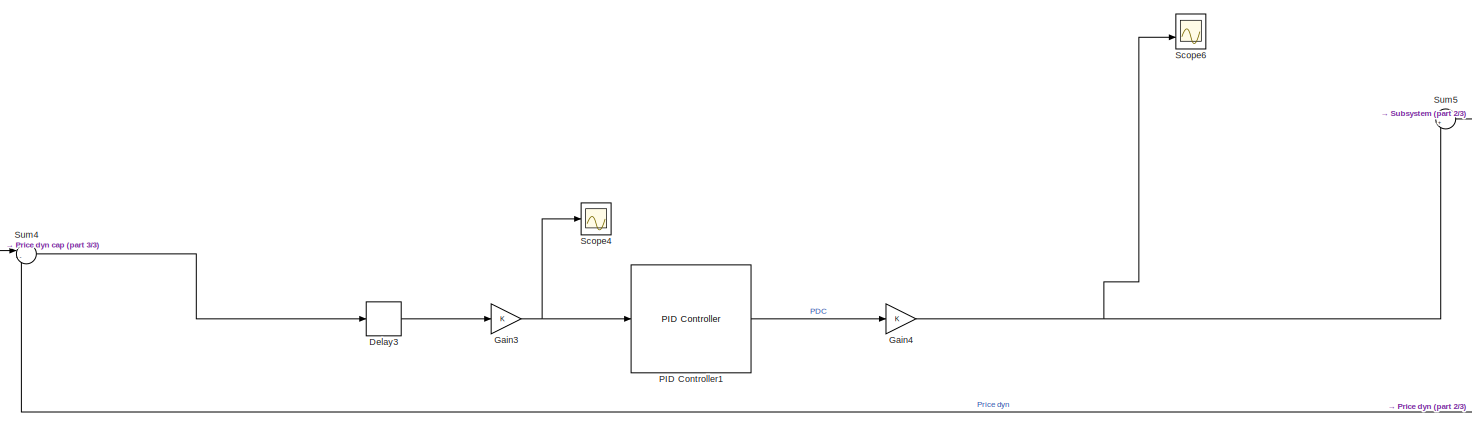
[diagram: root canvas - part 1/3, top left region]
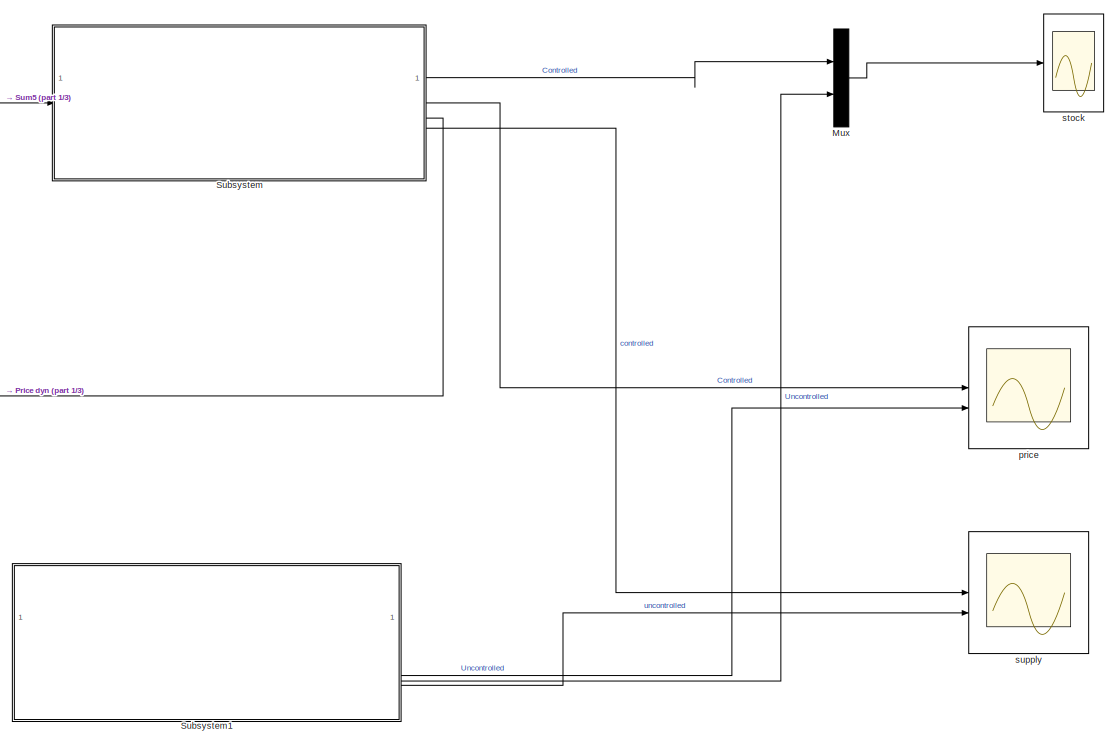
[diagram: root canvas - part 2/3, right side, full height]
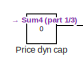
[diagram: root canvas - part 3/3, middle left region]
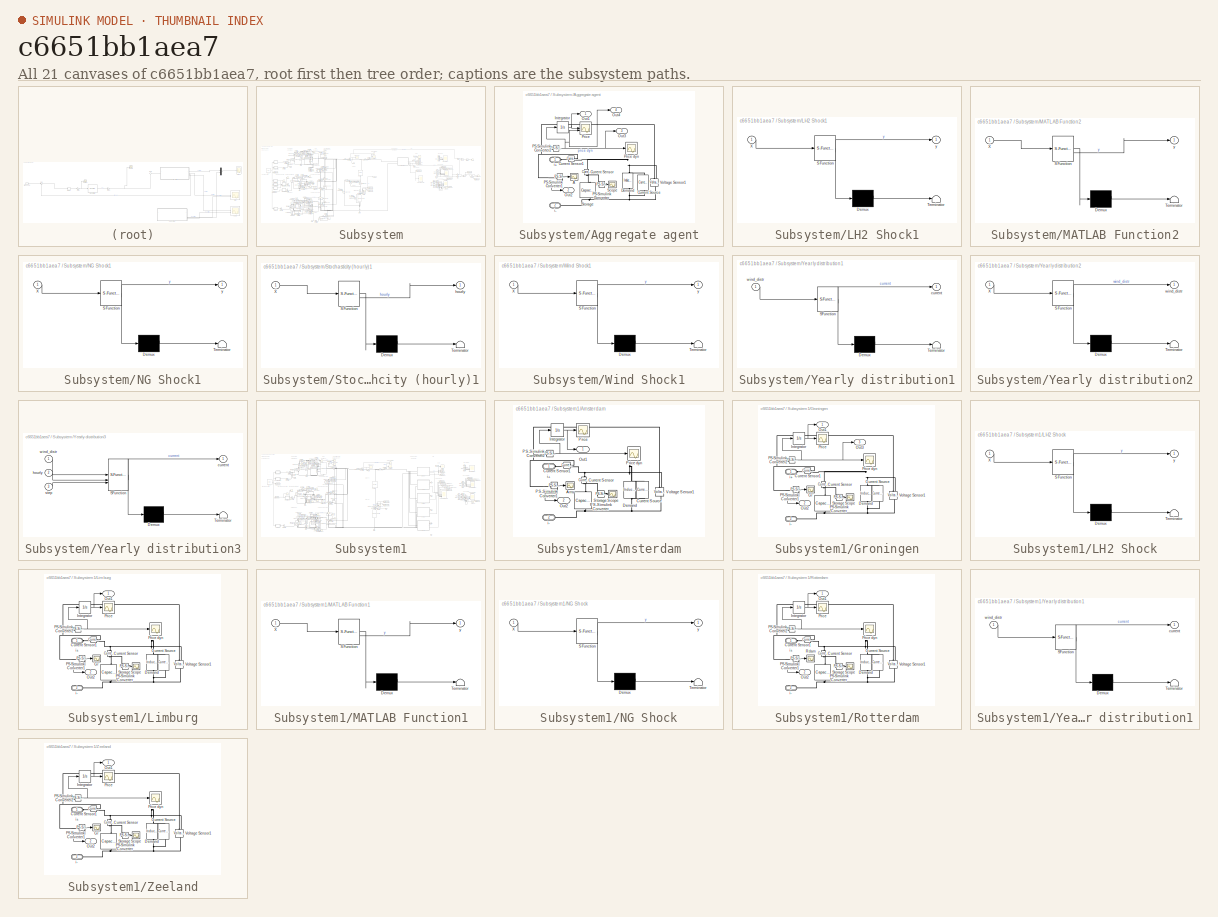
[diagram: thumbnail index - all 21 canvases of the model, root first then tree order]
MODEL slx_c6651bb1aea7
KIND model
CONFIG AbsTol = auto
CONFIG EnableMultiTasking = off
CONFIG FixedStep = 1/24
CONFIG MaxStep = auto
CONFIG MinStep = auto
CONFIG RelTol = 1e-3
CONFIG SampleTimeConstraint = Unconstrained
CONFIG SolverName = FixedStepAuto
CONFIG StartTime = 0.0
CONFIG StopTime = Z
BLOCK [Delay] Delay3
  DelayLength = 1
  InputPortMap = u0
BLOCK [Gain] Gain3
BLOCK [Gain] Gain4
BLOCK [Mux] Mux
  DisplayOption = bar
  Inputs = 2
BLOCK [Reference] PID Controller1  REF=slpidlib/PID Controller
  LibrarySourceBlock = simulink/Continuous/PID Controller
  SourceBlock = slpidlib/PID Controller
  SourceType = PID 1dof
BLOCK [Constant] Price dyn cap
  Value = 0
BLOCK [Scope] Scope4
  Floating = off
  NumInputPorts = 1
  ScopeSpecificationString = Simulink.scopes.TimeScopeBlockCfg('CurrentConfiguration', extmgr.ConfigurationSet(extmgr.Configuration('Core','General UI',true),extmgr.Configuration('Core','Source UI',true),extmgr.Configuration('Sources','WiredSimulink',true,'DataLoggingVariableName','ScopeData2'),extmgr.Configuration('Visuals','Time Domain',true,'SerializedDisplays',{struct('MinYLimReal','-0.0029','MaxYLimReal','0.00978','YLabe...<+1419ch>
BLOCK [Scope] Scope6
  Floating = off
  NumInputPorts = 2
  ScopeSpecificationString = Simulink.scopes.TimeScopeBlockCfg('CurrentConfiguration', extmgr.ConfigurationSet(extmgr.Configuration('Core','General UI',true),extmgr.Configuration('Core','Source UI',true),extmgr.Configuration('Sources','WiredSimulink',true,'DataLoggingVariableName','ScopeData8'),extmgr.Configuration('Visuals','Time Domain',true,'SerializedDisplays',{struct('MinYLimReal','-0.15723','MaxYLimReal','0.41342','YLab...<+1513ch>
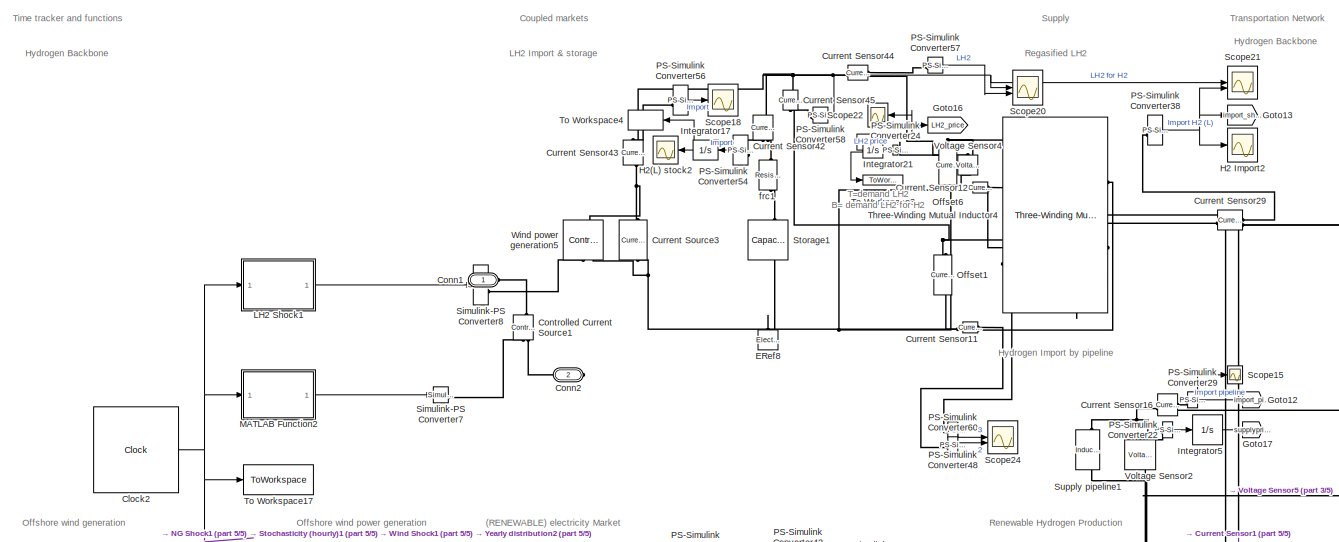
[diagram: Subsystem - part 1/5, top left region]
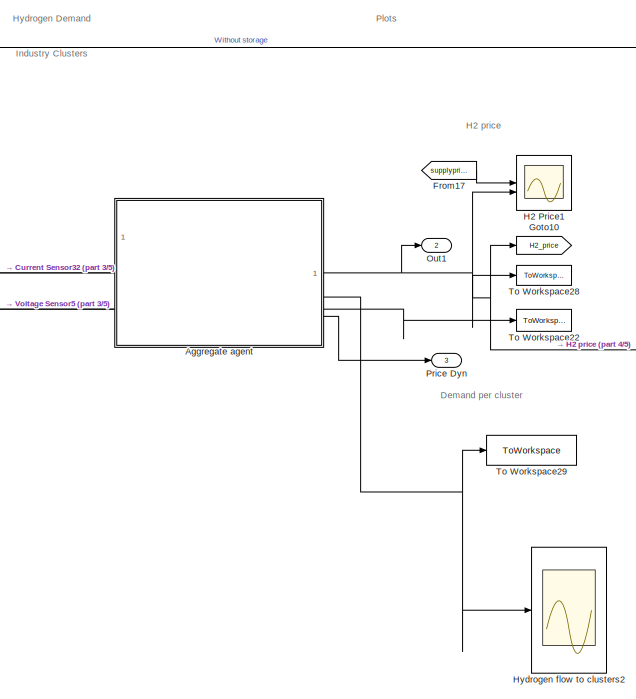
[diagram: Subsystem - part 2/5, top right region]
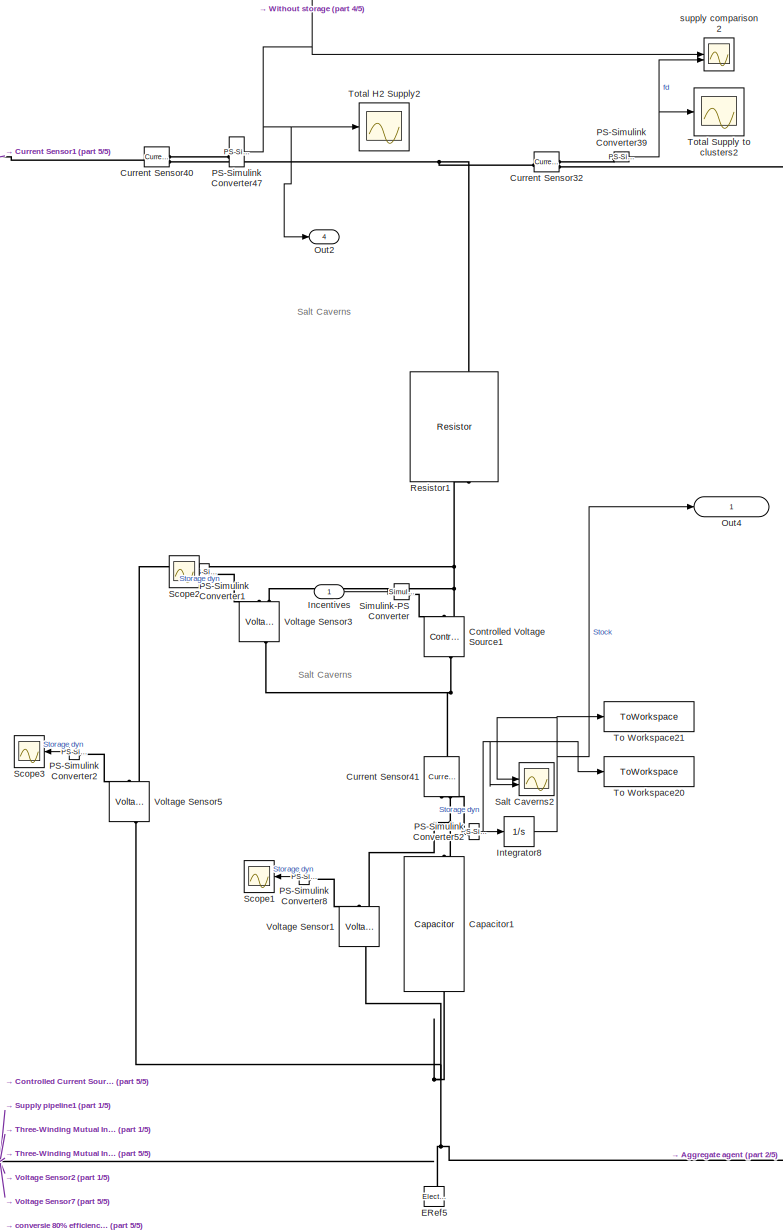
[diagram: Subsystem - part 3/5, center side, full height]
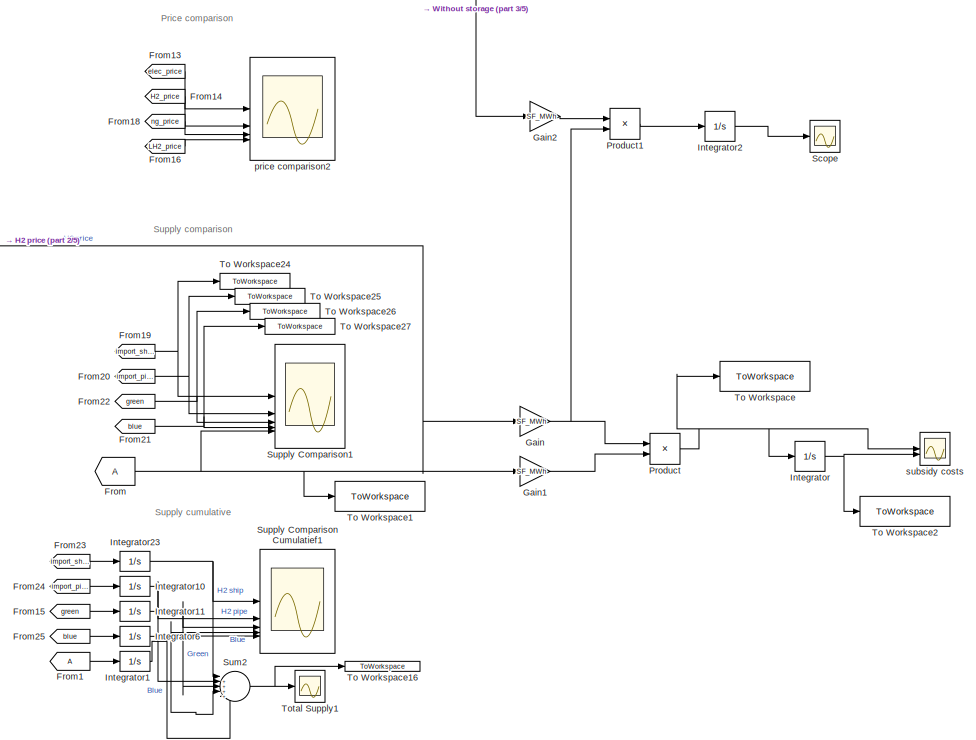
[diagram: Subsystem - part 4/5, top right region]
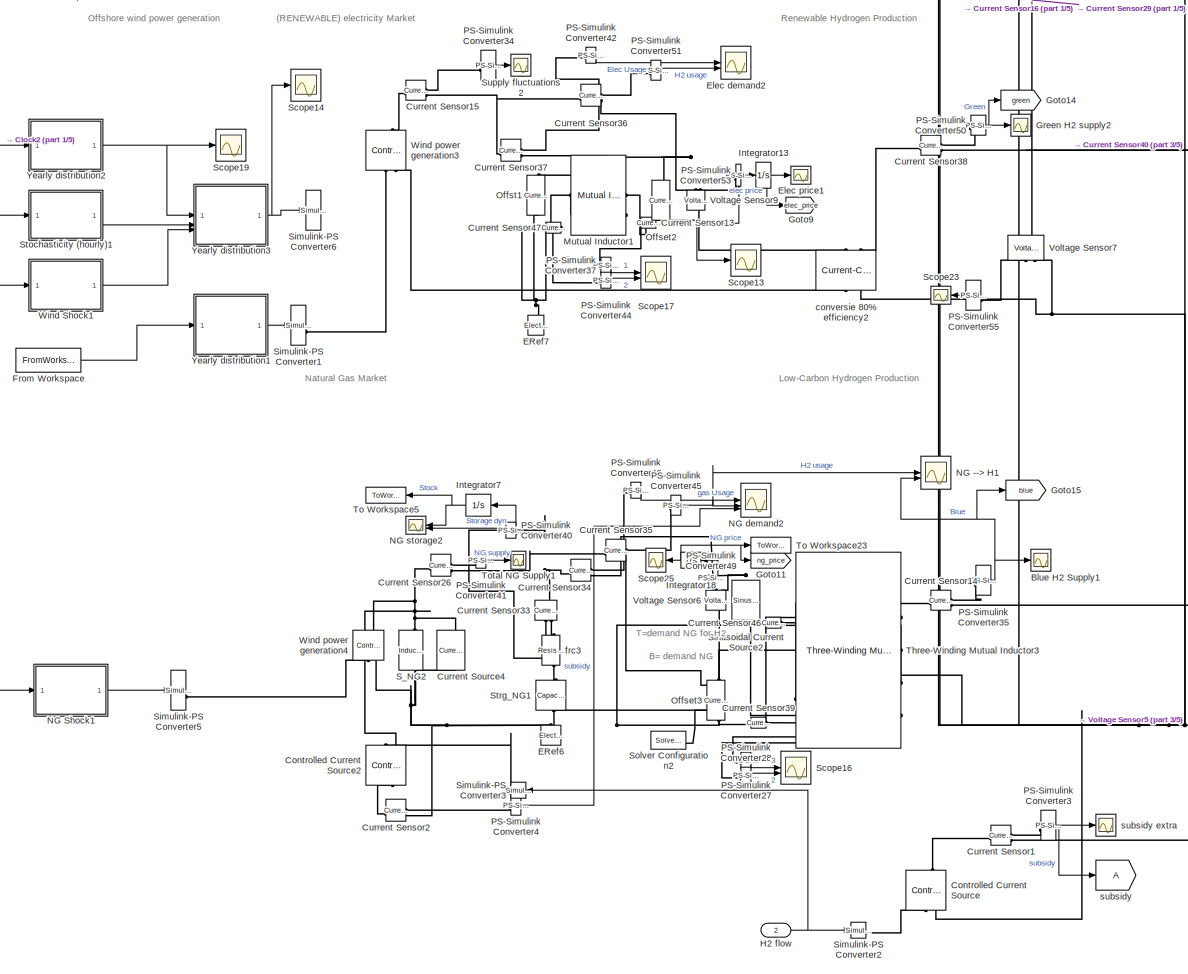
[diagram: Subsystem - part 5/5, bottom left region]
BLOCK [SubSystem] Subsystem
BLOCK [SubSystem] Subsystem/Aggregate agent
BLOCK [Scope] Subsystem/Aggregate agent/A
  Floating = off
  NumInputPorts = 1
  ScopeSpecificationString = Simulink.scopes.TimeScopeBlockCfg('CurrentConfiguration', extmgr.ConfigurationSet(extmgr.Configuration('Core','General UI',true),extmgr.Configuration('Core','Source UI',true),extmgr.Configuration('Sources','WiredSimulink',true,'DataLoggingVariableName','ScopeData39'),extmgr.Configuration('Visuals','Time Domain',true,'SerializedDisplays',{struct('MinYLimReal','0.04933','MaxYLimReal','0.56994','YLab...<+1424ch>
BLOCK [Reference] Subsystem/Aggregate agent/Current Sensor  REF=fl_lib/Electrical/Electrical Sensors/Current Sensor
  NameLocation = left
  SourceBlock = fl_lib/Electrical/Electrical Sensors/Current Sensor
  SourceType = Current Sensor
BLOCK [Reference] Subsystem/Aggregate agent/Current Sensor1  REF=fl_lib/Electrical/Electrical Sensors/Current Sensor
  SourceBlock = fl_lib/Electrical/Electrical Sensors/Current Sensor
  SourceType = Current Sensor
BLOCK [Reference] Subsystem/Aggregate agent/Current Source  REF=ee_lib/Sources/Current Source
  NameLocation = right
  SourceBlock = ee_lib/Sources/Current Source
  SourceType = Current Source
BLOCK [Reference] Subsystem/Aggregate agent/Demand  REF=ee_lib/Passive/Inductor
  NameLocation = left
  SourceBlock = ee_lib/Passive/Inductor
  SourceType = Inductor
BLOCK [Integrator] Subsystem/Aggregate agent/Integrator
BLOCK [Outport] Subsystem/Aggregate agent/Out1
BLOCK [Outport] Subsystem/Aggregate agent/Out2
  Port = 2
BLOCK [Outport] Subsystem/Aggregate agent/Out3
  Port = 3
BLOCK [Outport] Subsystem/Aggregate agent/Out4
  Port = 4
BLOCK [Reference] Subsystem/Aggregate agent/PS-Simulink Converter  REF=nesl_utility/PS-Simulink
Converter
  SourceBlock = nesl_utility/PS-Simulink\nConverter
  SourceType = PS-Simulink\nConverter
BLOCK [Reference] Subsystem/Aggregate agent/PS-Simulink Converter1  REF=nesl_utility/PS-Simulink
Converter
  SourceBlock = nesl_utility/PS-Simulink\nConverter
  SourceType = PS-Simulink\nConverter
BLOCK [Reference] Subsystem/Aggregate agent/PS-Simulink Converter2  REF=nesl_utility/PS-Simulink
Converter
  SourceBlock = nesl_utility/PS-Simulink\nConverter
  SourceType = PS-Simulink\nConverter
BLOCK [Scope] Subsystem/Aggregate agent/Price 
  Floating = off
  NumInputPorts = 2
  ScopeSpecificationString = Simulink.scopes.TimeScopeBlockCfg('CurrentConfiguration', extmgr.ConfigurationSet(extmgr.Configuration('Core','General UI',true),extmgr.Configuration('Core','Source UI',true),extmgr.Configuration('Sources','WiredSimulink',true,'DataLoggingVariableName','ScopeData1'),extmgr.Configuration('Visuals','Time Domain',true,'SerializedDisplays',{struct('MinYLimReal','-0.00355','MaxYLimReal','0.00424','YLab...<+1438ch>
BLOCK [Scope] Subsystem/Aggregate agent/Price dyn
  Floating = off
  NumInputPorts = 1
  ScopeSpecificationString = Simulink.scopes.TimeScopeBlockCfg('CurrentConfiguration', extmgr.ConfigurationSet(extmgr.Configuration('Core','General UI',true),extmgr.Configuration('Core','Source UI',true),extmgr.Configuration('Sources','WiredSimulink',true,'DataLoggingVariableName','ScopeData4'),extmgr.Configuration('Visuals','Time Domain',true,'SerializedDisplays',{struct('MinYLimReal','-0.02959','MaxYLimReal','0.04236','YLab...<+1410ch>
BLOCK [Scope] Subsystem/Aggregate agent/Scope
  Floating = off
  NumInputPorts = 1
  ScopeSpecificationString = Simulink.scopes.TimeScopeBlockCfg('CurrentConfiguration', extmgr.ConfigurationSet(extmgr.Configuration('Core','General UI',true),extmgr.Configuration('Core','Source UI',true),extmgr.Configuration('Sources','WiredSimulink',true),extmgr.Configuration('Visuals','Time Domain',true,'SerializedDisplays',{struct('MinYLimReal','-0.00086','MaxYLimReal','0.00089','YLabelReal','','MinYLimMag','0.00000','MaxY...<+1413ch>
BLOCK [Reference] Subsystem/Aggregate agent/Storage  REF=fl_lib/Electrical/Electrical Elements/Capacitor
  NameLocation = right
  SourceBlock = fl_lib/Electrical/Electrical Elements/Capacitor
  SourceType = Capacitor
BLOCK [Reference] Subsystem/Aggregate agent/Voltage Sensor1  REF=fl_lib/Electrical/Electrical Sensors/Voltage Sensor
  NameLocation = right
  SourceBlock = fl_lib/Electrical/Electrical Sensors/Voltage Sensor
  SourceType = Voltage Sensor
BLOCK [PMIOPort] Subsystem/Aggregate agent/i+ 
  Side = Left
  Tag = PMCPort
BLOCK [PMIOPort] Subsystem/Aggregate agent/i-
  Port = 2
  Side = Left
  Tag = PMCPort
BLOCK [Scope] Subsystem/Blue H2 Supply1
  Floating = off
  NumInputPorts = 1
  ScopeSpecificationString = Simulink.scopes.TimeScopeBlockCfg('CurrentConfiguration', extmgr.ConfigurationSet(extmgr.Configuration('Core','General UI',true),extmgr.Configuration('Core','Source UI',true),extmgr.Configuration('Sources','WiredSimulink',true,'DataLoggingVariableName','ScopeData3'),extmgr.Configuration('Visuals','Time Domain',true,'SerializedDisplays',{struct('MinYLimReal','-0.07535','MaxYLimReal','0.18841','YLab...<+1398ch>
BLOCK [Reference] Subsystem/Capacitor1  REF=fl_lib/Electrical/Electrical Elements/Capacitor
  NameLocation = right
  SourceBlock = fl_lib/Electrical/Electrical Elements/Capacitor
  SourceType = Capacitor
BLOCK [Clock] Subsystem/Clock2
  Decimation = 24
  DisplayTime = on
BLOCK [PMIOPort] Subsystem/Conn1
  Side = Left
BLOCK [PMIOPort] Subsystem/Conn2
  Port = 2
  Side = Right
BLOCK [Reference] Subsystem/Controlled Current Source  REF=fl_lib/Electrical/Electrical Sources/Controlled Current
Source
  NameLocation = right
  SourceBlock = fl_lib/Electrical/Electrical Sources/Controlled Current\nSource
  SourceType = Controlled Current\nSource
BLOCK [Reference] Subsystem/Controlled Current Source1  REF=fl_lib/Electrical/Electrical Sources/Controlled Current
Source
  Commented = on
  NameLocation = right
  SourceBlock = fl_lib/Electrical/Electrical Sources/Controlled Current\nSource
  SourceType = Controlled Current\nSource
BLOCK [Reference] Subsystem/Controlled Current Source2  REF=fl_lib/Electrical/Electrical Sources/Controlled Current
Source
  NameLocation = right
  SourceBlock = fl_lib/Electrical/Electrical Sources/Controlled Current\nSource
  SourceType = Controlled Current\nSource
BLOCK [Reference] Subsystem/Controlled Voltage Source1  REF=fl_lib/Electrical/Electrical Sources/Controlled Voltage
Source
  NameLocation = right
  SourceBlock = fl_lib/Electrical/Electrical Sources/Controlled Voltage\nSource
  SourceType = Controlled Voltage\nSource
BLOCK [Reference] Subsystem/Current Sensor1  REF=fl_lib/Electrical/Electrical Sensors/Current Sensor
  SourceBlock = fl_lib/Electrical/Electrical Sensors/Current Sensor
  SourceType = Current Sensor
BLOCK [Reference] Subsystem/Current Sensor11  REF=fl_lib/Electrical/Electrical Sensors/Current Sensor
  SourceBlock = fl_lib/Electrical/Electrical Sensors/Current Sensor
  SourceType = Current Sensor
BLOCK [Reference] Subsystem/Current Sensor12  REF=fl_lib/Electrical/Electrical Sensors/Current Sensor
  SourceBlock = fl_lib/Electrical/Electrical Sensors/Current Sensor
  SourceType = Current Sensor
BLOCK [Reference] Subsystem/Current Sensor13  REF=fl_lib/Electrical/Electrical Sensors/Current Sensor
  SourceBlock = fl_lib/Electrical/Electrical Sensors/Current Sensor
  SourceType = Current Sensor
BLOCK [Reference] Subsystem/Current Sensor14  REF=fl_lib/Electrical/Electrical Sensors/Current Sensor
  SourceBlock = fl_lib/Electrical/Electrical Sensors/Current Sensor
  SourceType = Current Sensor
BLOCK [Reference] Subsystem/Current Sensor15  REF=fl_lib/Electrical/Electrical Sensors/Current Sensor
  SourceBlock = fl_lib/Electrical/Electrical Sensors/Current Sensor
  SourceType = Current Sensor
BLOCK [Reference] Subsystem/Current Sensor16  REF=fl_lib/Electrical/Electrical Sensors/Current Sensor
  SourceBlock = fl_lib/Electrical/Electrical Sensors/Current Sensor
  SourceType = Current Sensor
BLOCK [Reference] Subsystem/Current Sensor2  REF=fl_lib/Electrical/Electrical Sensors/Current Sensor
  SourceBlock = fl_lib/Electrical/Electrical Sensors/Current Sensor
  SourceType = Current Sensor
BLOCK [Reference] Subsystem/Current Sensor26  REF=fl_lib/Electrical/Electrical Sensors/Current Sensor
  SourceBlock = fl_lib/Electrical/Electrical Sensors/Current Sensor
  SourceType = Current Sensor
BLOCK [Reference] Subsystem/Current Sensor29  REF=fl_lib/Electrical/Electrical Sensors/Current Sensor
  SourceBlock = fl_lib/Electrical/Electrical Sensors/Current Sensor
  SourceType = Current Sensor
BLOCK [Reference] Subsystem/Current Sensor32  REF=fl_lib/Electrical/Electrical Sensors/Current Sensor
  SourceBlock = fl_lib/Electrical/Electrical Sensors/Current Sensor
  SourceType = Current Sensor
BLOCK [Reference] Subsystem/Current Sensor33  REF=fl_lib/Electrical/Electrical Sensors/Current Sensor
  NameLocation = left
  SourceBlock = fl_lib/Electrical/Electrical Sensors/Current Sensor
  SourceType = Current Sensor
BLOCK [Reference] Subsystem/Current Sensor34  REF=fl_lib/Electrical/Electrical Sensors/Current Sensor
  SourceBlock = fl_lib/Electrical/Electrical Sensors/Current Sensor
  SourceType = Current Sensor
BLOCK [Reference] Subsystem/Current Sensor35  REF=fl_lib/Electrical/Electrical Sensors/Current Sensor
  SourceBlock = fl_lib/Electrical/Electrical Sensors/Current Sensor
  SourceType = Current Sensor
BLOCK [Reference] Subsystem/Current Sensor36  REF=fl_lib/Electrical/Electrical Sensors/Current Sensor
  SourceBlock = fl_lib/Electrical/Electrical Sensors/Current Sensor
  SourceType = Current Sensor
BLOCK [Reference] Subsystem/Current Sensor37  REF=fl_lib/Electrical/Electrical Sensors/Current Sensor
  SourceBlock = fl_lib/Electrical/Electrical Sensors/Current Sensor
  SourceType = Current Sensor
BLOCK [Reference] Subsystem/Current Sensor38  REF=fl_lib/Electrical/Electrical Sensors/Current Sensor
  SourceBlock = fl_lib/Electrical/Electrical Sensors/Current Sensor
  SourceType = Current Sensor
BLOCK [Reference] Subsystem/Current Sensor39  REF=fl_lib/Electrical/Electrical Sensors/Current Sensor
  SourceBlock = fl_lib/Electrical/Electrical Sensors/Current Sensor
  SourceType = Current Sensor
BLOCK [Reference] Subsystem/Current Sensor40  REF=fl_lib/Electrical/Electrical Sensors/Current Sensor
  SourceBlock = fl_lib/Electrical/Electrical Sensors/Current Sensor
  SourceType = Current Sensor
BLOCK [Reference] Subsystem/Current Sensor41  REF=fl_lib/Electrical/Electrical Sensors/Current Sensor
  NameLocation = left
  SourceBlock = fl_lib/Electrical/Electrical Sensors/Current Sensor
  SourceType = Current Sensor
BLOCK [Reference] Subsystem/Current Sensor42  REF=fl_lib/Electrical/Electrical Sensors/Current Sensor
  NameLocation = right
  SourceBlock = fl_lib/Electrical/Electrical Sensors/Current Sensor
  SourceType = Current Sensor
BLOCK [Reference] Subsystem/Current Sensor43  REF=fl_lib/Electrical/Electrical Sensors/Current Sensor
  NameLocation = right
  SourceBlock = fl_lib/Electrical/Electrical Sensors/Current Sensor
  SourceType = Current Sensor
BLOCK [Reference] Subsystem/Current Sensor44  REF=fl_lib/Electrical/Electrical Sensors/Current Sensor
  SourceBlock = fl_lib/Electrical/Electrical Sensors/Current Sensor
  SourceType = Current Sensor
BLOCK [Reference] Subsystem/Current Sensor45  REF=fl_lib/Electrical/Electrical Sensors/Current Sensor
  NameLocation = left
  SourceBlock = fl_lib/Electrical/Electrical Sensors/Current Sensor
  SourceType = Current Sensor
BLOCK [Reference] Subsystem/Current Sensor46  REF=fl_lib/Electrical/Electrical Sensors/Current Sensor
  SourceBlock = fl_lib/Electrical/Electrical Sensors/Current Sensor
  SourceType = Current Sensor
BLOCK [Reference] Subsystem/Current Sensor47  REF=fl_lib/Electrical/Electrical Sensors/Current Sensor
  SourceBlock = fl_lib/Electrical/Electrical Sensors/Current Sensor
  SourceType = Current Sensor
BLOCK [Reference] Subsystem/Current Source3  REF=ee_lib/Sources/Current Source
  NameLocation = right
  SourceBlock = ee_lib/Sources/Current Source
  SourceType = Current Source
BLOCK [Reference] Subsystem/Current Source4  REF=ee_lib/Sources/Current Source
  NameLocation = right
  SourceBlock = ee_lib/Sources/Current Source
  SourceType = Current Source
BLOCK [Reference] Subsystem/ERef5  REF=fl_lib/Electrical/Electrical Elements/Electrical Reference
  NameLocation = left
  SourceBlock = fl_lib/Electrical/Electrical Elements/Electrical Reference
  SourceType = Electrical Reference
BLOCK [Reference] Subsystem/ERef6  REF=fl_lib/Electrical/Electrical Elements/Electrical Reference
  NameLocation = left
  SourceBlock = fl_lib/Electrical/Electrical Elements/Electrical Reference
  SourceType = Electrical Reference
BLOCK [Reference] Subsystem/ERef7  REF=fl_lib/Electrical/Electrical Elements/Electrical Reference
  NameLocation = left
  SourceBlock = fl_lib/Electrical/Electrical Elements/Electrical Reference
  SourceType = Electrical Reference
BLOCK [Reference] Subsystem/ERef8  REF=fl_lib/Electrical/Electrical Elements/Electrical Reference
  NameLocation = left
  SourceBlock = fl_lib/Electrical/Electrical Elements/Electrical Reference
  SourceType = Electrical Reference
BLOCK [Scope] Subsystem/Elec demand2
  Floating = off
  NumInputPorts = 2
  ScopeSpecificationString = Simulink.scopes.TimeScopeBlockCfg('CurrentConfiguration', extmgr.ConfigurationSet(extmgr.Configuration('Core','General UI',true),extmgr.Configuration('Core','Source UI',true),extmgr.Configuration('Sources','WiredSimulink',true,'DataLoggingVariableName','ScopeData1'),extmgr.Configuration('Visuals','Time Domain',true,'SerializedDisplays',{struct('MinYLimReal','-0.09912','MaxYLimReal','0.27902','YLab...<+1501ch>
BLOCK [Scope] Subsystem/Elec price1
  Floating = off
  NameLocation = right
  NumInputPorts = 1
  ScopeSpecificationString = Simulink.scopes.TimeScopeBlockCfg('CurrentConfiguration', extmgr.ConfigurationSet(extmgr.Configuration('Core','General UI',true),extmgr.Configuration('Core','Source UI',true),extmgr.Configuration('Sources','WiredSimulink',true,'DataLoggingVariableName','ScopeData2'),extmgr.Configuration('Visuals','Time Domain',true,'SerializedDisplays',{struct('MinYLimReal','-0.05691','MaxYLimReal','0.07674','YLab...<+1490ch>
BLOCK [From] Subsystem/From
BLOCK [FromWorkspace] Subsystem/From Workspace
  OutDataTypeStr = double
  VariableName = Wind_Distr_2019_input
BLOCK [From] Subsystem/From1
BLOCK [From] Subsystem/From13
  GotoTag = elec_price
BLOCK [From] Subsystem/From14
  GotoTag = H2_price
BLOCK [From] Subsystem/From15
  GotoTag = green
BLOCK [From] Subsystem/From16
  GotoTag = LH2_price
BLOCK [From] Subsystem/From17
  GotoTag = supplyprice
BLOCK [From] Subsystem/From18
  GotoTag = ng_price
BLOCK [From] Subsystem/From19
  GotoTag = import_ship
BLOCK [From] Subsystem/From20
  GotoTag = import_pipe
BLOCK [From] Subsystem/From21
  GotoTag = blue
BLOCK [From] Subsystem/From22
  GotoTag = green
BLOCK [From] Subsystem/From23
  GotoTag = import_ship
BLOCK [From] Subsystem/From24
  GotoTag = import_pipe
BLOCK [From] Subsystem/From25
  GotoTag = blue
BLOCK [Gain] Subsystem/Gain
  Gain = SF_MWh
BLOCK [Gain] Subsystem/Gain1
  Gain = SF_MWh
BLOCK [Gain] Subsystem/Gain2
  Gain = SF_MWh
BLOCK [Goto] Subsystem/Goto10
  GotoTag = H2_price
BLOCK [Goto] Subsystem/Goto11
  GotoTag = ng_price
BLOCK [Goto] Subsystem/Goto12
  GotoTag = import_pipe
BLOCK [Goto] Subsystem/Goto13
  GotoTag = import_ship
BLOCK [Goto] Subsystem/Goto14
  GotoTag = green
BLOCK [Goto] Subsystem/Goto15
  GotoTag = blue
BLOCK [Goto] Subsystem/Goto16
  GotoTag = LH2_price
BLOCK [Goto] Subsystem/Goto17
  GotoTag = supplyprice
BLOCK [Goto] Subsystem/Goto9
  GotoTag = elec_price
BLOCK [Scope] Subsystem/Green H2 supply2
  Floating = off
  NumInputPorts = 1
  ScopeSpecificationString = Simulink.scopes.TimeScopeBlockCfg('CurrentConfiguration', extmgr.ConfigurationSet(extmgr.Configuration('Core','General UI',true),extmgr.Configuration('Core','Source UI',true),extmgr.Configuration('Sources','WiredSimulink',true,'DataLoggingVariableName','ScopeData4'),extmgr.Configuration('Visuals','Time Domain',true,'SerializedDisplays',{struct('MinYLimReal','-0.0315','MaxYLimReal','0.40721','YLabe...<+1440ch>
BLOCK [Scope] Subsystem/H2 Import2
  Floating = off
  NumInputPorts = 1
  ScopeSpecificationString = Simulink.scopes.TimeScopeBlockCfg('CurrentConfiguration', extmgr.ConfigurationSet(extmgr.Configuration('Core','General UI',true),extmgr.Configuration('Core','Source UI',true),extmgr.Configuration('Sources','WiredSimulink',true,'DataLoggingVariableName','ScopeData5'),extmgr.Configuration('Visuals','Time Domain',true,'SerializedDisplays',{struct('MinYLimReal','-0.31584','MaxYLimReal','0.40104','YLab...<+1447ch>
BLOCK [Scope] Subsystem/H2 Price1
  Floating = off
  NumInputPorts = 2
  ScopeSpecificationString = Simulink.scopes.TimeScopeBlockCfg('CurrentConfiguration', extmgr.ConfigurationSet(extmgr.Configuration('Core','General UI',true),extmgr.Configuration('Core','Source UI',true),extmgr.Configuration('Sources','WiredSimulink',true,'DataLoggingVariableName','ScopeData6'),extmgr.Configuration('Visuals','Time Domain',true,'SerializedDisplays',{struct('MinYLimReal','-0.00095','MaxYLimReal','0.00853','YLab...<+1459ch>
BLOCK [Inport] Subsystem/H2 flow
  IconDisplay = Port number and signal name
  Port = 2
BLOCK [Scope] Subsystem/H2(L) stock2
  Floating = off
  NumInputPorts = 1
  ScopeSpecificationString = Simulink.scopes.TimeScopeBlockCfg('CurrentConfiguration', extmgr.ConfigurationSet(extmgr.Configuration('Core','General UI',true),extmgr.Configuration('Core','Source UI',true),extmgr.Configuration('Sources','WiredSimulink',true,'DataLoggingVariableName','ScopeData7'),extmgr.Configuration('Visuals','Time Domain',true,'SerializedDisplays',{struct('MinYLimReal','-0.04116','MaxYLimReal','0.00457','YLab...<+1444ch>
BLOCK [Scope] Subsystem/Hydrogen flow to clusters2
  Floating = off
  NumInputPorts = 1
  ScopeSpecificationString = Simulink.scopes.TimeScopeBlockCfg('CurrentConfiguration', extmgr.ConfigurationSet(extmgr.Configuration('Core','General UI',true),extmgr.Configuration('Core','Source UI',true),extmgr.Configuration('Sources','WiredSimulink',true,'DataLoggingVariableName','ScopeData8'),extmgr.Configuration('Visuals','Time Domain',true,'SerializedDisplays',{struct('MinYLimReal','0.05126','MaxYLimReal','0.5526','YLabel...<+1583ch>
BLOCK [Inport] Subsystem/Incentives
BLOCK [Integrator] Subsystem/Integrator
BLOCK [Integrator] Subsystem/Integrator1
BLOCK [Integrator] Subsystem/Integrator10
BLOCK [Integrator] Subsystem/Integrator11
BLOCK [Integrator] Subsystem/Integrator13
BLOCK [Integrator] Subsystem/Integrator17
BLOCK [Integrator] Subsystem/Integrator18
BLOCK [Integrator] Subsystem/Integrator2
BLOCK [Integrator] Subsystem/Integrator21
BLOCK [Integrator] Subsystem/Integrator23
BLOCK [Integrator] Subsystem/Integrator5
BLOCK [Integrator] Subsystem/Integrator6
BLOCK [Integrator] Subsystem/Integrator7
BLOCK [Integrator] Subsystem/Integrator8
BLOCK [SubSystem] Subsystem/LH2 Shock1
  Commented = on
  ErrorFcn = Stateflow.Translate.translate
  LibrarySourceBlock = simulink/User-Defined\nFunctions/MATLAB Function
  PermitHierarchicalResolution = ExplicitOnly
  SFBlockType = MATLAB Function
  TreatAsAtomicUnit = on
BLOCK [Demux] Subsystem/LH2 Shock1/ Demux 
  Outputs = 1
BLOCK [S-Function] Subsystem/LH2 Shock1/ SFunction 
  EnableBusSupport = on
  FunctionName = sf_sfun
  PortCounts = [1 2]
  SFcnIsStateOwnerBlock = off
  SFunctionDeploymentMode = off
  Tag = Stateflow S-Function 8
BLOCK [Terminator] Subsystem/LH2 Shock1/ Terminator 
BLOCK [Inport] Subsystem/LH2 Shock1/X
BLOCK [Outport] Subsystem/LH2 Shock1/y
BLOCK [SubSystem] Subsystem/MATLAB Function2
  Commented = on
  ErrorFcn = Stateflow.Translate.translate
  LibrarySourceBlock = simulink/User-Defined\nFunctions/MATLAB Function
  PermitHierarchicalResolution = ExplicitOnly
  SFBlockType = MATLAB Function
  TreatAsAtomicUnit = on
BLOCK [Demux] Subsystem/MATLAB Function2/ Demux 
  Outputs = 1
BLOCK [S-Function] Subsystem/MATLAB Function2/ SFunction 
  EnableBusSupport = on
  FunctionName = sf_sfun
  PortCounts = [1 2]
  SFcnIsStateOwnerBlock = off
  SFunctionDeploymentMode = off
  Tag = Stateflow S-Function 9
BLOCK [Terminator] Subsystem/MATLAB Function2/ Terminator 
BLOCK [Inport] Subsystem/MATLAB Function2/X
BLOCK [Outport] Subsystem/MATLAB Function2/y
BLOCK [Reference] Subsystem/Mutual Inductor1  REF=fl_lib/Electrical/Electrical Elements/Mutual Inductor
  SourceBlock = fl_lib/Electrical/Electrical Elements/Mutual Inductor
  SourceType = Mutual Inductor
BLOCK [Scope] Subsystem/NG --> H1
  Floating = off
  NumInputPorts = 2
  ScopeSpecificationString = Simulink.scopes.TimeScopeBlockCfg('CurrentConfiguration', extmgr.ConfigurationSet(extmgr.Configuration('Core','General UI',true),extmgr.Configuration('Core','Source UI',true),extmgr.Configuration('Sources','WiredSimulink',true,'DataLoggingVariableName','ScopeData9'),extmgr.Configuration('Visuals','Time Domain',true,'SerializedDisplays',{struct('MinYLimReal','-0.12802','MaxYLimReal','1.15218','YLab...<+1445ch>
BLOCK [SubSystem] Subsystem/NG Shock1
  Commented = on
  ErrorFcn = Stateflow.Translate.translate
  LibrarySourceBlock = simulink/User-Defined\nFunctions/MATLAB Function
  PermitHierarchicalResolution = ExplicitOnly
  SFBlockType = MATLAB Function
  TreatAsAtomicUnit = on
BLOCK [Demux] Subsystem/NG Shock1/ Demux 
  Outputs = 1
BLOCK [S-Function] Subsystem/NG Shock1/ SFunction 
  EnableBusSupport = on
  FunctionName = sf_sfun
  PortCounts = [1 2]
  SFcnIsStateOwnerBlock = off
  SFunctionDeploymentMode = off
  Tag = Stateflow S-Function 10
BLOCK [Terminator] Subsystem/NG Shock1/ Terminator 
BLOCK [Inport] Subsystem/NG Shock1/X
BLOCK [Outport] Subsystem/NG Shock1/y
BLOCK [Scope] Subsystem/NG demand2
  Floating = off
  NumInputPorts = 3
  ScopeSpecificationString = Simulink.scopes.TimeScopeBlockCfg('CurrentConfiguration', extmgr.ConfigurationSet(extmgr.Configuration('Core','General UI',true),extmgr.Configuration('Core','Source UI',true),extmgr.Configuration('Sources','WiredSimulink',true,'DataLoggingVariableName','ScopeData10'),extmgr.Configuration('Visuals','Time Domain',true,'SerializedDisplays',{struct('MinYLimReal','-0.18362','MaxYLimReal','0.18055','YLa...<+1469ch>
BLOCK [Scope] Subsystem/NG storage2
  Floating = off
  NumInputPorts = 2
  ScopeSpecificationString = Simulink.scopes.TimeScopeBlockCfg('CurrentConfiguration', extmgr.ConfigurationSet(extmgr.Configuration('Core','General UI',true),extmgr.Configuration('Core','Source UI',true),extmgr.Configuration('Sources','WiredSimulink',true,'DataLoggingVariableName','ScopeData11'),extmgr.Configuration('Visuals','Time Domain',true,'SerializedDisplays',{struct('MinYLimReal','-0.31509','MaxYLimReal','0.19488','YLa...<+1495ch>
BLOCK [Reference] Subsystem/Offset1  REF=ee_lib/Sources/Current Source
  NameLocation = right
  SourceBlock = ee_lib/Sources/Current Source
  SourceType = Current Source
BLOCK [Reference] Subsystem/Offset2  REF=ee_lib/Sources/Current Source
  NameLocation = right
  SourceBlock = ee_lib/Sources/Current Source
  SourceType = Current Source
BLOCK [Reference] Subsystem/Offset3  REF=ee_lib/Sources/Current Source
  NameLocation = right
  SourceBlock = ee_lib/Sources/Current Source
  SourceType = Current Source
BLOCK [Reference] Subsystem/Offset6  REF=ee_lib/Sources/Current Source
  NameLocation = right
  SourceBlock = ee_lib/Sources/Current Source
  SourceType = Current Source
BLOCK [Reference] Subsystem/Offst1  REF=ee_lib/Sources/Current Source
  NameLocation = right
  SourceBlock = ee_lib/Sources/Current Source
  SourceType = Current Source
BLOCK [Outport] Subsystem/Out1
  IconDisplay = Signal name
  Port = 2
BLOCK [Outport] Subsystem/Out2
  Port = 4
BLOCK [Outport] Subsystem/Out4
  IconDisplay = Signal name
BLOCK [Reference] Subsystem/PS-Simulink Converter1  REF=nesl_utility/PS-Simulink
Converter
  NameLocation = top
  SourceBlock = nesl_utility/PS-Simulink\nConverter
  SourceType = PS-Simulink\nConverter
BLOCK [Reference] Subsystem/PS-Simulink Converter2  REF=nesl_utility/PS-Simulink
Converter
  NameLocation = top
  SourceBlock = nesl_utility/PS-Simulink\nConverter
  SourceType = PS-Simulink\nConverter
BLOCK [Reference] Subsystem/PS-Simulink Converter22  REF=nesl_utility/PS-Simulink
Converter
  NameLocation = top
  SourceBlock = nesl_utility/PS-Simulink\nConverter
  SourceType = PS-Simulink\nConverter
BLOCK [Reference] Subsystem/PS-Simulink Converter24  REF=nesl_utility/PS-Simulink
Converter
  NameLocation = top
  SourceBlock = nesl_utility/PS-Simulink\nConverter
  SourceType = PS-Simulink\nConverter
BLOCK [Reference] Subsystem/PS-Simulink Converter27  REF=nesl_utility/PS-Simulink
Converter
  NameLocation = top
  SourceBlock = nesl_utility/PS-Simulink\nConverter
  SourceType = PS-Simulink\nConverter
BLOCK [Reference] Subsystem/PS-Simulink Converter28  REF=nesl_utility/PS-Simulink
Converter
  NameLocation = top
  SourceBlock = nesl_utility/PS-Simulink\nConverter
  SourceType = PS-Simulink\nConverter
BLOCK [Reference] Subsystem/PS-Simulink Converter29  REF=nesl_utility/PS-Simulink
Converter
  NameLocation = top
  SourceBlock = nesl_utility/PS-Simulink\nConverter
  SourceType = PS-Simulink\nConverter
BLOCK [Reference] Subsystem/PS-Simulink Converter3  REF=nesl_utility/PS-Simulink
Converter
  NameLocation = top
  SourceBlock = nesl_utility/PS-Simulink\nConverter
  SourceType = PS-Simulink\nConverter
BLOCK [Reference] Subsystem/PS-Simulink Converter34  REF=nesl_utility/PS-Simulink
Converter
  NameLocation = top
  SourceBlock = nesl_utility/PS-Simulink\nConverter
  SourceType = PS-Simulink\nConverter
BLOCK [Reference] Subsystem/PS-Simulink Converter35  REF=nesl_utility/PS-Simulink
Converter
  NameLocation = top
  SourceBlock = nesl_utility/PS-Simulink\nConverter
  SourceType = PS-Simulink\nConverter
BLOCK [Reference] Subsystem/PS-Simulink Converter37  REF=nesl_utility/PS-Simulink
Converter
  NameLocation = top
  SourceBlock = nesl_utility/PS-Simulink\nConverter
  SourceType = PS-Simulink\nConverter
BLOCK [Reference] Subsystem/PS-Simulink Converter38  REF=nesl_utility/PS-Simulink
Converter
  NameLocation = top
  SourceBlock = nesl_utility/PS-Simulink\nConverter
  SourceType = PS-Simulink\nConverter
BLOCK [Reference] Subsystem/PS-Simulink Converter39  REF=nesl_utility/PS-Simulink
Converter
  NameLocation = top
  SourceBlock = nesl_utility/PS-Simulink\nConverter
  SourceType = PS-Simulink\nConverter
BLOCK [Reference] Subsystem/PS-Simulink Converter4  REF=nesl_utility/PS-Simulink
Converter
  NameLocation = top
  SourceBlock = nesl_utility/PS-Simulink\nConverter
  SourceType = PS-Simulink\nConverter
BLOCK [Reference] Subsystem/PS-Simulink Converter40  REF=nesl_utility/PS-Simulink
Converter
  NameLocation = top
  SourceBlock = nesl_utility/PS-Simulink\nConverter
  SourceType = PS-Simulink\nConverter
BLOCK [Reference] Subsystem/PS-Simulink Converter41  REF=nesl_utility/PS-Simulink
Converter
  NameLocation = top
  SourceBlock = nesl_utility/PS-Simulink\nConverter
  SourceType = PS-Simulink\nConverter
BLOCK [Reference] Subsystem/PS-Simulink Converter42  REF=nesl_utility/PS-Simulink
Converter
  NameLocation = top
  SourceBlock = nesl_utility/PS-Simulink\nConverter
  SourceType = PS-Simulink\nConverter
BLOCK [Reference] Subsystem/PS-Simulink Converter44  REF=nesl_utility/PS-Simulink
Converter
  NameLocation = top
  SourceBlock = nesl_utility/PS-Simulink\nConverter
  SourceType = PS-Simulink\nConverter
BLOCK [Reference] Subsystem/PS-Simulink Converter45  REF=nesl_utility/PS-Simulink
Converter
  NameLocation = top
  SourceBlock = nesl_utility/PS-Simulink\nConverter
  SourceType = PS-Simulink\nConverter
BLOCK [Reference] Subsystem/PS-Simulink Converter46  REF=nesl_utility/PS-Simulink
Converter
  NameLocation = top
  SourceBlock = nesl_utility/PS-Simulink\nConverter
  SourceType = PS-Simulink\nConverter
BLOCK [Reference] Subsystem/PS-Simulink Converter47  REF=nesl_utility/PS-Simulink
Converter
  NameLocation = top
  SourceBlock = nesl_utility/PS-Simulink\nConverter
  SourceType = PS-Simulink\nConverter
BLOCK [Reference] Subsystem/PS-Simulink Converter48  REF=nesl_utility/PS-Simulink
Converter
  NameLocation = top
  SourceBlock = nesl_utility/PS-Simulink\nConverter
  SourceType = PS-Simulink\nConverter
BLOCK [Reference] Subsystem/PS-Simulink Converter49  REF=nesl_utility/PS-Simulink
Converter
  NameLocation = right
  SourceBlock = nesl_utility/PS-Simulink\nConverter
  SourceType = PS-Simulink\nConverter
BLOCK [Reference] Subsystem/PS-Simulink Converter50  REF=nesl_utility/PS-Simulink
Converter
  NameLocation = right
  SourceBlock = nesl_utility/PS-Simulink\nConverter
  SourceType = PS-Simulink\nConverter
BLOCK [Reference] Subsystem/PS-Simulink Converter51  REF=nesl_utility/PS-Simulink
Converter
  NameLocation = top
  SourceBlock = nesl_utility/PS-Simulink\nConverter
  SourceType = PS-Simulink\nConverter
BLOCK [Reference] Subsystem/PS-Simulink Converter52  REF=nesl_utility/PS-Simulink
Converter
  NameLocation = top
  SourceBlock = nesl_utility/PS-Simulink\nConverter
  SourceType = PS-Simulink\nConverter
BLOCK [Reference] Subsystem/PS-Simulink Converter53  REF=nesl_utility/PS-Simulink
Converter
  NameLocation = top
  SourceBlock = nesl_utility/PS-Simulink\nConverter
  SourceType = PS-Simulink\nConverter
BLOCK [Reference] Subsystem/PS-Simulink Converter54  REF=nesl_utility/PS-Simulink
Converter
  NameLocation = top
  SourceBlock = nesl_utility/PS-Simulink\nConverter
  SourceType = PS-Simulink\nConverter
BLOCK [Reference] Subsystem/PS-Simulink Converter55  REF=nesl_utility/PS-Simulink
Converter
  NameLocation = top
  SourceBlock = nesl_utility/PS-Simulink\nConverter
  SourceType = PS-Simulink\nConverter
BLOCK [Reference] Subsystem/PS-Simulink Converter56  REF=nesl_utility/PS-Simulink
Converter
  NameLocation = top
  SourceBlock = nesl_utility/PS-Simulink\nConverter
  SourceType = PS-Simulink\nConverter
BLOCK [Reference] Subsystem/PS-Simulink Converter57  REF=nesl_utility/PS-Simulink
Converter
  SourceBlock = nesl_utility/PS-Simulink\nConverter
  SourceType = PS-Simulink\nConverter
BLOCK [Reference] Subsystem/PS-Simulink Converter58  REF=nesl_utility/PS-Simulink
Converter
  SourceBlock = nesl_utility/PS-Simulink\nConverter
  SourceType = PS-Simulink\nConverter
BLOCK [Reference] Subsystem/PS-Simulink Converter60  REF=nesl_utility/PS-Simulink
Converter
  NameLocation = top
  SourceBlock = nesl_utility/PS-Simulink\nConverter
  SourceType = PS-Simulink\nConverter
BLOCK [Reference] Subsystem/PS-Simulink Converter8  REF=nesl_utility/PS-Simulink
Converter
  NameLocation = top
  SourceBlock = nesl_utility/PS-Simulink\nConverter
  SourceType = PS-Simulink\nConverter
BLOCK [Outport] Subsystem/Price Dyn
  Port = 3
BLOCK [Product] Subsystem/Product
BLOCK [Product] Subsystem/Product1
BLOCK [Reference] Subsystem/Resistor1  REF=fl_lib/Electrical/Electrical Elements/Resistor
  NameLocation = right
  SourceBlock = fl_lib/Electrical/Electrical Elements/Resistor
  SourceType = Resistor
BLOCK [Reference] Subsystem/S_NG2  REF=ee_lib/Passive/Inductor
  NameLocation = right
  SourceBlock = ee_lib/Passive/Inductor
  SourceType = Inductor
BLOCK [Scope] Subsystem/Salt Caverns2
  Floating = off
  NumInputPorts = 2
  ScopeSpecificationString = Simulink.scopes.TimeScopeBlockCfg('CurrentConfiguration', extmgr.ConfigurationSet(extmgr.Configuration('Core','General UI',true),extmgr.Configuration('Core','Source UI',true),extmgr.Configuration('Sources','WiredSimulink',true,'DataLoggingVariableName','ScopeData12'),extmgr.Configuration('Visuals','Time Domain',true,'SerializedDisplays',{struct('MinYLimReal','-0.56782','MaxYLimReal','0.17151','YLa...<+1500ch>
BLOCK [Scope] Subsystem/Scope
  Floating = off
  NumInputPorts = 1
  ScopeSpecificationString = Simulink.scopes.TimeScopeBlockCfg('CurrentConfiguration', extmgr.ConfigurationSet(extmgr.Configuration('Core','General UI',true),extmgr.Configuration('Core','Source UI',true),extmgr.Configuration('Sources','WiredSimulink',true,'DataLoggingVariableName','ScopeData36'),extmgr.Configuration('Visuals','Time Domain',true,'SerializedDisplays',{struct('MinYLimReal','276909193.90031','MaxYLimReal','276909...<+1486ch>
BLOCK [Scope] Subsystem/Scope1
  Floating = off
  NumInputPorts = 1
  ScopeSpecificationString = Simulink.scopes.TimeScopeBlockCfg('CurrentConfiguration', extmgr.ConfigurationSet(extmgr.Configuration('Core','General UI',true),extmgr.Configuration('Core','Source UI',true),extmgr.Configuration('Sources','WiredSimulink',true,'DataLoggingVariableName','ScopeData6'),extmgr.Configuration('Visuals','Time Domain',true,'SerializedDisplays',{struct('MinYLimReal','-0.00051','MaxYLimReal','0.00458','YLab...<+1428ch>
BLOCK [Scope] Subsystem/Scope13
  Floating = off
  NumInputPorts = 1
  ScopeSpecificationString = Simulink.scopes.TimeScopeBlockCfg('CurrentConfiguration', extmgr.ConfigurationSet(extmgr.Configuration('Core','General UI',true),extmgr.Configuration('Core','Source UI',true),extmgr.Configuration('Sources','WiredSimulink',true,'DataLoggingVariableName','ScopeData13'),extmgr.Configuration('Visuals','Time Domain',true,'SerializedDisplays',{struct('MinYLimReal','-0.08678','MaxYLimReal','0.05699','YLa...<+1408ch>
BLOCK [Scope] Subsystem/Scope14
  Floating = off
  NumInputPorts = 1
  ScopeSpecificationString = Simulink.scopes.TimeScopeBlockCfg('CurrentConfiguration', extmgr.ConfigurationSet(extmgr.Configuration('Core','General UI',true),extmgr.Configuration('Core','Source UI',true),extmgr.Configuration('Sources','WiredSimulink',true,'DataLoggingVariableName','ScopeData14'),extmgr.Configuration('Visuals','Time Domain',true,'SerializedDisplays',{struct('MinYLimReal','0.03811','MaxYLimReal','0.19558','YLab...<+1403ch>
BLOCK [Scope] Subsystem/Scope15
  Floating = off
  NumInputPorts = 1
  ScopeSpecificationString = Simulink.scopes.TimeScopeBlockCfg('CurrentConfiguration', extmgr.ConfigurationSet(extmgr.Configuration('Core','General UI',true),extmgr.Configuration('Core','Source UI',true),extmgr.Configuration('Sources','WiredSimulink',true,'DataLoggingVariableName','ScopeData15'),extmgr.Configuration('Visuals','Time Domain',true,'SerializedDisplays',{struct('MinYLimReal','-0.01884','MaxYLimReal','0.16959','YLa...<+1375ch>
BLOCK [Scope] Subsystem/Scope16
  Floating = off
  NumInputPorts = 2
  ScopeSpecificationString = Simulink.scopes.TimeScopeBlockCfg('CurrentConfiguration', extmgr.ConfigurationSet(extmgr.Configuration('Core','General UI',true),extmgr.Configuration('Core','Source UI',true),extmgr.Configuration('Sources','WiredSimulink',true,'DataLoggingVariableName','ScopeData2'),extmgr.Configuration('Visuals','Time Domain',true,'SerializedDisplays',{struct('MinYLimReal','-0.28398','MaxYLimReal','0.07526','YLab...<+1466ch>
BLOCK [Scope] Subsystem/Scope17
  Floating = off
  NumInputPorts = 2
  ScopeSpecificationString = Simulink.scopes.TimeScopeBlockCfg('CurrentConfiguration', extmgr.ConfigurationSet(extmgr.Configuration('Core','General UI',true),extmgr.Configuration('Core','Source UI',true),extmgr.Configuration('Sources','WiredSimulink',true,'DataLoggingVariableName','ScopeData3'),extmgr.Configuration('Visuals','Time Domain',true,'SerializedDisplays',{struct('MinYLimReal','-0.0389','MaxYLimReal','0.13804','YLabe...<+1439ch>
BLOCK [Scope] Subsystem/Scope18
  Floating = off
  NumInputPorts = 1
  ScopeSpecificationString = Simulink.scopes.TimeScopeBlockCfg('CurrentConfiguration', extmgr.ConfigurationSet(extmgr.Configuration('Core','General UI',true),extmgr.Configuration('Core','Source UI',true),extmgr.Configuration('Sources','WiredSimulink',true,'DataLoggingVariableName','ScopeData16'),extmgr.Configuration('Visuals','Time Domain',true,'SerializedDisplays',{struct('MinYLimReal','-0.125','MaxYLimReal','1.12497','YLabe...<+1410ch>
BLOCK [Scope] Subsystem/Scope19
  Floating = off
  NumInputPorts = 1
  ScopeSpecificationString = Simulink.scopes.TimeScopeBlockCfg('CurrentConfiguration', extmgr.ConfigurationSet(extmgr.Configuration('Core','General UI',true),extmgr.Configuration('Core','Source UI',true),extmgr.Configuration('Sources','WiredSimulink',true,'DataLoggingVariableName','ScopeData17'),extmgr.Configuration('Visuals','Time Domain',true,'SerializedDisplays',{struct('MinYLimReal','7.15389','MaxYLimReal','13.0047','YLab...<+1456ch>
BLOCK [Scope] Subsystem/Scope2
  Floating = off
  NumInputPorts = 1
  ScopeSpecificationString = Simulink.scopes.TimeScopeBlockCfg('CurrentConfiguration', extmgr.ConfigurationSet(extmgr.Configuration('Core','General UI',true),extmgr.Configuration('Core','Source UI',true),extmgr.Configuration('Sources','WiredSimulink',true,'DataLoggingVariableName','ScopeData7'),extmgr.Configuration('Visuals','Time Domain',true,'SerializedDisplays',{struct('MinYLimReal','-0.01198','MaxYLimReal','0.00138','YLab...<+1395ch>
BLOCK [Scope] Subsystem/Scope20
  Floating = off
  NumInputPorts = 2
  ScopeSpecificationString = Simulink.scopes.TimeScopeBlockCfg('CurrentConfiguration', extmgr.ConfigurationSet(extmgr.Configuration('Core','General UI',true),extmgr.Configuration('Core','Source UI',true),extmgr.Configuration('Sources','WiredSimulink',true,'DataLoggingVariableName','ScopeData18'),extmgr.Configuration('Visuals','Time Domain',true,'SerializedDisplays',{struct('MinYLimReal','-0.10688','MaxYLimReal','1.01188','YLa...<+1492ch>
BLOCK [Scope] Subsystem/Scope21
  Floating = off
  NumInputPorts = 2
  ScopeSpecificationString = Simulink.scopes.TimeScopeBlockCfg('CurrentConfiguration', extmgr.ConfigurationSet(extmgr.Configuration('Core','General UI',true),extmgr.Configuration('Core','Source UI',true),extmgr.Configuration('Sources','WiredSimulink',true,'DataLoggingVariableName','ScopeData19'),extmgr.Configuration('Visuals','Time Domain',true,'SerializedDisplays',{struct('MinYLimReal','-0.03962','MaxYLimReal','0.08387','YLa...<+1502ch>
BLOCK [Scope] Subsystem/Scope22
  Floating = off
  NumInputPorts = 2
  ScopeSpecificationString = Simulink.scopes.TimeScopeBlockCfg('CurrentConfiguration', extmgr.ConfigurationSet(extmgr.Configuration('Core','General UI',true),extmgr.Configuration('Core','Source UI',true),extmgr.Configuration('Sources','WiredSimulink',true,'DataLoggingVariableName','ScopeData20'),extmgr.Configuration('Visuals','Time Domain',true,'SerializedDisplays',{struct('MinYLimReal','-0.00083','MaxYLimReal','0.00746','YLa...<+1506ch>
BLOCK [Scope] Subsystem/Scope23
  Floating = off
  NumInputPorts = 1
  ScopeSpecificationString = Simulink.scopes.TimeScopeBlockCfg('CurrentConfiguration', extmgr.ConfigurationSet(extmgr.Configuration('Core','General UI',true),extmgr.Configuration('Core','Source UI',true),extmgr.Configuration('Sources','WiredSimulink',true,'DataLoggingVariableName','ScopeData21'),extmgr.Configuration('Visuals','Time Domain',true,'SerializedDisplays',{struct('MinYLimReal','-0.00115','MaxYLimReal','0.0017','YLab...<+1456ch>
BLOCK [Scope] Subsystem/Scope24
  Floating = off
  NumInputPorts = 2
  ScopeSpecificationString = Simulink.scopes.TimeScopeBlockCfg('CurrentConfiguration', extmgr.ConfigurationSet(extmgr.Configuration('Core','General UI',true),extmgr.Configuration('Core','Source UI',true),extmgr.Configuration('Sources','WiredSimulink',true,'DataLoggingVariableName','ScopeData1'),extmgr.Configuration('Visuals','Time Domain',true,'SerializedDisplays',{struct('MinYLimReal','-0.075','MaxYLimReal','0.04675','YLabel...<+1432ch>
BLOCK [Scope] Subsystem/Scope25
  Floating = off
  NumInputPorts = 1
  ScopeSpecificationString = Simulink.scopes.TimeScopeBlockCfg('CurrentConfiguration', extmgr.ConfigurationSet(extmgr.Configuration('Core','General UI',true),extmgr.Configuration('Core','Source UI',true),extmgr.Configuration('Sources','WiredSimulink',true,'DataLoggingVariableName','ScopeData22'),extmgr.Configuration('Visuals','Time Domain',true,'SerializedDisplays',{struct('MinYLimReal','-0.00204','MaxYLimReal','0.01839','YLa...<+1439ch>
BLOCK [Scope] Subsystem/Scope3
  Floating = off
  NumInputPorts = 1
  ScopeSpecificationString = Simulink.scopes.TimeScopeBlockCfg('CurrentConfiguration', extmgr.ConfigurationSet(extmgr.Configuration('Core','General UI',true),extmgr.Configuration('Core','Source UI',true),extmgr.Configuration('Sources','WiredSimulink',true,'DataLoggingVariableName','ScopeData8'),extmgr.Configuration('Visuals','Time Domain',true,'SerializedDisplays',{struct('MinYLimReal','-0.00188','MaxYLimReal','0.00031','YLab...<+1395ch>
BLOCK [Reference] Subsystem/Simulink-PS Converter  REF=nesl_utility/Simulink-PS
Converter
  SourceBlock = nesl_utility/Simulink-PS\nConverter
  SourceType = Simulink-PS\nConverter
BLOCK [Reference] Subsystem/Simulink-PS Converter1  REF=nesl_utility/Simulink-PS
Converter
  SourceBlock = nesl_utility/Simulink-PS\nConverter
  SourceType = Simulink-PS\nConverter
BLOCK [Reference] Subsystem/Simulink-PS Converter2  REF=nesl_utility/Simulink-PS
Converter
  SourceBlock = nesl_utility/Simulink-PS\nConverter
  SourceType = Simulink-PS\nConverter
BLOCK [Reference] Subsystem/Simulink-PS Converter3  REF=nesl_utility/Simulink-PS
Converter
  SourceBlock = nesl_utility/Simulink-PS\nConverter
  SourceType = Simulink-PS\nConverter
BLOCK [Reference] Subsystem/Simulink-PS Converter5  REF=nesl_utility/Simulink-PS
Converter
  SourceBlock = nesl_utility/Simulink-PS\nConverter
  SourceType = Simulink-PS\nConverter
BLOCK [Reference] Subsystem/Simulink-PS Converter6  REF=nesl_utility/Simulink-PS
Converter
  SourceBlock = nesl_utility/Simulink-PS\nConverter
  SourceType = Simulink-PS\nConverter
BLOCK [Reference] Subsystem/Simulink-PS Converter7  REF=nesl_utility/Simulink-PS
Converter
  SourceBlock = nesl_utility/Simulink-PS\nConverter
  SourceType = Simulink-PS\nConverter
BLOCK [Reference] Subsystem/Simulink-PS Converter8  REF=nesl_utility/Simulink-PS
Converter
  SourceBlock = nesl_utility/Simulink-PS\nConverter
  SourceType = Simulink-PS\nConverter
BLOCK [Reference] Subsystem/Sinusoidal Current Source2  REF=ee_lib/Additional
Components/SPICE Sources/Sinusoidal Current
Source
  NameLocation = right
  SourceBlock = ee_lib/Additional\nComponents/SPICE Sources/Sinusoidal Current\nSource
  SourceType = Sinusoidal Current\nSource
BLOCK [Reference] Subsystem/Solver Configuration2  REF=nesl_utility/Solver
Configuration
  SourceBlock = nesl_utility/Solver\nConfiguration
  SourceType = Solver\nConfiguration
BLOCK [SubSystem] Subsystem/Stochasticity (hourly)1
  Commented = on
  ErrorFcn = Stateflow.Translate.translate
  LibrarySourceBlock = simulink/User-Defined\nFunctions/MATLAB Function
  PermitHierarchicalResolution = ExplicitOnly
  SFBlockType = MATLAB Function
  TreatAsAtomicUnit = on
BLOCK [Demux] Subsystem/Stochasticity (hourly)1/ Demux 
  Outputs = 1
BLOCK [S-Function] Subsystem/Stochasticity (hourly)1/ SFunction 
  EnableBusSupport = on
  FunctionName = sf_sfun
  PortCounts = [1 2]
  SFcnIsStateOwnerBlock = off
  SFunctionDeploymentMode = off
  Tag = Stateflow S-Function 11
BLOCK [Terminator] Subsystem/Stochasticity (hourly)1/ Terminator 
BLOCK [Inport] Subsystem/Stochasticity (hourly)1/X
BLOCK [Outport] Subsystem/Stochasticity (hourly)1/hourly
BLOCK [Reference] Subsystem/Storage1  REF=fl_lib/Electrical/Electrical Elements/Capacitor
  NameLocation = right
  SourceBlock = fl_lib/Electrical/Electrical Elements/Capacitor
  SourceType = Capacitor
BLOCK [Reference] Subsystem/Strg_NG1  REF=fl_lib/Electrical/Electrical Elements/Capacitor
  NameLocation = left
  SourceBlock = fl_lib/Electrical/Electrical Elements/Capacitor
  SourceType = Capacitor
BLOCK [Sum] Subsystem/Sum2
  Inputs = |+++++
BLOCK [Scope] Subsystem/Supply Comparison Cumulatief1
  Floating = off
  NumInputPorts = 5
  ScopeSpecificationString = Simulink.scopes.TimeScopeBlockCfg('CurrentConfiguration', extmgr.ConfigurationSet(extmgr.Configuration('Core','General UI',true),extmgr.Configuration('Core','Source UI',true),extmgr.Configuration('Sources','WiredSimulink',true,'DataLoggingVariableName','ScopeData23'),extmgr.Configuration('Visuals','Time Domain',true,'SerializedDisplays',{struct('MinYLimReal','-18.21898','MaxYLimReal','163.97085','...<+1571ch>
BLOCK [Scope] Subsystem/Supply Comparison1
  Floating = off
  NumInputPorts = 5
  ScopeSpecificationString = Simulink.scopes.TimeScopeBlockCfg('CurrentConfiguration', extmgr.ConfigurationSet(extmgr.Configuration('Core','General UI',true),extmgr.Configuration('Core','Source UI',true),extmgr.Configuration('Sources','WiredSimulink',true,'DataLoggingVariableName','ScopeData24'),extmgr.Configuration('Visuals','Time Domain',true,'SerializedDisplays',{struct('MinYLimReal','-0.02423','MaxYLimReal','0.21589','YLa...<+1565ch>
BLOCK [Scope] Subsystem/Supply fluctuations2
  Floating = off
  NumInputPorts = 1
  ScopeSpecificationString = Simulink.scopes.TimeScopeBlockCfg('CurrentConfiguration', extmgr.ConfigurationSet(extmgr.Configuration('Core','General UI',true),extmgr.Configuration('Core','Source UI',true),extmgr.Configuration('Sources','WiredSimulink',true,'DataLoggingVariableName','ScopeData25'),extmgr.Configuration('Visuals','Time Domain',true,'SerializedDisplays',{struct('MinYLimReal','0.0381','MaxYLimReal','0.19565','YLabe...<+1501ch>
BLOCK [Reference] Subsystem/Supply pipeline1  REF=ee_lib/Passive/Inductor
  NameLocation = right
  SourceBlock = ee_lib/Passive/Inductor
  SourceType = Inductor
BLOCK [Reference] Subsystem/Three-Winding Mutual Inductor3  REF=ee_lib/Passive/Transformers/Three-Winding Mutual
Inductor
  SourceBlock = ee_lib/Passive/Transformers/Three-Winding Mutual\nInductor
  SourceType = Three-Winding Mutual\nInductor
BLOCK [Reference] Subsystem/Three-Winding Mutual Inductor4  REF=ee_lib/Passive/Transformers/Three-Winding Mutual
Inductor
  SourceBlock = ee_lib/Passive/Transformers/Three-Winding Mutual\nInductor
  SourceType = Three-Winding Mutual\nInductor
BLOCK [ToWorkspace] Subsystem/To Workspace
  FixptAsFi = on
  MaxDataPoints = inf
  SampleTime = -1
  VariableName = subsidy_cost_h
BLOCK [ToWorkspace] Subsystem/To Workspace1
  FixptAsFi = on
  MaxDataPoints = inf
  SampleTime = -1
  VariableName = H2_subsidy
BLOCK [ToWorkspace] Subsystem/To Workspace16
  FixptAsFi = on
  MaxDataPoints = inf
  SampleTime = -1
  VariableName = total_supply
BLOCK [ToWorkspace] Subsystem/To Workspace17
  FixptAsFi = on
  MaxDataPoints = inf
  SampleTime = -1
  VariableName = time1
BLOCK [ToWorkspace] Subsystem/To Workspace2
  FixptAsFi = on
  MaxDataPoints = inf
  SampleTime = -1
  VariableName = subsidy_costs_y
BLOCK [ToWorkspace] Subsystem/To Workspace20
  FixptAsFi = on
  MaxDataPoints = inf
  SampleTime = -1
  Save2DSignal = 2-D array (concatenate along first dimension)
  VariableName = CS_dyn
BLOCK [ToWorkspace] Subsystem/To Workspace21
  FixptAsFi = on
  MaxDataPoints = inf
  SampleTime = -1
  VariableName = CS_stock
BLOCK [ToWorkspace] Subsystem/To Workspace22
  FixptAsFi = on
  MaxDataPoints = inf
  SampleTime = -1
  Save2DSignal = 2-D array (concatenate along first dimension)
  VariableName = H2_price_dyn
BLOCK [ToWorkspace] Subsystem/To Workspace23
  FixptAsFi = on
  MaxDataPoints = inf
  SampleTime = -1
  Save2DSignal = 2-D array (concatenate along first dimension)
  VariableName = NG_price
BLOCK [ToWorkspace] Subsystem/To Workspace24
  MaxDataPoints = inf
  SampleTime = -1
  VariableName = ship
BLOCK [ToWorkspace] Subsystem/To Workspace25
  MaxDataPoints = inf
  SampleTime = -1
  VariableName = pipe
BLOCK [ToWorkspace] Subsystem/To Workspace26
  FixptAsFi = on
  MaxDataPoints = inf
  SampleTime = -1
  VariableName = green
BLOCK [ToWorkspace] Subsystem/To Workspace27
  FixptAsFi = on
  MaxDataPoints = inf
  SampleTime = -1
  VariableName = blue
BLOCK [ToWorkspace] Subsystem/To Workspace28
  FixptAsFi = on
  MaxDataPoints = inf
  SampleTime = -1
  VariableName = H2_price
BLOCK [ToWorkspace] Subsystem/To Workspace29
  FixptAsFi = on
  MaxDataPoints = inf
  SampleTime = -1
  Save2DSignal = 2-D array (concatenate along first dimension)
  VariableName = Total_demand
BLOCK [ToWorkspace] Subsystem/To Workspace3
  FixptAsFi = on
  MaxDataPoints = inf
  SampleTime = -1
  VariableName = LH2_price
BLOCK [ToWorkspace] Subsystem/To Workspace4
  FixptAsFi = on
  MaxDataPoints = inf
  SampleTime = -1
  VariableName = LH2_stock
BLOCK [ToWorkspace] Subsystem/To Workspace5
  FixptAsFi = on
  MaxDataPoints = inf
  SampleTime = -1
  VariableName = NG_stock
BLOCK [Scope] Subsystem/Total H2 Supply2
  Floating = off
  NumInputPorts = 1
  ScopeSpecificationString = Simulink.scopes.TimeScopeBlockCfg('CurrentConfiguration', extmgr.ConfigurationSet(extmgr.Configuration('Core','General UI',true),extmgr.Configuration('Core','Source UI',true),extmgr.Configuration('Sources','WiredSimulink',true,'DataLoggingVariableName','ScopeData26'),extmgr.Configuration('Visuals','Time Domain',true,'SerializedDisplays',{struct('MinYLimReal','-0.08104','MaxYLimReal','0.58214','YLa...<+1453ch>
BLOCK [Scope] Subsystem/Total NG Supply1
  Floating = off
  NumInputPorts = 1
  ScopeSpecificationString = Simulink.scopes.TimeScopeBlockCfg('CurrentConfiguration', extmgr.ConfigurationSet(extmgr.Configuration('Core','General UI',true),extmgr.Configuration('Core','Source UI',true),extmgr.Configuration('Sources','WiredSimulink',true,'DataLoggingVariableName','ScopeData27'),extmgr.Configuration('Visuals','Time Domain',true,'SerializedDisplays',{struct('MinYLimReal','0.36223','MaxYLimReal','0.73997','YLab...<+1425ch>
BLOCK [Scope] Subsystem/Total Supply to clusters2
  Floating = off
  NumInputPorts = 1
  ScopeSpecificationString = Simulink.scopes.TimeScopeBlockCfg('CurrentConfiguration', extmgr.ConfigurationSet(extmgr.Configuration('Core','General UI',true),extmgr.Configuration('Core','Source UI',true),extmgr.Configuration('Sources','WiredSimulink',true,'DataLoggingVariableName','ScopeData29'),extmgr.Configuration('Visuals','Time Domain',true,'SerializedDisplays',{struct('MinYLimReal','0.05126','MaxYLimReal','0.55253','YLab...<+1465ch>
BLOCK [Scope] Subsystem/Total Supply1
  Floating = off
  NumInputPorts = 1
  ScopeSpecificationString = Simulink.scopes.TimeScopeBlockCfg('CurrentConfiguration', extmgr.ConfigurationSet(extmgr.Configuration('Core','General UI',true),extmgr.Configuration('Core','Source UI',true),extmgr.Configuration('Sources','WiredSimulink',true,'DataLoggingVariableName','ScopeData28'),extmgr.Configuration('Visuals','Time Domain',true,'SerializedDisplays',{struct('MinYLimReal','-18.81305','MaxYLimReal','169.31749','...<+1456ch>
BLOCK [Reference] Subsystem/Voltage Sensor1  REF=fl_lib/Electrical/Electrical Sensors/Voltage Sensor
  NameLocation = right
  SourceBlock = fl_lib/Electrical/Electrical Sensors/Voltage Sensor
  SourceType = Voltage Sensor
BLOCK [Reference] Subsystem/Voltage Sensor2  REF=fl_lib/Electrical/Electrical Sensors/Voltage Sensor
  NameLocation = right
  SourceBlock = fl_lib/Electrical/Electrical Sensors/Voltage Sensor
  SourceType = Voltage Sensor
BLOCK [Reference] Subsystem/Voltage Sensor3  REF=fl_lib/Electrical/Electrical Sensors/Voltage Sensor
  NameLocation = right
  SourceBlock = fl_lib/Electrical/Electrical Sensors/Voltage Sensor
  SourceType = Voltage Sensor
BLOCK [Reference] Subsystem/Voltage Sensor4  REF=fl_lib/Electrical/Electrical Sensors/Voltage Sensor
  NameLocation = right
  SourceBlock = fl_lib/Electrical/Electrical Sensors/Voltage Sensor
  SourceType = Voltage Sensor
BLOCK [Reference] Subsystem/Voltage Sensor5  REF=fl_lib/Electrical/Electrical Sensors/Voltage Sensor
  NameLocation = right
  SourceBlock = fl_lib/Electrical/Electrical Sensors/Voltage Sensor
  SourceType = Voltage Sensor
BLOCK [Reference] Subsystem/Voltage Sensor6  REF=fl_lib/Electrical/Electrical Sensors/Voltage Sensor
  NameLocation = right
  SourceBlock = fl_lib/Electrical/Electrical Sensors/Voltage Sensor
  SourceType = Voltage Sensor
BLOCK [Reference] Subsystem/Voltage Sensor7  REF=fl_lib/Electrical/Electrical Sensors/Voltage Sensor
  LibrarySourceBlock = ee_lib/Sensors &\nTransducers/Voltage Sensor
  NameLocation = right
  SourceBlock = fl_lib/Electrical/Electrical Sensors/Voltage Sensor
  SourceType = Voltage Sensor
BLOCK [Reference] Subsystem/Voltage Sensor9  REF=fl_lib/Electrical/Electrical Sensors/Voltage Sensor
  NameLocation = right
  SourceBlock = fl_lib/Electrical/Electrical Sensors/Voltage Sensor
  SourceType = Voltage Sensor
BLOCK [SubSystem] Subsystem/Wind Shock1
  Commented = on
  ErrorFcn = Stateflow.Translate.translate
  LibrarySourceBlock = simulink/User-Defined\nFunctions/MATLAB Function
  PermitHierarchicalResolution = ExplicitOnly
  SFBlockType = MATLAB Function
  TreatAsAtomicUnit = on
BLOCK [Demux] Subsystem/Wind Shock1/ Demux 
  Outputs = 1
BLOCK [S-Function] Subsystem/Wind Shock1/ SFunction 
  EnableBusSupport = on
  FunctionName = sf_sfun
  PortCounts = [1 2]
  SFcnIsStateOwnerBlock = off
  SFunctionDeploymentMode = off
  Tag = Stateflow S-Function 12
BLOCK [Terminator] Subsystem/Wind Shock1/ Terminator 
BLOCK [Inport] Subsystem/Wind Shock1/X
BLOCK [Outport] Subsystem/Wind Shock1/y
BLOCK [Reference] Subsystem/Wind power generation3  REF=fl_lib/Electrical/Electrical Sources/Controlled Current
Source
  NameLocation = right
  SourceBlock = fl_lib/Electrical/Electrical Sources/Controlled Current\nSource
  SourceType = Controlled Current\nSource
BLOCK [Reference] Subsystem/Wind power generation4  REF=fl_lib/Electrical/Electrical Sources/Controlled Current
Source
  NameLocation = right
  SourceBlock = fl_lib/Electrical/Electrical Sources/Controlled Current\nSource
  SourceType = Controlled Current\nSource
BLOCK [Reference] Subsystem/Wind power generation5  REF=fl_lib/Electrical/Electrical Sources/Controlled Current
Source
  NameLocation = right
  SourceBlock = fl_lib/Electrical/Electrical Sources/Controlled Current\nSource
  SourceType = Controlled Current\nSource
BLOCK [SubSystem] Subsystem/Yearly distribution1
  ErrorFcn = Stateflow.Translate.translate
  LibrarySourceBlock = simulink/User-Defined\nFunctions/MATLAB Function
  PermitHierarchicalResolution = ExplicitOnly
  SFBlockType = MATLAB Function
  TreatAsAtomicUnit = on
BLOCK [Demux] Subsystem/Yearly distribution1/ Demux 
  Outputs = 1
BLOCK [S-Function] Subsystem/Yearly distribution1/ SFunction 
  EnableBusSupport = on
  FunctionName = sf_sfun
  PortCounts = [1 2]
  SFcnIsStateOwnerBlock = off
  SFunctionDeploymentMode = off
  Tag = Stateflow S-Function 5
BLOCK [Terminator] Subsystem/Yearly distribution1/ Terminator 
BLOCK [Outport] Subsystem/Yearly distribution1/current
BLOCK [Inport] Subsystem/Yearly distribution1/wind_distr
BLOCK [SubSystem] Subsystem/Yearly distribution2
  ErrorFcn = Stateflow.Translate.translate
  LibrarySourceBlock = simulink/User-Defined\nFunctions/MATLAB Function
  PermitHierarchicalResolution = ExplicitOnly
  SFBlockType = MATLAB Function
  TreatAsAtomicUnit = on
BLOCK [Demux] Subsystem/Yearly distribution2/ Demux 
  Outputs = 1
BLOCK [S-Function] Subsystem/Yearly distribution2/ SFunction 
  EnableBusSupport = on
  FunctionName = sf_sfun
  PortCounts = [1 2]
  SFcnIsStateOwnerBlock = off
  SFunctionDeploymentMode = off
  Tag = Stateflow S-Function 13
BLOCK [Terminator] Subsystem/Yearly distribution2/ Terminator 
BLOCK [Inport] Subsystem/Yearly distribution2/X
BLOCK [Outport] Subsystem/Yearly distribution2/wind_distr
BLOCK [SubSystem] Subsystem/Yearly distribution3
  ErrorFcn = Stateflow.Translate.translate
  LibrarySourceBlock = simulink/User-Defined\nFunctions/MATLAB Function
  PermitHierarchicalResolution = ExplicitOnly
  SFBlockType = MATLAB Function
  TreatAsAtomicUnit = on
BLOCK [Demux] Subsystem/Yearly distribution3/ Demux 
  Outputs = 1
BLOCK [S-Function] Subsystem/Yearly distribution3/ SFunction 
  EnableBusSupport = on
  FunctionName = sf_sfun
  PortCounts = [3 2]
  SFcnIsStateOwnerBlock = off
  SFunctionDeploymentMode = off
  Tag = Stateflow S-Function 14
BLOCK [Terminator] Subsystem/Yearly distribution3/ Terminator 
BLOCK [Outport] Subsystem/Yearly distribution3/current
BLOCK [Inport] Subsystem/Yearly distribution3/hourly
  Port = 2
BLOCK [Inport] Subsystem/Yearly distribution3/step
  Port = 3
BLOCK [Inport] Subsystem/Yearly distribution3/wind_distr
BLOCK [Reference] Subsystem/conversie 80% efficiency2  REF=fl_lib/Electrical/Electrical Sources/Current-Controlled
Current Source
  NameLocation = right
  SourceBlock = fl_lib/Electrical/Electrical Sources/Current-Controlled\nCurrent Source
  SourceType = Current-Controlled\nCurrent Source
BLOCK [Reference] Subsystem/frc1  REF=fl_lib/Electrical/Electrical Elements/Resistor
  AttributesFormatString = %<R> %<R_unit>
  NameLocation = left
  SourceBlock = fl_lib/Electrical/Electrical Elements/Resistor
  SourceType = Resistor
BLOCK [Reference] Subsystem/frc3  REF=fl_lib/Electrical/Electrical Elements/Resistor
  AttributesFormatString = %<R> %<R_unit>
  NameLocation = left
  SourceBlock = fl_lib/Electrical/Electrical Elements/Resistor
  SourceType = Resistor
BLOCK [Scope] Subsystem/price comparison2
  Floating = off
  NumInputPorts = 4
  ScopeSpecificationString = Simulink.scopes.TimeScopeBlockCfg('CurrentConfiguration', extmgr.ConfigurationSet(extmgr.Configuration('Core','General UI',true),extmgr.Configuration('Core','Source UI',true),extmgr.Configuration('Sources','WiredSimulink',true,'DataLoggingVariableName','ScopeData30'),extmgr.Configuration('Visuals','Time Domain',true,'SerializedDisplays',{struct('MinYLimReal','-0.00015','MaxYLimReal','0.00399','YLa...<+1580ch>
BLOCK [Goto] Subsystem/subsidy
BLOCK [Scope] Subsystem/subsidy costs
  Floating = off
  NumInputPorts = 2
  ScopeSpecificationString = Simulink.scopes.TimeScopeBlockCfg('CurrentConfiguration', extmgr.ConfigurationSet(extmgr.Configuration('Core','General UI',true),extmgr.Configuration('Core','Source UI',true),extmgr.Configuration('Sources','WiredSimulink',true,'DataLoggingVariableName','ScopeData14'),extmgr.Configuration('Visuals','Time Domain',true,'SerializedDisplays',{struct('MinYLimReal','-1260444.84058','MaxYLimReal','1036153...<+1508ch>
BLOCK [Scope] Subsystem/subsidy extra
  Floating = off
  NumInputPorts = 1
  ScopeSpecificationString = Simulink.scopes.TimeScopeBlockCfg('CurrentConfiguration', extmgr.ConfigurationSet(extmgr.Configuration('Core','General UI',true),extmgr.Configuration('Core','Source UI',true),extmgr.Configuration('Sources','WiredSimulink',true,'DataLoggingVariableName','ScopeData9'),extmgr.Configuration('Visuals','Time Domain',true,'SerializedDisplays',{struct('MinYLimReal','-0.00961','MaxYLimReal','0.08648','YLab...<+1420ch>
BLOCK [Scope] Subsystem/supply comparison2
  Floating = off
  NumInputPorts = 2
  ScopeSpecificationString = Simulink.scopes.TimeScopeBlockCfg('CurrentConfiguration', extmgr.ConfigurationSet(extmgr.Configuration('Core','General UI',true),extmgr.Configuration('Core','Source UI',true),extmgr.Configuration('Sources','WiredSimulink',true,'DataLoggingVariableName','ScopeData31'),extmgr.Configuration('Visuals','Time Domain',true,'SerializedDisplays',{struct('MinYLimReal','-0.00421','MaxYLimReal','0.7253','YLab...<+1452ch>
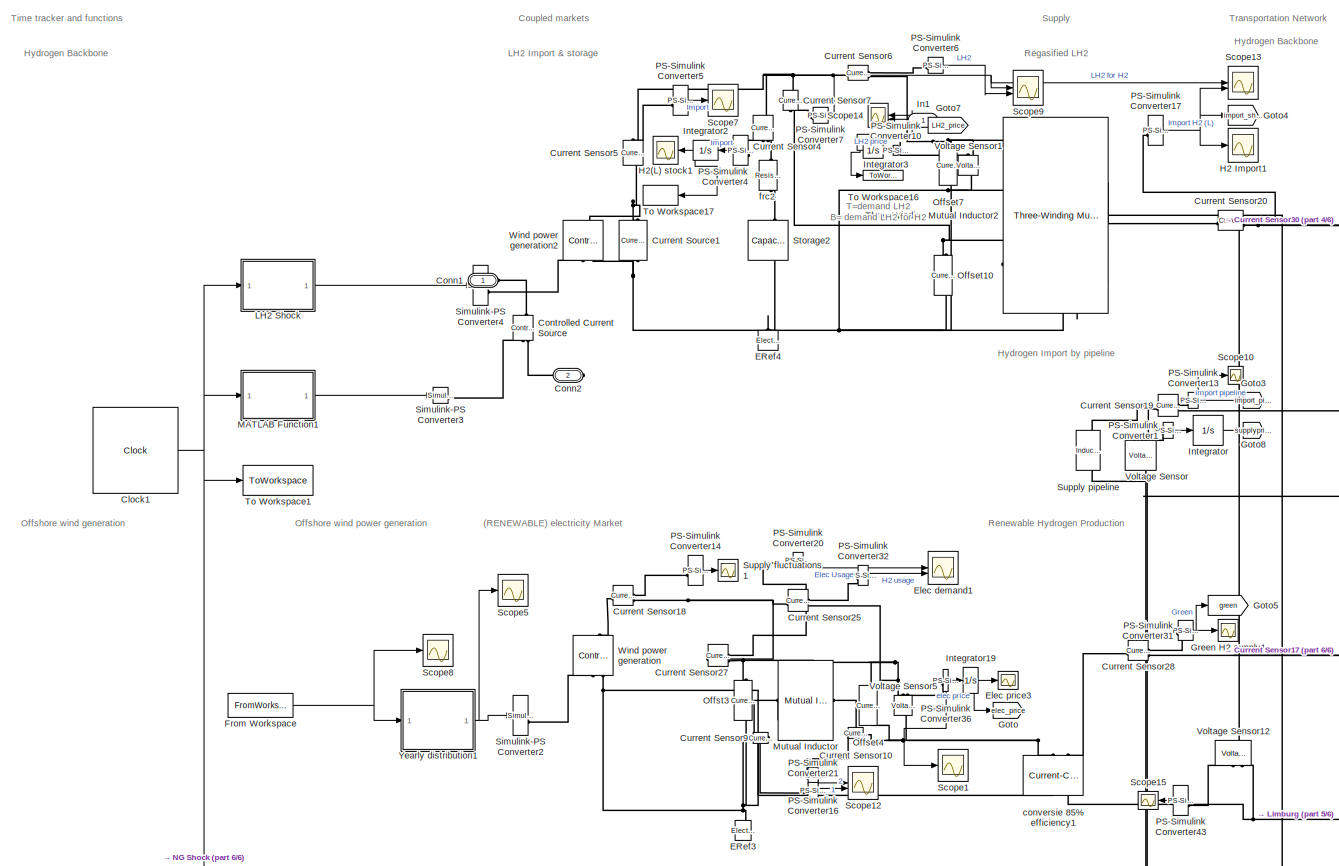
[diagram: Subsystem1 - part 1/6, top left region]
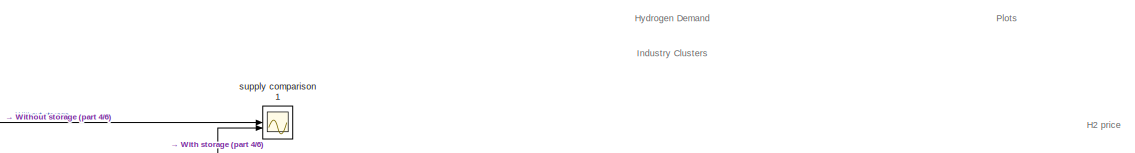
[diagram: Subsystem1 - part 2/6, top center region]
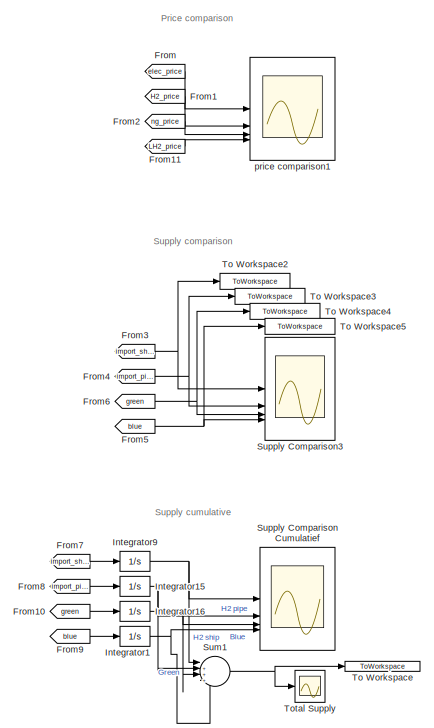
[diagram: Subsystem1 - part 3/6, middle right region]
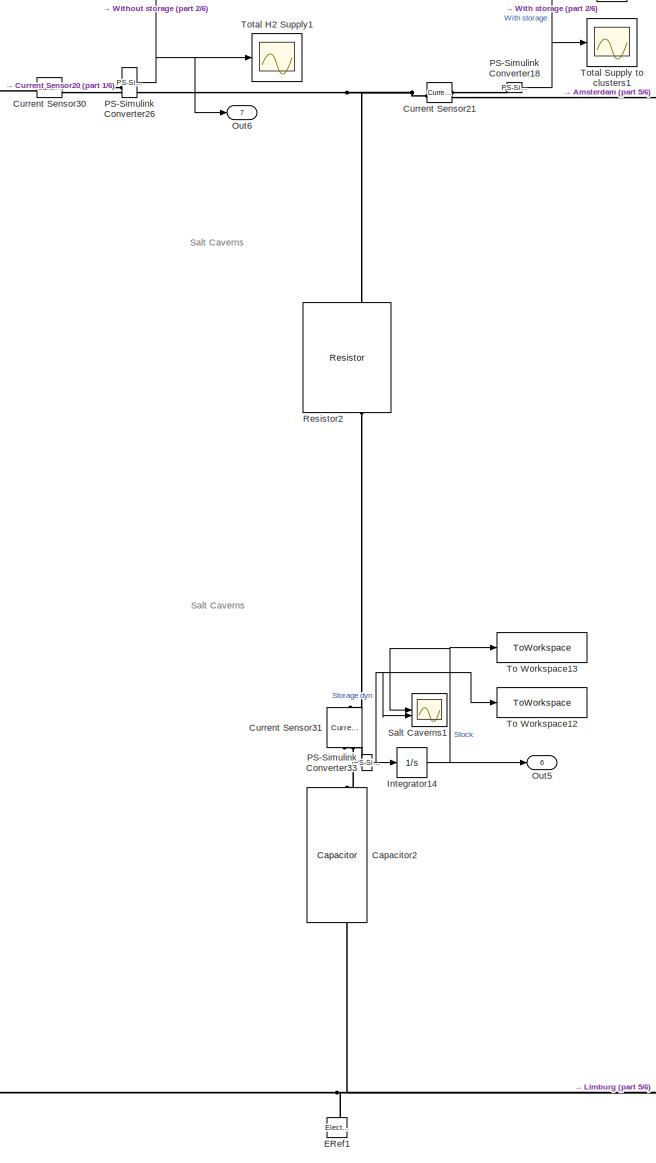
[diagram: Subsystem1 - part 4/6, center side, full height]
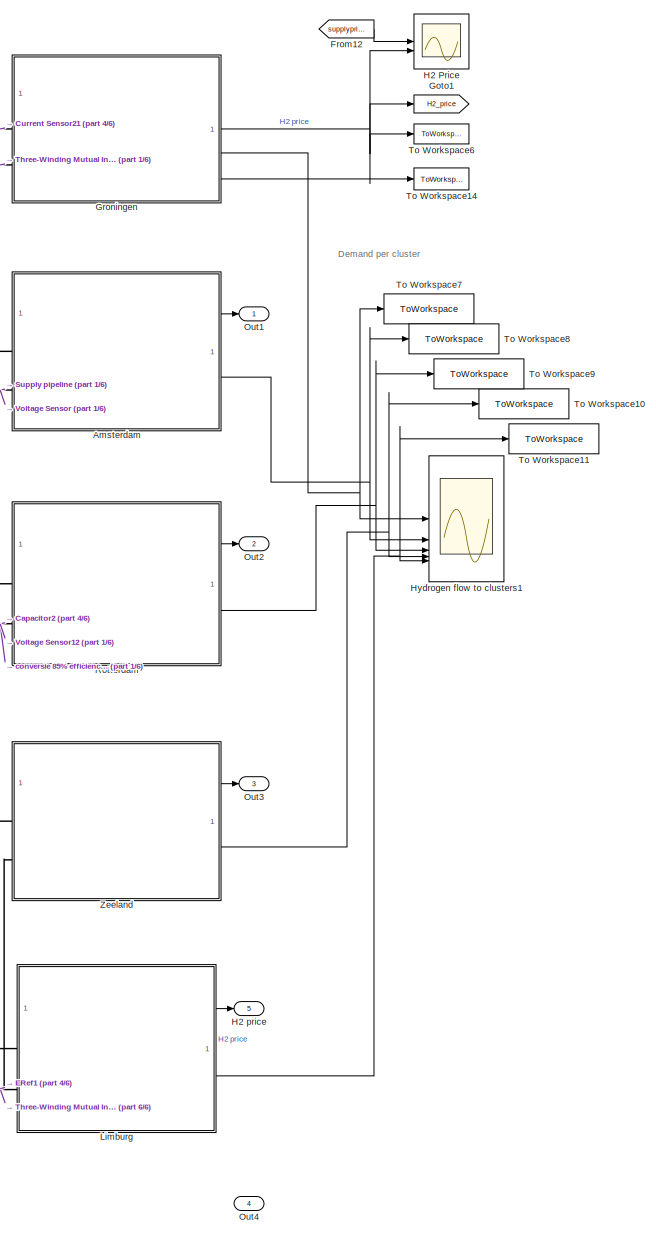
[diagram: Subsystem1 - part 5/6, right side, full height]
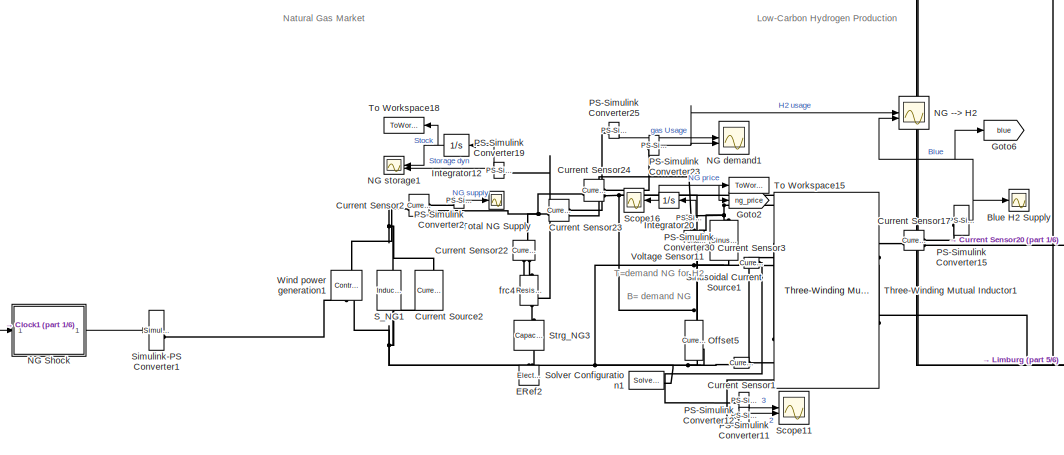
[diagram: Subsystem1 - part 6/6, bottom left region]
BLOCK [SubSystem] Subsystem1
BLOCK [SubSystem] Subsystem1/Amsterdam
BLOCK [Scope] Subsystem1/Amsterdam/Ams
  Floating = off
  NumInputPorts = 1
  ScopeSpecificationString = Simulink.scopes.TimeScopeBlockCfg('CurrentConfiguration', extmgr.ConfigurationSet(extmgr.Configuration('Core','General UI',true),extmgr.Configuration('Core','Source UI',true),extmgr.Configuration('Sources','WiredSimulink',true,'DataLoggingVariableName','ScopeData40'),extmgr.Configuration('Visuals','Time Domain',true,'SerializedDisplays',{struct('MinYLimReal','-0.37733','MaxYLimReal','2.2197','YLab...<+1377ch>
BLOCK [Reference] Subsystem1/Amsterdam/Current Sensor  REF=fl_lib/Electrical/Electrical Sensors/Current Sensor
  NameLocation = left
  SourceBlock = fl_lib/Electrical/Electrical Sensors/Current Sensor
  SourceType = Current Sensor
BLOCK [Reference] Subsystem1/Amsterdam/Current Sensor1  REF=fl_lib/Electrical/Electrical Sensors/Current Sensor
  SourceBlock = fl_lib/Electrical/Electrical Sensors/Current Sensor
  SourceType = Current Sensor
BLOCK [Reference] Subsystem1/Amsterdam/Current Source  REF=ee_lib/Sources/Current Source
  NameLocation = left
  SourceBlock = ee_lib/Sources/Current Source
  SourceType = Current Source
BLOCK [Reference] Subsystem1/Amsterdam/Demand  REF=ee_lib/Passive/Inductor
  NameLocation = left
  SourceBlock = ee_lib/Passive/Inductor
  SourceType = Inductor
BLOCK [Integrator] Subsystem1/Amsterdam/Integrator
BLOCK [Outport] Subsystem1/Amsterdam/Out1
BLOCK [Outport] Subsystem1/Amsterdam/Out2
  Port = 2
BLOCK [Reference] Subsystem1/Amsterdam/PS-Simulink Converter  REF=nesl_utility/PS-Simulink
Converter
  SourceBlock = nesl_utility/PS-Simulink\nConverter
  SourceType = PS-Simulink\nConverter
BLOCK [Reference] Subsystem1/Amsterdam/PS-Simulink Converter1  REF=nesl_utility/PS-Simulink
Converter
  SourceBlock = nesl_utility/PS-Simulink\nConverter
  SourceType = PS-Simulink\nConverter
BLOCK [Reference] Subsystem1/Amsterdam/PS-Simulink Converter2  REF=nesl_utility/PS-Simulink
Converter
  SourceBlock = nesl_utility/PS-Simulink\nConverter
  SourceType = PS-Simulink\nConverter
BLOCK [Scope] Subsystem1/Amsterdam/Price 
  Floating = off
  NumInputPorts = 1
  ScopeSpecificationString = Simulink.scopes.TimeScopeBlockCfg('CurrentConfiguration', extmgr.ConfigurationSet(extmgr.Configuration('Core','General UI',true),extmgr.Configuration('Core','Source UI',true),extmgr.Configuration('Sources','WiredSimulink',true,'DataLoggingVariableName','ScopeData41'),extmgr.Configuration('Visuals','Time Domain',true,'SerializedDisplays',{struct('MinYLimReal','-0.244','MaxYLimReal','0.02711','YLabe...<+1396ch>
BLOCK [Scope] Subsystem1/Amsterdam/Price dyn
  Floating = off
  NumInputPorts = 1
  ScopeSpecificationString = Simulink.scopes.TimeScopeBlockCfg('CurrentConfiguration', extmgr.ConfigurationSet(extmgr.Configuration('Core','General UI',true),extmgr.Configuration('Core','Source UI',true),extmgr.Configuration('Sources','WiredSimulink',true,'DataLoggingVariableName','ScopeData42'),extmgr.Configuration('Visuals','Time Domain',true,'SerializedDisplays',{struct('MinYLimReal','-2.85552','MaxYLimReal','0.64869','YLa...<+1411ch>
BLOCK [Scope] Subsystem1/Amsterdam/Scope
  Floating = off
  NumInputPorts = 1
  ScopeSpecificationString = Simulink.scopes.TimeScopeBlockCfg('CurrentConfiguration', extmgr.ConfigurationSet(extmgr.Configuration('Core','General UI',true),extmgr.Configuration('Core','Source UI',true),extmgr.Configuration('Sources','WiredSimulink',true,'DataLoggingVariableName','ScopeData43'),extmgr.Configuration('Visuals','Time Domain',true,'SerializedDisplays',{struct('MinYLimReal','-0.05818','MaxYLimReal','0.04351','YLa...<+1410ch>
BLOCK [Reference] Subsystem1/Amsterdam/Storage  REF=fl_lib/Electrical/Electrical Elements/Capacitor
  NameLocation = right
  SourceBlock = fl_lib/Electrical/Electrical Elements/Capacitor
  SourceType = Capacitor
BLOCK [Reference] Subsystem1/Amsterdam/Voltage Sensor1  REF=fl_lib/Electrical/Electrical Sensors/Voltage Sensor
  NameLocation = right
  SourceBlock = fl_lib/Electrical/Electrical Sensors/Voltage Sensor
  SourceType = Voltage Sensor
BLOCK [PMIOPort] Subsystem1/Amsterdam/i+ 
  Side = Left
  Tag = PMCPort
BLOCK [PMIOPort] Subsystem1/Amsterdam/i-
  Port = 2
  Side = Left
  Tag = PMCPort
BLOCK [Scope] Subsystem1/Blue H2 Supply
  Floating = off
  NumInputPorts = 1
  ScopeSpecificationString = Simulink.scopes.TimeScopeBlockCfg('CurrentConfiguration', extmgr.ConfigurationSet(extmgr.Configuration('Core','General UI',true),extmgr.Configuration('Core','Source UI',true),extmgr.Configuration('Sources','WiredSimulink',true,'DataLoggingVariableName','ScopeData1'),extmgr.Configuration('Visuals','Time Domain',true,'SerializedDisplays',{struct('MinYLimReal','-0.07535','MaxYLimReal','0.18841','YLab...<+1398ch>
BLOCK [Reference] Subsystem1/Capacitor2  REF=fl_lib/Electrical/Electrical Elements/Capacitor
  NameLocation = right
  SourceBlock = fl_lib/Electrical/Electrical Elements/Capacitor
  SourceType = Capacitor
BLOCK [Clock] Subsystem1/Clock1
  Decimation = 24
  DisplayTime = on
BLOCK [PMIOPort] Subsystem1/Conn1
  Side = Left
BLOCK [PMIOPort] Subsystem1/Conn2
  Port = 2
  Side = Right
BLOCK [Reference] Subsystem1/Controlled Current Source  REF=fl_lib/Electrical/Electrical Sources/Controlled Current
Source
  Commented = on
  NameLocation = right
  SourceBlock = fl_lib/Electrical/Electrical Sources/Controlled Current\nSource
  SourceType = Controlled Current\nSource
BLOCK [Reference] Subsystem1/Current Sensor1  REF=fl_lib/Electrical/Electrical Sensors/Current Sensor
  SourceBlock = fl_lib/Electrical/Electrical Sensors/Current Sensor
  SourceType = Current Sensor
BLOCK [Reference] Subsystem1/Current Sensor10  REF=fl_lib/Electrical/Electrical Sensors/Current Sensor
  SourceBlock = fl_lib/Electrical/Electrical Sensors/Current Sensor
  SourceType = Current Sensor
BLOCK [Reference] Subsystem1/Current Sensor17  REF=fl_lib/Electrical/Electrical Sensors/Current Sensor
  SourceBlock = fl_lib/Electrical/Electrical Sensors/Current Sensor
  SourceType = Current Sensor
BLOCK [Reference] Subsystem1/Current Sensor18  REF=fl_lib/Electrical/Electrical Sensors/Current Sensor
  SourceBlock = fl_lib/Electrical/Electrical Sensors/Current Sensor
  SourceType = Current Sensor
BLOCK [Reference] Subsystem1/Current Sensor19  REF=fl_lib/Electrical/Electrical Sensors/Current Sensor
  SourceBlock = fl_lib/Electrical/Electrical Sensors/Current Sensor
  SourceType = Current Sensor
BLOCK [Reference] Subsystem1/Current Sensor2  REF=fl_lib/Electrical/Electrical Sensors/Current Sensor
  SourceBlock = fl_lib/Electrical/Electrical Sensors/Current Sensor
  SourceType = Current Sensor
BLOCK [Reference] Subsystem1/Current Sensor20  REF=fl_lib/Electrical/Electrical Sensors/Current Sensor
  SourceBlock = fl_lib/Electrical/Electrical Sensors/Current Sensor
  SourceType = Current Sensor
BLOCK [Reference] Subsystem1/Current Sensor21  REF=fl_lib/Electrical/Electrical Sensors/Current Sensor
  SourceBlock = fl_lib/Electrical/Electrical Sensors/Current Sensor
  SourceType = Current Sensor
BLOCK [Reference] Subsystem1/Current Sensor22  REF=fl_lib/Electrical/Electrical Sensors/Current Sensor
  NameLocation = left
  SourceBlock = fl_lib/Electrical/Electrical Sensors/Current Sensor
  SourceType = Current Sensor
BLOCK [Reference] Subsystem1/Current Sensor23  REF=fl_lib/Electrical/Electrical Sensors/Current Sensor
  SourceBlock = fl_lib/Electrical/Electrical Sensors/Current Sensor
  SourceType = Current Sensor
BLOCK [Reference] Subsystem1/Current Sensor24  REF=fl_lib/Electrical/Electrical Sensors/Current Sensor
  SourceBlock = fl_lib/Electrical/Electrical Sensors/Current Sensor
  SourceType = Current Sensor
BLOCK [Reference] Subsystem1/Current Sensor25  REF=fl_lib/Electrical/Electrical Sensors/Current Sensor
  SourceBlock = fl_lib/Electrical/Electrical Sensors/Current Sensor
  SourceType = Current Sensor
BLOCK [Reference] Subsystem1/Current Sensor27  REF=fl_lib/Electrical/Electrical Sensors/Current Sensor
  SourceBlock = fl_lib/Electrical/Electrical Sensors/Current Sensor
  SourceType = Current Sensor
BLOCK [Reference] Subsystem1/Current Sensor28  REF=fl_lib/Electrical/Electrical Sensors/Current Sensor
  SourceBlock = fl_lib/Electrical/Electrical Sensors/Current Sensor
  SourceType = Current Sensor
BLOCK [Reference] Subsystem1/Current Sensor3  REF=fl_lib/Electrical/Electrical Sensors/Current Sensor
  SourceBlock = fl_lib/Electrical/Electrical Sensors/Current Sensor
  SourceType = Current Sensor
BLOCK [Reference] Subsystem1/Current Sensor30  REF=fl_lib/Electrical/Electrical Sensors/Current Sensor
  SourceBlock = fl_lib/Electrical/Electrical Sensors/Current Sensor
  SourceType = Current Sensor
BLOCK [Reference] Subsystem1/Current Sensor31  REF=fl_lib/Electrical/Electrical Sensors/Current Sensor
  NameLocation = left
  SourceBlock = fl_lib/Electrical/Electrical Sensors/Current Sensor
  SourceType = Current Sensor
BLOCK [Reference] Subsystem1/Current Sensor4  REF=fl_lib/Electrical/Electrical Sensors/Current Sensor
  NameLocation = right
  SourceBlock = fl_lib/Electrical/Electrical Sensors/Current Sensor
  SourceType = Current Sensor
BLOCK [Reference] Subsystem1/Current Sensor5  REF=fl_lib/Electrical/Electrical Sensors/Current Sensor
  NameLocation = right
  SourceBlock = fl_lib/Electrical/Electrical Sensors/Current Sensor
  SourceType = Current Sensor
BLOCK [Reference] Subsystem1/Current Sensor6  REF=fl_lib/Electrical/Electrical Sensors/Current Sensor
  SourceBlock = fl_lib/Electrical/Electrical Sensors/Current Sensor
  SourceType = Current Sensor
BLOCK [Reference] Subsystem1/Current Sensor7  REF=fl_lib/Electrical/Electrical Sensors/Current Sensor
  NameLocation = left
  SourceBlock = fl_lib/Electrical/Electrical Sensors/Current Sensor
  SourceType = Current Sensor
BLOCK [Reference] Subsystem1/Current Sensor9  REF=fl_lib/Electrical/Electrical Sensors/Current Sensor
  SourceBlock = fl_lib/Electrical/Electrical Sensors/Current Sensor
  SourceType = Current Sensor
BLOCK [Reference] Subsystem1/Current Source1  REF=ee_lib/Sources/Current Source
  NameLocation = right
  SourceBlock = ee_lib/Sources/Current Source
  SourceType = Current Source
BLOCK [Reference] Subsystem1/Current Source2  REF=ee_lib/Sources/Current Source
  NameLocation = right
  SourceBlock = ee_lib/Sources/Current Source
  SourceType = Current Source
BLOCK [Reference] Subsystem1/ERef1  REF=fl_lib/Electrical/Electrical Elements/Electrical Reference
  NameLocation = left
  SourceBlock = fl_lib/Electrical/Electrical Elements/Electrical Reference
  SourceType = Electrical Reference
BLOCK [Reference] Subsystem1/ERef2  REF=fl_lib/Electrical/Electrical Elements/Electrical Reference
  NameLocation = left
  SourceBlock = fl_lib/Electrical/Electrical Elements/Electrical Reference
  SourceType = Electrical Reference
BLOCK [Reference] Subsystem1/ERef3  REF=fl_lib/Electrical/Electrical Elements/Electrical Reference
  NameLocation = left
  SourceBlock = fl_lib/Electrical/Electrical Elements/Electrical Reference
  SourceType = Electrical Reference
BLOCK [Reference] Subsystem1/ERef4  REF=fl_lib/Electrical/Electrical Elements/Electrical Reference
  NameLocation = left
  SourceBlock = fl_lib/Electrical/Electrical Elements/Electrical Reference
  SourceType = Electrical Reference
BLOCK [Scope] Subsystem1/Elec demand1
  Floating = off
  NumInputPorts = 2
  ScopeSpecificationString = Simulink.scopes.TimeScopeBlockCfg('CurrentConfiguration', extmgr.ConfigurationSet(extmgr.Configuration('Core','General UI',true),extmgr.Configuration('Core','Source UI',true),extmgr.Configuration('Sources','WiredSimulink',true,'DataLoggingVariableName','ScopeData2'),extmgr.Configuration('Visuals','Time Domain',true,'SerializedDisplays',{struct('MinYLimReal','-0.1643','MaxYLimReal','0.28639','YLabe...<+1502ch>
BLOCK [Scope] Subsystem1/Elec price3
  Floating = off
  NameLocation = right
  NumInputPorts = 1
  ScopeSpecificationString = Simulink.scopes.TimeScopeBlockCfg('CurrentConfiguration', extmgr.ConfigurationSet(extmgr.Configuration('Core','General UI',true),extmgr.Configuration('Core','Source UI',true),extmgr.Configuration('Sources','WiredSimulink',true,'DataLoggingVariableName','ScopeData3'),extmgr.Configuration('Visuals','Time Domain',true,'SerializedDisplays',{struct('MinYLimReal','-0.11501','MaxYLimReal','0.03283','YLab...<+1466ch>
BLOCK [From] Subsystem1/From
  GotoTag = elec_price
BLOCK [FromWorkspace] Subsystem1/From Workspace
  OutDataTypeStr = double
  VariableName = Wind_Distr_2019_input
BLOCK [From] Subsystem1/From1
  GotoTag = H2_price
BLOCK [From] Subsystem1/From10
  GotoTag = green
BLOCK [From] Subsystem1/From11
  GotoTag = LH2_price
BLOCK [From] Subsystem1/From12
  GotoTag = supplyprice
BLOCK [From] Subsystem1/From2
  GotoTag = ng_price
BLOCK [From] Subsystem1/From3
  GotoTag = import_ship
BLOCK [From] Subsystem1/From4
  GotoTag = import_pipe
BLOCK [From] Subsystem1/From5
  GotoTag = blue
BLOCK [From] Subsystem1/From6
  GotoTag = green
BLOCK [From] Subsystem1/From7
  GotoTag = import_ship
BLOCK [From] Subsystem1/From8
  GotoTag = import_pipe
BLOCK [From] Subsystem1/From9
  GotoTag = blue
BLOCK [Goto] Subsystem1/Goto
  GotoTag = elec_price
BLOCK [Goto] Subsystem1/Goto1
  GotoTag = H2_price
BLOCK [Goto] Subsystem1/Goto2
  GotoTag = ng_price
BLOCK [Goto] Subsystem1/Goto3
  GotoTag = import_pipe
BLOCK [Goto] Subsystem1/Goto4
  GotoTag = import_ship
BLOCK [Goto] Subsystem1/Goto5
  GotoTag = green
BLOCK [Goto] Subsystem1/Goto6
  GotoTag = blue
BLOCK [Goto] Subsystem1/Goto7
  GotoTag = LH2_price
BLOCK [Goto] Subsystem1/Goto8
  GotoTag = supplyprice
BLOCK [Scope] Subsystem1/Green H2 supply1
  Floating = off
  NumInputPorts = 1
  ScopeSpecificationString = Simulink.scopes.TimeScopeBlockCfg('CurrentConfiguration', extmgr.ConfigurationSet(extmgr.Configuration('Core','General UI',true),extmgr.Configuration('Core','Source UI',true),extmgr.Configuration('Sources','WiredSimulink',true,'DataLoggingVariableName','ScopeData4'),extmgr.Configuration('Visuals','Time Domain',true,'SerializedDisplays',{struct('MinYLimReal','-0.04301','MaxYLimReal','0.43949','YLab...<+1444ch>
BLOCK [SubSystem] Subsystem1/Groningen
BLOCK [Reference] Subsystem1/Groningen/Current Sensor  REF=fl_lib/Electrical/Electrical Sensors/Current Sensor
  NameLocation = left
  SourceBlock = fl_lib/Electrical/Electrical Sensors/Current Sensor
  SourceType = Current Sensor
BLOCK [Reference] Subsystem1/Groningen/Current Sensor1  REF=fl_lib/Electrical/Electrical Sensors/Current Sensor
  SourceBlock = fl_lib/Electrical/Electrical Sensors/Current Sensor
  SourceType = Current Sensor
BLOCK [Reference] Subsystem1/Groningen/Current Source  REF=ee_lib/Sources/Current Source
  NameLocation = left
  SourceBlock = ee_lib/Sources/Current Source
  SourceType = Current Source
BLOCK [Reference] Subsystem1/Groningen/Demand  REF=ee_lib/Passive/Inductor
  NameLocation = left
  SourceBlock = ee_lib/Passive/Inductor
  SourceType = Inductor
BLOCK [Scope] Subsystem1/Groningen/Gr
  Floating = off
  NumInputPorts = 1
  ScopeSpecificationString = Simulink.scopes.TimeScopeBlockCfg('CurrentConfiguration', extmgr.ConfigurationSet(extmgr.Configuration('Core','General UI',true),extmgr.Configuration('Core','Source UI',true),extmgr.Configuration('Sources','WiredSimulink',true,'DataLoggingVariableName','ScopeData39'),extmgr.Configuration('Visuals','Time Domain',true,'SerializedDisplays',{struct('MinYLimReal','0.02465','MaxYLimReal','0.12849','YLab...<+1380ch>
BLOCK [Integrator] Subsystem1/Groningen/Integrator
BLOCK [Outport] Subsystem1/Groningen/Out1
BLOCK [Outport] Subsystem1/Groningen/Out2
  Port = 2
BLOCK [Outport] Subsystem1/Groningen/Out3
  Port = 3
BLOCK [Reference] Subsystem1/Groningen/PS-Simulink Converter  REF=nesl_utility/PS-Simulink
Converter
  SourceBlock = nesl_utility/PS-Simulink\nConverter
  SourceType = PS-Simulink\nConverter
BLOCK [Reference] Subsystem1/Groningen/PS-Simulink Converter1  REF=nesl_utility/PS-Simulink
Converter
  SourceBlock = nesl_utility/PS-Simulink\nConverter
  SourceType = PS-Simulink\nConverter
BLOCK [Reference] Subsystem1/Groningen/PS-Simulink Converter2  REF=nesl_utility/PS-Simulink
Converter
  SourceBlock = nesl_utility/PS-Simulink\nConverter
  SourceType = PS-Simulink\nConverter
BLOCK [Scope] Subsystem1/Groningen/Price 
  Floating = off
  NumInputPorts = 1
  ScopeSpecificationString = Simulink.scopes.TimeScopeBlockCfg('CurrentConfiguration', extmgr.ConfigurationSet(extmgr.Configuration('Core','General UI',true),extmgr.Configuration('Core','Source UI',true),extmgr.Configuration('Sources','WiredSimulink',true,'DataLoggingVariableName','ScopeData1'),extmgr.Configuration('Visuals','Time Domain',true,'SerializedDisplays',{struct('MinYLimReal','-0.00054','MaxYLimReal','0.00489','YLab...<+1403ch>
BLOCK [Scope] Subsystem1/Groningen/Price dyn
  Floating = off
  NumInputPorts = 1
  ScopeSpecificationString = Simulink.scopes.TimeScopeBlockCfg('CurrentConfiguration', extmgr.ConfigurationSet(extmgr.Configuration('Core','General UI',true),extmgr.Configuration('Core','Source UI',true),extmgr.Configuration('Sources','WiredSimulink',true,'DataLoggingVariableName','ScopeData4'),extmgr.Configuration('Visuals','Time Domain',true,'SerializedDisplays',{struct('MinYLimReal','-0.00582','MaxYLimReal','0.01451','YLab...<+1410ch>
BLOCK [Scope] Subsystem1/Groningen/Scope
  Floating = off
  NumInputPorts = 1
  ScopeSpecificationString = Simulink.scopes.TimeScopeBlockCfg('CurrentConfiguration', extmgr.ConfigurationSet(extmgr.Configuration('Core','General UI',true),extmgr.Configuration('Core','Source UI',true),extmgr.Configuration('Sources','WiredSimulink',true),extmgr.Configuration('Visuals','Time Domain',true,'SerializedDisplays',{struct('MinYLimReal','-0.00763','MaxYLimReal','0.02317','YLabelReal','','MinYLimMag','0.00000','MaxY...<+1385ch>
BLOCK [Reference] Subsystem1/Groningen/Storage  REF=fl_lib/Electrical/Electrical Elements/Capacitor
  NameLocation = right
  SourceBlock = fl_lib/Electrical/Electrical Elements/Capacitor
  SourceType = Capacitor
BLOCK [Reference] Subsystem1/Groningen/Voltage Sensor1  REF=fl_lib/Electrical/Electrical Sensors/Voltage Sensor
  NameLocation = right
  SourceBlock = fl_lib/Electrical/Electrical Sensors/Voltage Sensor
  SourceType = Voltage Sensor
BLOCK [PMIOPort] Subsystem1/Groningen/i+ 
  Side = Left
  Tag = PMCPort
BLOCK [PMIOPort] Subsystem1/Groningen/i-
  Port = 2
  Side = Left
  Tag = PMCPort
BLOCK [Scope] Subsystem1/H2 Import1
  Floating = off
  NumInputPorts = 1
  ScopeSpecificationString = Simulink.scopes.TimeScopeBlockCfg('CurrentConfiguration', extmgr.ConfigurationSet(extmgr.Configuration('Core','General UI',true),extmgr.Configuration('Core','Source UI',true),extmgr.Configuration('Sources','WiredSimulink',true,'DataLoggingVariableName','ScopeData5'),extmgr.Configuration('Visuals','Time Domain',true,'SerializedDisplays',{struct('MinYLimReal','-0.31584','MaxYLimReal','0.40104','YLab...<+1447ch>
BLOCK [Scope] Subsystem1/H2 Price
  Floating = off
  NumInputPorts = 2
  ScopeSpecificationString = Simulink.scopes.TimeScopeBlockCfg('CurrentConfiguration', extmgr.ConfigurationSet(extmgr.Configuration('Core','General UI',true),extmgr.Configuration('Core','Source UI',true),extmgr.Configuration('Sources','WiredSimulink',true,'DataLoggingVariableName','ScopeData6'),extmgr.Configuration('Visuals','Time Domain',true,'SerializedDisplays',{struct('MinYLimReal','-0.00135','MaxYLimReal','0.01216','YLab...<+1458ch>
BLOCK [Outport] Subsystem1/H2 price
  Port = 5
BLOCK [Scope] Subsystem1/H2(L) stock1
  Floating = off
  NumInputPorts = 1
  ScopeSpecificationString = Simulink.scopes.TimeScopeBlockCfg('CurrentConfiguration', extmgr.ConfigurationSet(extmgr.Configuration('Core','General UI',true),extmgr.Configuration('Core','Source UI',true),extmgr.Configuration('Sources','WiredSimulink',true,'DataLoggingVariableName','ScopeData7'),extmgr.Configuration('Visuals','Time Domain',true,'SerializedDisplays',{struct('MinYLimReal','-0.04116','MaxYLimReal','0.00457','YLab...<+1443ch>
BLOCK [Scope] Subsystem1/Hydrogen flow to clusters1
  Floating = off
  NumInputPorts = 5
  ScopeSpecificationString = Simulink.scopes.TimeScopeBlockCfg('CurrentConfiguration', extmgr.ConfigurationSet(extmgr.Configuration('Core','General UI',true),extmgr.Configuration('Core','Source UI',true),extmgr.Configuration('Sources','WiredSimulink',true,'DataLoggingVariableName','ScopeData8'),extmgr.Configuration('Visuals','Time Domain',true,'SerializedDisplays',{struct('MinYLimReal','-0.16204','MaxYLimReal','0.19945','YLab...<+1654ch>
BLOCK [Inport] Subsystem1/In1
BLOCK [Integrator] Subsystem1/Integrator
BLOCK [Integrator] Subsystem1/Integrator1
BLOCK [Integrator] Subsystem1/Integrator12
BLOCK [Integrator] Subsystem1/Integrator14
BLOCK [Integrator] Subsystem1/Integrator15
BLOCK [Integrator] Subsystem1/Integrator16
BLOCK [Integrator] Subsystem1/Integrator19
BLOCK [Integrator] Subsystem1/Integrator2
BLOCK [Integrator] Subsystem1/Integrator20
BLOCK [Integrator] Subsystem1/Integrator3
BLOCK [Integrator] Subsystem1/Integrator9
BLOCK [SubSystem] Subsystem1/LH2 Shock
  Commented = on
  ErrorFcn = Stateflow.Translate.translate
  LibrarySourceBlock = simulink/User-Defined\nFunctions/MATLAB Function
  PermitHierarchicalResolution = ExplicitOnly
  SFBlockType = MATLAB Function
  TreatAsAtomicUnit = on
BLOCK [Demux] Subsystem1/LH2 Shock/ Demux 
  Outputs = 1
BLOCK [S-Function] Subsystem1/LH2 Shock/ SFunction 
  EnableBusSupport = on
  FunctionName = sf_sfun
  PortCounts = [1 2]
  SFcnIsStateOwnerBlock = off
  SFunctionDeploymentMode = off
  Tag = Stateflow S-Function 7
BLOCK [Terminator] Subsystem1/LH2 Shock/ Terminator 
BLOCK [Inport] Subsystem1/LH2 Shock/X
BLOCK [Outport] Subsystem1/LH2 Shock/y
BLOCK [SubSystem] Subsystem1/Limburg
BLOCK [Reference] Subsystem1/Limburg/Current Sensor  REF=fl_lib/Electrical/Electrical Sensors/Current Sensor
  NameLocation = left
  SourceBlock = fl_lib/Electrical/Electrical Sensors/Current Sensor
  SourceType = Current Sensor
BLOCK [Reference] Subsystem1/Limburg/Current Sensor1  REF=fl_lib/Electrical/Electrical Sensors/Current Sensor
  SourceBlock = fl_lib/Electrical/Electrical Sensors/Current Sensor
  SourceType = Current Sensor
BLOCK [Reference] Subsystem1/Limburg/Current Source  REF=ee_lib/Sources/Current Source
  NameLocation = left
  SourceBlock = ee_lib/Sources/Current Source
  SourceType = Current Source
BLOCK [Reference] Subsystem1/Limburg/Demand  REF=ee_lib/Passive/Inductor
  NameLocation = left
  SourceBlock = ee_lib/Passive/Inductor
  SourceType = Inductor
BLOCK [Scope] Subsystem1/Limburg/Gr
  Floating = off
  NumInputPorts = 1
  ScopeSpecificationString = Simulink.scopes.TimeScopeBlockCfg('CurrentConfiguration', extmgr.ConfigurationSet(extmgr.Configuration('Core','General UI',true),extmgr.Configuration('Core','Source UI',true),extmgr.Configuration('Sources','WiredSimulink',true,'DataLoggingVariableName','ScopeData52'),extmgr.Configuration('Visuals','Time Domain',true,'SerializedDisplays',{struct('MinYLimReal','-0.37733','MaxYLimReal','2.2197','YLab...<+1377ch>
BLOCK [Integrator] Subsystem1/Limburg/Integrator
BLOCK [Outport] Subsystem1/Limburg/Out1
BLOCK [Outport] Subsystem1/Limburg/Out2
  Port = 2
BLOCK [Reference] Subsystem1/Limburg/PS-Simulink Converter  REF=nesl_utility/PS-Simulink
Converter
  SourceBlock = nesl_utility/PS-Simulink\nConverter
  SourceType = PS-Simulink\nConverter
BLOCK [Reference] Subsystem1/Limburg/PS-Simulink Converter1  REF=nesl_utility/PS-Simulink
Converter
  SourceBlock = nesl_utility/PS-Simulink\nConverter
  SourceType = PS-Simulink\nConverter
BLOCK [Reference] Subsystem1/Limburg/PS-Simulink Converter2  REF=nesl_utility/PS-Simulink
Converter
  SourceBlock = nesl_utility/PS-Simulink\nConverter
  SourceType = PS-Simulink\nConverter
BLOCK [Scope] Subsystem1/Limburg/Price 
  Floating = off
  NumInputPorts = 1
  ScopeSpecificationString = Simulink.scopes.TimeScopeBlockCfg('CurrentConfiguration', extmgr.ConfigurationSet(extmgr.Configuration('Core','General UI',true),extmgr.Configuration('Core','Source UI',true),extmgr.Configuration('Sources','WiredSimulink',true,'DataLoggingVariableName','ScopeData53'),extmgr.Configuration('Visuals','Time Domain',true,'SerializedDisplays',{struct('MinYLimReal','-0.244','MaxYLimReal','0.02711','YLabe...<+1396ch>
BLOCK [Scope] Subsystem1/Limburg/Price dyn
  Floating = off
  NumInputPorts = 1
  ScopeSpecificationString = Simulink.scopes.TimeScopeBlockCfg('CurrentConfiguration', extmgr.ConfigurationSet(extmgr.Configuration('Core','General UI',true),extmgr.Configuration('Core','Source UI',true),extmgr.Configuration('Sources','WiredSimulink',true,'DataLoggingVariableName','ScopeData54'),extmgr.Configuration('Visuals','Time Domain',true,'SerializedDisplays',{struct('MinYLimReal','-2.85552','MaxYLimReal','0.64869','YLa...<+1411ch>
BLOCK [Scope] Subsystem1/Limburg/Scope
  Floating = off
  NumInputPorts = 1
  ScopeSpecificationString = Simulink.scopes.TimeScopeBlockCfg('CurrentConfiguration', extmgr.ConfigurationSet(extmgr.Configuration('Core','General UI',true),extmgr.Configuration('Core','Source UI',true),extmgr.Configuration('Sources','WiredSimulink',true,'DataLoggingVariableName','ScopeData55'),extmgr.Configuration('Visuals','Time Domain',true,'SerializedDisplays',{struct('MinYLimReal','-0.37733','MaxYLimReal','2.2197','YLab...<+1377ch>
BLOCK [Reference] Subsystem1/Limburg/Storage  REF=fl_lib/Electrical/Electrical Elements/Capacitor
  NameLocation = right
  SourceBlock = fl_lib/Electrical/Electrical Elements/Capacitor
  SourceType = Capacitor
BLOCK [Reference] Subsystem1/Limburg/Voltage Sensor1  REF=fl_lib/Electrical/Electrical Sensors/Voltage Sensor
  NameLocation = right
  SourceBlock = fl_lib/Electrical/Electrical Sensors/Voltage Sensor
  SourceType = Voltage Sensor
BLOCK [PMIOPort] Subsystem1/Limburg/i+ 
  Side = Left
  Tag = PMCPort
BLOCK [PMIOPort] Subsystem1/Limburg/i-
  Port = 2
  Side = Left
  Tag = PMCPort
BLOCK [SubSystem] Subsystem1/MATLAB Function1
  Commented = on
  ErrorFcn = Stateflow.Translate.translate
  LibrarySourceBlock = simulink/User-Defined\nFunctions/MATLAB Function
  PermitHierarchicalResolution = ExplicitOnly
  SFBlockType = MATLAB Function
  TreatAsAtomicUnit = on
BLOCK [Demux] Subsystem1/MATLAB Function1/ Demux 
  Outputs = 1
BLOCK [S-Function] Subsystem1/MATLAB Function1/ SFunction 
  EnableBusSupport = on
  FunctionName = sf_sfun
  PortCounts = [1 2]
  SFcnIsStateOwnerBlock = off
  SFunctionDeploymentMode = off
  Tag = Stateflow S-Function 1
BLOCK [Terminator] Subsystem1/MATLAB Function1/ Terminator 
BLOCK [Inport] Subsystem1/MATLAB Function1/X
BLOCK [Outport] Subsystem1/MATLAB Function1/y
BLOCK [Reference] Subsystem1/Mutual Inductor  REF=fl_lib/Electrical/Electrical Elements/Mutual Inductor
  SourceBlock = fl_lib/Electrical/Electrical Elements/Mutual Inductor
  SourceType = Mutual Inductor
BLOCK [Scope] Subsystem1/NG --> H2
  Floating = off
  NumInputPorts = 2
  ScopeSpecificationString = Simulink.scopes.TimeScopeBlockCfg('CurrentConfiguration', extmgr.ConfigurationSet(extmgr.Configuration('Core','General UI',true),extmgr.Configuration('Core','Source UI',true),extmgr.Configuration('Sources','WiredSimulink',true,'DataLoggingVariableName','ScopeData9'),extmgr.Configuration('Visuals','Time Domain',true,'SerializedDisplays',{struct('MinYLimReal','-0.20264','MaxYLimReal','0.33461','YLab...<+1445ch>
BLOCK [SubSystem] Subsystem1/NG Shock
  Commented = on
  ErrorFcn = Stateflow.Translate.translate
  LibrarySourceBlock = simulink/User-Defined\nFunctions/MATLAB Function
  PermitHierarchicalResolution = ExplicitOnly
  SFBlockType = MATLAB Function
  TreatAsAtomicUnit = on
BLOCK [Demux] Subsystem1/NG Shock/ Demux 
  Outputs = 1
BLOCK [S-Function] Subsystem1/NG Shock/ SFunction 
  EnableBusSupport = on
  FunctionName = sf_sfun
  PortCounts = [1 2]
  SFcnIsStateOwnerBlock = off
  SFunctionDeploymentMode = off
  Tag = Stateflow S-Function 6
BLOCK [Terminator] Subsystem1/NG Shock/ Terminator 
BLOCK [Inport] Subsystem1/NG Shock/X
BLOCK [Outport] Subsystem1/NG Shock/y
BLOCK [Scope] Subsystem1/NG demand1
  Floating = off
  NumInputPorts = 2
  ScopeSpecificationString = Simulink.scopes.TimeScopeBlockCfg('CurrentConfiguration', extmgr.ConfigurationSet(extmgr.Configuration('Core','General UI',true),extmgr.Configuration('Core','Source UI',true),extmgr.Configuration('Sources','WiredSimulink',true,'DataLoggingVariableName','ScopeData10'),extmgr.Configuration('Visuals','Time Domain',true,'SerializedDisplays',{struct('MinYLimReal','-0.13763','MaxYLimReal','0.65974','YLa...<+1459ch>
BLOCK [Scope] Subsystem1/NG storage1
  Floating = off
  NumInputPorts = 2
  ScopeSpecificationString = Simulink.scopes.TimeScopeBlockCfg('CurrentConfiguration', extmgr.ConfigurationSet(extmgr.Configuration('Core','General UI',true),extmgr.Configuration('Core','Source UI',true),extmgr.Configuration('Sources','WiredSimulink',true,'DataLoggingVariableName','ScopeData11'),extmgr.Configuration('Visuals','Time Domain',true,'SerializedDisplays',{struct('MinYLimReal','-0.0773','MaxYLimReal','0.05876','YLab...<+1491ch>
BLOCK [Reference] Subsystem1/Offset10  REF=ee_lib/Sources/Current Source
  NameLocation = right
  SourceBlock = ee_lib/Sources/Current Source
  SourceType = Current Source
BLOCK [Reference] Subsystem1/Offset4  REF=ee_lib/Sources/Current Source
  NameLocation = right
  SourceBlock = ee_lib/Sources/Current Source
  SourceType = Current Source
BLOCK [Reference] Subsystem1/Offset5  REF=ee_lib/Sources/Current Source
  NameLocation = right
  SourceBlock = ee_lib/Sources/Current Source
  SourceType = Current Source
BLOCK [Reference] Subsystem1/Offset7  REF=ee_lib/Sources/Current Source
  NameLocation = right
  SourceBlock = ee_lib/Sources/Current Source
  SourceType = Current Source
BLOCK [Reference] Subsystem1/Offst3  REF=ee_lib/Sources/Current Source
  NameLocation = right
  SourceBlock = ee_lib/Sources/Current Source
  SourceType = Current Source
BLOCK [Outport] Subsystem1/Out1
BLOCK [Outport] Subsystem1/Out2
  Port = 2
BLOCK [Outport] Subsystem1/Out3
  Port = 3
BLOCK [Outport] Subsystem1/Out4
  Port = 4
BLOCK [Outport] Subsystem1/Out5
  Port = 6
BLOCK [Outport] Subsystem1/Out6
  Port = 7
BLOCK [Reference] Subsystem1/PS-Simulink Converter1  REF=nesl_utility/PS-Simulink
Converter
  NameLocation = top
  SourceBlock = nesl_utility/PS-Simulink\nConverter
  SourceType = PS-Simulink\nConverter
BLOCK [Reference] Subsystem1/PS-Simulink Converter10  REF=nesl_utility/PS-Simulink
Converter
  NameLocation = top
  SourceBlock = nesl_utility/PS-Simulink\nConverter
  SourceType = PS-Simulink\nConverter
BLOCK [Reference] Subsystem1/PS-Simulink Converter11  REF=nesl_utility/PS-Simulink
Converter
  NameLocation = top
  SourceBlock = nesl_utility/PS-Simulink\nConverter
  SourceType = PS-Simulink\nConverter
BLOCK [Reference] Subsystem1/PS-Simulink Converter12  REF=nesl_utility/PS-Simulink
Converter
  NameLocation = top
  SourceBlock = nesl_utility/PS-Simulink\nConverter
  SourceType = PS-Simulink\nConverter
BLOCK [Reference] Subsystem1/PS-Simulink Converter13  REF=nesl_utility/PS-Simulink
Converter
  NameLocation = top
  SourceBlock = nesl_utility/PS-Simulink\nConverter
  SourceType = PS-Simulink\nConverter
BLOCK [Reference] Subsystem1/PS-Simulink Converter14  REF=nesl_utility/PS-Simulink
Converter
  NameLocation = top
  SourceBlock = nesl_utility/PS-Simulink\nConverter
  SourceType = PS-Simulink\nConverter
BLOCK [Reference] Subsystem1/PS-Simulink Converter15  REF=nesl_utility/PS-Simulink
Converter
  NameLocation = top
  SourceBlock = nesl_utility/PS-Simulink\nConverter
  SourceType = PS-Simulink\nConverter
BLOCK [Reference] Subsystem1/PS-Simulink Converter16  REF=nesl_utility/PS-Simulink
Converter
  NameLocation = top
  SourceBlock = nesl_utility/PS-Simulink\nConverter
  SourceType = PS-Simulink\nConverter
BLOCK [Reference] Subsystem1/PS-Simulink Converter17  REF=nesl_utility/PS-Simulink
Converter
  NameLocation = top
  SourceBlock = nesl_utility/PS-Simulink\nConverter
  SourceType = PS-Simulink\nConverter
BLOCK [Reference] Subsystem1/PS-Simulink Converter18  REF=nesl_utility/PS-Simulink
Converter
  NameLocation = top
  SourceBlock = nesl_utility/PS-Simulink\nConverter
  SourceType = PS-Simulink\nConverter
BLOCK [Reference] Subsystem1/PS-Simulink Converter19  REF=nesl_utility/PS-Simulink
Converter
  NameLocation = top
  SourceBlock = nesl_utility/PS-Simulink\nConverter
  SourceType = PS-Simulink\nConverter
BLOCK [Reference] Subsystem1/PS-Simulink Converter2  REF=nesl_utility/PS-Simulink
Converter
  NameLocation = top
  SourceBlock = nesl_utility/PS-Simulink\nConverter
  SourceType = PS-Simulink\nConverter
BLOCK [Reference] Subsystem1/PS-Simulink Converter20  REF=nesl_utility/PS-Simulink
Converter
  NameLocation = top
  SourceBlock = nesl_utility/PS-Simulink\nConverter
  SourceType = PS-Simulink\nConverter
BLOCK [Reference] Subsystem1/PS-Simulink Converter21  REF=nesl_utility/PS-Simulink
Converter
  NameLocation = top
  SourceBlock = nesl_utility/PS-Simulink\nConverter
  SourceType = PS-Simulink\nConverter
BLOCK [Reference] Subsystem1/PS-Simulink Converter23  REF=nesl_utility/PS-Simulink
Converter
  NameLocation = top
  SourceBlock = nesl_utility/PS-Simulink\nConverter
  SourceType = PS-Simulink\nConverter
BLOCK [Reference] Subsystem1/PS-Simulink Converter25  REF=nesl_utility/PS-Simulink
Converter
  NameLocation = top
  SourceBlock = nesl_utility/PS-Simulink\nConverter
  SourceType = PS-Simulink\nConverter
BLOCK [Reference] Subsystem1/PS-Simulink Converter26  REF=nesl_utility/PS-Simulink
Converter
  NameLocation = top
  SourceBlock = nesl_utility/PS-Simulink\nConverter
  SourceType = PS-Simulink\nConverter
BLOCK [Reference] Subsystem1/PS-Simulink Converter30  REF=nesl_utility/PS-Simulink
Converter
  NameLocation = right
  SourceBlock = nesl_utility/PS-Simulink\nConverter
  SourceType = PS-Simulink\nConverter
BLOCK [Reference] Subsystem1/PS-Simulink Converter31  REF=nesl_utility/PS-Simulink
Converter
  NameLocation = right
  SourceBlock = nesl_utility/PS-Simulink\nConverter
  SourceType = PS-Simulink\nConverter
BLOCK [Reference] Subsystem1/PS-Simulink Converter32  REF=nesl_utility/PS-Simulink
Converter
  NameLocation = top
  SourceBlock = nesl_utility/PS-Simulink\nConverter
  SourceType = PS-Simulink\nConverter
BLOCK [Reference] Subsystem1/PS-Simulink Converter33  REF=nesl_utility/PS-Simulink
Converter
  NameLocation = top
  SourceBlock = nesl_utility/PS-Simulink\nConverter
  SourceType = PS-Simulink\nConverter
BLOCK [Reference] Subsystem1/PS-Simulink Converter36  REF=nesl_utility/PS-Simulink
Converter
  NameLocation = top
  SourceBlock = nesl_utility/PS-Simulink\nConverter
  SourceType = PS-Simulink\nConverter
BLOCK [Reference] Subsystem1/PS-Simulink Converter4  REF=nesl_utility/PS-Simulink
Converter
  NameLocation = top
  SourceBlock = nesl_utility/PS-Simulink\nConverter
  SourceType = PS-Simulink\nConverter
BLOCK [Reference] Subsystem1/PS-Simulink Converter43  REF=nesl_utility/PS-Simulink
Converter
  NameLocation = top
  SourceBlock = nesl_utility/PS-Simulink\nConverter
  SourceType = PS-Simulink\nConverter
BLOCK [Reference] Subsystem1/PS-Simulink Converter5  REF=nesl_utility/PS-Simulink
Converter
  NameLocation = top
  SourceBlock = nesl_utility/PS-Simulink\nConverter
  SourceType = PS-Simulink\nConverter
BLOCK [Reference] Subsystem1/PS-Simulink Converter6  REF=nesl_utility/PS-Simulink
Converter
  SourceBlock = nesl_utility/PS-Simulink\nConverter
  SourceType = PS-Simulink\nConverter
BLOCK [Reference] Subsystem1/PS-Simulink Converter7  REF=nesl_utility/PS-Simulink
Converter
  SourceBlock = nesl_utility/PS-Simulink\nConverter
  SourceType = PS-Simulink\nConverter
BLOCK [Reference] Subsystem1/Resistor2  REF=fl_lib/Electrical/Electrical Elements/Resistor
  NameLocation = right
  SourceBlock = fl_lib/Electrical/Electrical Elements/Resistor
  SourceType = Resistor
BLOCK [SubSystem] Subsystem1/Rotterdam
BLOCK [Reference] Subsystem1/Rotterdam/Current Sensor  REF=fl_lib/Electrical/Electrical Sensors/Current Sensor
  NameLocation = left
  SourceBlock = fl_lib/Electrical/Electrical Sensors/Current Sensor
  SourceType = Current Sensor
BLOCK [Reference] Subsystem1/Rotterdam/Current Sensor1  REF=fl_lib/Electrical/Electrical Sensors/Current Sensor
  SourceBlock = fl_lib/Electrical/Electrical Sensors/Current Sensor
  SourceType = Current Sensor
BLOCK [Reference] Subsystem1/Rotterdam/Current Source  REF=ee_lib/Sources/Current Source
  NameLocation = left
  SourceBlock = ee_lib/Sources/Current Source
  SourceType = Current Source
BLOCK [Reference] Subsystem1/Rotterdam/Demand  REF=ee_lib/Passive/Inductor
  NameLocation = left
  SourceBlock = ee_lib/Passive/Inductor
  SourceType = Inductor
BLOCK [Integrator] Subsystem1/Rotterdam/Integrator
BLOCK [Outport] Subsystem1/Rotterdam/Out1
BLOCK [Outport] Subsystem1/Rotterdam/Out2
  Port = 2
BLOCK [Reference] Subsystem1/Rotterdam/PS-Simulink Converter  REF=nesl_utility/PS-Simulink
Converter
  SourceBlock = nesl_utility/PS-Simulink\nConverter
  SourceType = PS-Simulink\nConverter
BLOCK [Reference] Subsystem1/Rotterdam/PS-Simulink Converter1  REF=nesl_utility/PS-Simulink
Converter
  SourceBlock = nesl_utility/PS-Simulink\nConverter
  SourceType = PS-Simulink\nConverter
BLOCK [Reference] Subsystem1/Rotterdam/PS-Simulink Converter2  REF=nesl_utility/PS-Simulink
Converter
  SourceBlock = nesl_utility/PS-Simulink\nConverter
  SourceType = PS-Simulink\nConverter
BLOCK [Scope] Subsystem1/Rotterdam/Price 
  Floating = off
  NumInputPorts = 1
  ScopeSpecificationString = Simulink.scopes.TimeScopeBlockCfg('CurrentConfiguration', extmgr.ConfigurationSet(extmgr.Configuration('Core','General UI',true),extmgr.Configuration('Core','Source UI',true),extmgr.Configuration('Sources','WiredSimulink',true,'DataLoggingVariableName','ScopeData45'),extmgr.Configuration('Visuals','Time Domain',true,'SerializedDisplays',{struct('MinYLimReal','-0.244','MaxYLimReal','0.02711','YLabe...<+1396ch>
BLOCK [Scope] Subsystem1/Rotterdam/Price dyn
  Floating = off
  NumInputPorts = 1
  ScopeSpecificationString = Simulink.scopes.TimeScopeBlockCfg('CurrentConfiguration', extmgr.ConfigurationSet(extmgr.Configuration('Core','General UI',true),extmgr.Configuration('Core','Source UI',true),extmgr.Configuration('Sources','WiredSimulink',true,'DataLoggingVariableName','ScopeData46'),extmgr.Configuration('Visuals','Time Domain',true,'SerializedDisplays',{struct('MinYLimReal','-2.85552','MaxYLimReal','0.64869','YLa...<+1411ch>
BLOCK [Scope] Subsystem1/Rotterdam/Rdam
  Floating = off
  NumInputPorts = 1
  ScopeSpecificationString = Simulink.scopes.TimeScopeBlockCfg('CurrentConfiguration', extmgr.ConfigurationSet(extmgr.Configuration('Core','General UI',true),extmgr.Configuration('Core','Source UI',true),extmgr.Configuration('Sources','WiredSimulink',true,'DataLoggingVariableName','ScopeData44'),extmgr.Configuration('Visuals','Time Domain',true,'SerializedDisplays',{struct('MinYLimReal','-0.37733','MaxYLimReal','2.2197','YLab...<+1377ch>
BLOCK [Scope] Subsystem1/Rotterdam/Scope
  Floating = off
  NumInputPorts = 1
  ScopeSpecificationString = Simulink.scopes.TimeScopeBlockCfg('CurrentConfiguration', extmgr.ConfigurationSet(extmgr.Configuration('Core','General UI',true),extmgr.Configuration('Core','Source UI',true),extmgr.Configuration('Sources','WiredSimulink',true,'DataLoggingVariableName','ScopeData47'),extmgr.Configuration('Visuals','Time Domain',true,'SerializedDisplays',{struct('MinYLimReal','-0.37733','MaxYLimReal','2.2197','YLab...<+1377ch>
BLOCK [Reference] Subsystem1/Rotterdam/Storage  REF=fl_lib/Electrical/Electrical Elements/Capacitor
  NameLocation = right
  SourceBlock = fl_lib/Electrical/Electrical Elements/Capacitor
  SourceType = Capacitor
BLOCK [Reference] Subsystem1/Rotterdam/Voltage Sensor1  REF=fl_lib/Electrical/Electrical Sensors/Voltage Sensor
  NameLocation = right
  SourceBlock = fl_lib/Electrical/Electrical Sensors/Voltage Sensor
  SourceType = Voltage Sensor
BLOCK [PMIOPort] Subsystem1/Rotterdam/i+ 
  Side = Left
  Tag = PMCPort
BLOCK [PMIOPort] Subsystem1/Rotterdam/i-
  Port = 2
  Side = Left
  Tag = PMCPort
BLOCK [Reference] Subsystem1/S_NG1  REF=ee_lib/Passive/Inductor
  NameLocation = right
  SourceBlock = ee_lib/Passive/Inductor
  SourceType = Inductor
BLOCK [Scope] Subsystem1/Salt Caverns1
  Floating = off
  NumInputPorts = 2
  ScopeSpecificationString = Simulink.scopes.TimeScopeBlockCfg('CurrentConfiguration', extmgr.ConfigurationSet(extmgr.Configuration('Core','General UI',true),extmgr.Configuration('Core','Source UI',true),extmgr.Configuration('Sources','WiredSimulink',true,'DataLoggingVariableName','ScopeData12'),extmgr.Configuration('Visuals','Time Domain',true,'SerializedDisplays',{struct('MinYLimReal','-0.23312','MaxYLimReal','0.11435','YLa...<+1484ch>
BLOCK [Scope] Subsystem1/Scope1
  Floating = off
  NumInputPorts = 1
  ScopeSpecificationString = Simulink.scopes.TimeScopeBlockCfg('CurrentConfiguration', extmgr.ConfigurationSet(extmgr.Configuration('Core','General UI',true),extmgr.Configuration('Core','Source UI',true),extmgr.Configuration('Sources','WiredSimulink',true,'DataLoggingVariableName','ScopeData13'),extmgr.Configuration('Visuals','Time Domain',true,'SerializedDisplays',{struct('MinYLimReal','-0.5344','MaxYLimReal','0.93819','YLab...<+1441ch>
BLOCK [Scope] Subsystem1/Scope10
  Floating = off
  NumInputPorts = 1
  ScopeSpecificationString = Simulink.scopes.TimeScopeBlockCfg('CurrentConfiguration', extmgr.ConfigurationSet(extmgr.Configuration('Core','General UI',true),extmgr.Configuration('Core','Source UI',true),extmgr.Configuration('Sources','WiredSimulink',true,'DataLoggingVariableName','ScopeData14'),extmgr.Configuration('Visuals','Time Domain',true,'SerializedDisplays',{struct('MinYLimReal','-0.0179','MaxYLimReal','0.16106','YLab...<+1373ch>
BLOCK [Scope] Subsystem1/Scope11
  Floating = off
  NumInputPorts = 2
  ScopeSpecificationString = Simulink.scopes.TimeScopeBlockCfg('CurrentConfiguration', extmgr.ConfigurationSet(extmgr.Configuration('Core','General UI',true),extmgr.Configuration('Core','Source UI',true),extmgr.Configuration('Sources','WiredSimulink',true,'DataLoggingVariableName','ScopeData15'),extmgr.Configuration('Visuals','Time Domain',true,'SerializedDisplays',{struct('MinYLimReal','-0.18016','MaxYLimReal','0.05242','YLa...<+1467ch>
BLOCK [Scope] Subsystem1/Scope12
  Floating = off
  NumInputPorts = 2
  ScopeSpecificationString = Simulink.scopes.TimeScopeBlockCfg('CurrentConfiguration', extmgr.ConfigurationSet(extmgr.Configuration('Core','General UI',true),extmgr.Configuration('Core','Source UI',true),extmgr.Configuration('Sources','WiredSimulink',true,'DataLoggingVariableName','ScopeData16'),extmgr.Configuration('Visuals','Time Domain',true,'SerializedDisplays',{struct('MinYLimReal','-0.15768','MaxYLimReal','0.14005','YLa...<+1442ch>
BLOCK [Scope] Subsystem1/Scope13
  Floating = off
  NumInputPorts = 2
  ScopeSpecificationString = Simulink.scopes.TimeScopeBlockCfg('CurrentConfiguration', extmgr.ConfigurationSet(extmgr.Configuration('Core','General UI',true),extmgr.Configuration('Core','Source UI',true),extmgr.Configuration('Sources','WiredSimulink',true,'DataLoggingVariableName','ScopeData17'),extmgr.Configuration('Visuals','Time Domain',true,'SerializedDisplays',{struct('MinYLimReal','-0.0099','MaxYLimReal','0.08912','YLab...<+1500ch>
BLOCK [Scope] Subsystem1/Scope14
  Floating = off
  NumInputPorts = 2
  ScopeSpecificationString = Simulink.scopes.TimeScopeBlockCfg('CurrentConfiguration', extmgr.ConfigurationSet(extmgr.Configuration('Core','General UI',true),extmgr.Configuration('Core','Source UI',true),extmgr.Configuration('Sources','WiredSimulink',true,'DataLoggingVariableName','ScopeData18'),extmgr.Configuration('Visuals','Time Domain',true,'SerializedDisplays',{struct('MinYLimReal','-0.03366','MaxYLimReal','0.00374','YLa...<+1506ch>
BLOCK [Scope] Subsystem1/Scope15
  Floating = off
  NumInputPorts = 1
  ScopeSpecificationString = Simulink.scopes.TimeScopeBlockCfg('CurrentConfiguration', extmgr.ConfigurationSet(extmgr.Configuration('Core','General UI',true),extmgr.Configuration('Core','Source UI',true),extmgr.Configuration('Sources','WiredSimulink',true,'DataLoggingVariableName','ScopeData19'),extmgr.Configuration('Visuals','Time Domain',true,'SerializedDisplays',{struct('MinYLimReal','-0.17459','MaxYLimReal','0.1293','YLab...<+1454ch>
BLOCK [Scope] Subsystem1/Scope16
  Floating = off
  NumInputPorts = 1
  ScopeSpecificationString = Simulink.scopes.TimeScopeBlockCfg('CurrentConfiguration', extmgr.ConfigurationSet(extmgr.Configuration('Core','General UI',true),extmgr.Configuration('Core','Source UI',true),extmgr.Configuration('Sources','WiredSimulink',true,'DataLoggingVariableName','ScopeData20'),extmgr.Configuration('Visuals','Time Domain',true,'SerializedDisplays',{struct('MinYLimReal','-0.00204','MaxYLimReal','0.01839','YLa...<+1439ch>
BLOCK [Scope] Subsystem1/Scope5
  Floating = off
  NumInputPorts = 1
  ScopeSpecificationString = Simulink.scopes.TimeScopeBlockCfg('CurrentConfiguration', extmgr.ConfigurationSet(extmgr.Configuration('Core','General UI',true),extmgr.Configuration('Core','Source UI',true),extmgr.Configuration('Sources','WiredSimulink',true,'DataLoggingVariableName','ScopeData21'),extmgr.Configuration('Visuals','Time Domain',true,'SerializedDisplays',{struct('MinYLimReal','-0.05185','MaxYLimReal','0.46667','YLa...<+1405ch>
BLOCK [Scope] Subsystem1/Scope7
  Floating = off
  NumInputPorts = 1
  ScopeSpecificationString = Simulink.scopes.TimeScopeBlockCfg('CurrentConfiguration', extmgr.ConfigurationSet(extmgr.Configuration('Core','General UI',true),extmgr.Configuration('Core','Source UI',true),extmgr.Configuration('Sources','WiredSimulink',true,'DataLoggingVariableName','ScopeData22'),extmgr.Configuration('Visuals','Time Domain',true,'SerializedDisplays',{struct('MinYLimReal','-0.125','MaxYLimReal','1.12497','YLabe...<+1410ch>
BLOCK [Scope] Subsystem1/Scope8
  Floating = off
  NumInputPorts = 1
  ScopeSpecificationString = Simulink.scopes.TimeScopeBlockCfg('CurrentConfiguration', extmgr.ConfigurationSet(extmgr.Configuration('Core','General UI',true),extmgr.Configuration('Core','Source UI',true),extmgr.Configuration('Sources','WiredSimulink',true,'DataLoggingVariableName','ScopeData23'),extmgr.Configuration('Visuals','Time Domain',true,'SerializedDisplays',{struct('MinYLimReal','-2.625','MaxYLimReal','23.625','YLabel...<+1445ch>
BLOCK [Scope] Subsystem1/Scope9
  Floating = off
  NumInputPorts = 2
  ScopeSpecificationString = Simulink.scopes.TimeScopeBlockCfg('CurrentConfiguration', extmgr.ConfigurationSet(extmgr.Configuration('Core','General UI',true),extmgr.Configuration('Core','Source UI',true),extmgr.Configuration('Sources','WiredSimulink',true,'DataLoggingVariableName','ScopeData24'),extmgr.Configuration('Visuals','Time Domain',true,'SerializedDisplays',{struct('MinYLimReal','-0.10688','MaxYLimReal','1.01188','YLa...<+1492ch>
BLOCK [Reference] Subsystem1/Simulink-PS Converter1  REF=nesl_utility/Simulink-PS
Converter
  SourceBlock = nesl_utility/Simulink-PS\nConverter
  SourceType = Simulink-PS\nConverter
BLOCK [Reference] Subsystem1/Simulink-PS Converter2  REF=nesl_utility/Simulink-PS
Converter
  SourceBlock = nesl_utility/Simulink-PS\nConverter
  SourceType = Simulink-PS\nConverter
BLOCK [Reference] Subsystem1/Simulink-PS Converter3  REF=nesl_utility/Simulink-PS
Converter
  SourceBlock = nesl_utility/Simulink-PS\nConverter
  SourceType = Simulink-PS\nConverter
BLOCK [Reference] Subsystem1/Simulink-PS Converter4  REF=nesl_utility/Simulink-PS
Converter
  SourceBlock = nesl_utility/Simulink-PS\nConverter
  SourceType = Simulink-PS\nConverter
BLOCK [Reference] Subsystem1/Sinusoidal Current Source1  REF=ee_lib/Additional
Components/SPICE Sources/Sinusoidal Current
Source
  NameLocation = right
  SourceBlock = ee_lib/Additional\nComponents/SPICE Sources/Sinusoidal Current\nSource
  SourceType = Sinusoidal Current\nSource
BLOCK [Reference] Subsystem1/Solver Configuration1  REF=nesl_utility/Solver
Configuration
  SourceBlock = nesl_utility/Solver\nConfiguration
  SourceType = Solver\nConfiguration
BLOCK [Reference] Subsystem1/Storage2  REF=fl_lib/Electrical/Electrical Elements/Capacitor
  NameLocation = right
  SourceBlock = fl_lib/Electrical/Electrical Elements/Capacitor
  SourceType = Capacitor
BLOCK [Reference] Subsystem1/Strg_NG3  REF=fl_lib/Electrical/Electrical Elements/Capacitor
  NameLocation = left
  SourceBlock = fl_lib/Electrical/Electrical Elements/Capacitor
  SourceType = Capacitor
BLOCK [Sum] Subsystem1/Sum1
  Inputs = |++++
BLOCK [Scope] Subsystem1/Supply Comparison Cumulatief
  Floating = off
  NumInputPorts = 4
  ScopeSpecificationString = Simulink.scopes.TimeScopeBlockCfg('CurrentConfiguration', extmgr.ConfigurationSet(extmgr.Configuration('Core','General UI',true),extmgr.Configuration('Core','Source UI',true),extmgr.Configuration('Sources','WiredSimulink',true,'DataLoggingVariableName','ScopeData25'),extmgr.Configuration('Visuals','Time Domain',true,'SerializedDisplays',{struct('MinYLimReal','-10.374','MaxYLimReal','69.27431','YLa...<+1535ch>
BLOCK [Scope] Subsystem1/Supply Comparison3
  Floating = off
  NumInputPorts = 4
  ScopeSpecificationString = Simulink.scopes.TimeScopeBlockCfg('CurrentConfiguration', extmgr.ConfigurationSet(extmgr.Configuration('Core','General UI',true),extmgr.Configuration('Core','Source UI',true),extmgr.Configuration('Sources','WiredSimulink',true,'DataLoggingVariableName','ScopeData26'),extmgr.Configuration('Visuals','Time Domain',true,'SerializedDisplays',{struct('MinYLimReal','-0.03597','MaxYLimReal','0.25362','YLa...<+1553ch>
BLOCK [Scope] Subsystem1/Supply fluctuations1
  Floating = off
  NumInputPorts = 1
  ScopeSpecificationString = Simulink.scopes.TimeScopeBlockCfg('CurrentConfiguration', extmgr.ConfigurationSet(extmgr.Configuration('Core','General UI',true),extmgr.Configuration('Core','Source UI',true),extmgr.Configuration('Sources','WiredSimulink',true,'DataLoggingVariableName','ScopeData27'),extmgr.Configuration('Visuals','Time Domain',true,'SerializedDisplays',{struct('MinYLimReal','-0.05236','MaxYLimReal','0.47128','YLa...<+1505ch>
BLOCK [Reference] Subsystem1/Supply pipeline  REF=ee_lib/Passive/Inductor
  NameLocation = right
  SourceBlock = ee_lib/Passive/Inductor
  SourceType = Inductor
BLOCK [Reference] Subsystem1/Three-Winding Mutual Inductor1  REF=ee_lib/Passive/Transformers/Three-Winding Mutual
Inductor
  SourceBlock = ee_lib/Passive/Transformers/Three-Winding Mutual\nInductor
  SourceType = Three-Winding Mutual\nInductor
BLOCK [Reference] Subsystem1/Three-Winding Mutual Inductor2  REF=ee_lib/Passive/Transformers/Three-Winding Mutual
Inductor
  SourceBlock = ee_lib/Passive/Transformers/Three-Winding Mutual\nInductor
  SourceType = Three-Winding Mutual\nInductor
BLOCK [ToWorkspace] Subsystem1/To Workspace
  FixptAsFi = on
  MaxDataPoints = inf
  SampleTime = -1
  VariableName = total_supply1
BLOCK [ToWorkspace] Subsystem1/To Workspace1
  FixptAsFi = on
  MaxDataPoints = inf
  SampleTime = -1
  VariableName = time
BLOCK [ToWorkspace] Subsystem1/To Workspace10
  FixptAsFi = on
  MaxDataPoints = inf
  SampleTime = -1
  Save2DSignal = 2-D array (concatenate along first dimension)
  VariableName = D_ZL
BLOCK [ToWorkspace] Subsystem1/To Workspace11
  FixptAsFi = on
  MaxDataPoints = inf
  SampleTime = -1
  Save2DSignal = 2-D array (concatenate along first dimension)
  VariableName = D_LIM
BLOCK [ToWorkspace] Subsystem1/To Workspace12
  FixptAsFi = on
  MaxDataPoints = inf
  SampleTime = -1
  Save2DSignal = 2-D array (concatenate along first dimension)
  VariableName = CS_dyn1
BLOCK [ToWorkspace] Subsystem1/To Workspace13
  FixptAsFi = on
  MaxDataPoints = inf
  SampleTime = -1
  VariableName = CS_stock1
BLOCK [ToWorkspace] Subsystem1/To Workspace14
  FixptAsFi = on
  MaxDataPoints = inf
  SampleTime = -1
  Save2DSignal = 2-D array (concatenate along first dimension)
  VariableName = H2_price_dyn1
BLOCK [ToWorkspace] Subsystem1/To Workspace15
  FixptAsFi = on
  MaxDataPoints = inf
  SampleTime = -1
  Save2DSignal = 2-D array (concatenate along first dimension)
  VariableName = NG_price1
BLOCK [ToWorkspace] Subsystem1/To Workspace16
  FixptAsFi = on
  MaxDataPoints = inf
  SampleTime = -1
  VariableName = LH2_price1
BLOCK [ToWorkspace] Subsystem1/To Workspace17
  FixptAsFi = on
  MaxDataPoints = inf
  SampleTime = -1
  VariableName = LH2_stock1
BLOCK [ToWorkspace] Subsystem1/To Workspace18
  FixptAsFi = on
  MaxDataPoints = inf
  SampleTime = -1
  VariableName = NG_stock1
BLOCK [ToWorkspace] Subsystem1/To Workspace2
  MaxDataPoints = inf
  SampleTime = -1
  VariableName = ship1
BLOCK [ToWorkspace] Subsystem1/To Workspace3
  MaxDataPoints = inf
  SampleTime = -1
  VariableName = pipe1
BLOCK [ToWorkspace] Subsystem1/To Workspace4
  FixptAsFi = on
  MaxDataPoints = inf
  SampleTime = -1
  VariableName = green1
BLOCK [ToWorkspace] Subsystem1/To Workspace5
  FixptAsFi = on
  MaxDataPoints = inf
  SampleTime = -1
  VariableName = blue1
BLOCK [ToWorkspace] Subsystem1/To Workspace6
  FixptAsFi = on
  MaxDataPoints = inf
  SampleTime = -1
  VariableName = H2_price1
BLOCK [ToWorkspace] Subsystem1/To Workspace7
  FixptAsFi = on
  MaxDataPoints = inf
  SampleTime = -1
  Save2DSignal = 2-D array (concatenate along first dimension)
  VariableName = D_GR
BLOCK [ToWorkspace] Subsystem1/To Workspace8
  FixptAsFi = on
  MaxDataPoints = inf
  SampleTime = -1
  Save2DSignal = 2-D array (concatenate along first dimension)
  VariableName = D_AMS
BLOCK [ToWorkspace] Subsystem1/To Workspace9
  FixptAsFi = on
  MaxDataPoints = inf
  SampleTime = -1
  Save2DSignal = 2-D array (concatenate along first dimension)
  VariableName = D_RDAM
BLOCK [Scope] Subsystem1/Total H2 Supply1
  Floating = off
  NumInputPorts = 1
  ScopeSpecificationString = Simulink.scopes.TimeScopeBlockCfg('CurrentConfiguration', extmgr.ConfigurationSet(extmgr.Configuration('Core','General UI',true),extmgr.Configuration('Core','Source UI',true),extmgr.Configuration('Sources','WiredSimulink',true,'DataLoggingVariableName','ScopeData28'),extmgr.Configuration('Visuals','Time Domain',true,'SerializedDisplays',{struct('MinYLimReal','0.12463','MaxYLimReal','0.64316','YLab...<+1446ch>
BLOCK [Scope] Subsystem1/Total NG Supply
  Floating = off
  NumInputPorts = 1
  ScopeSpecificationString = Simulink.scopes.TimeScopeBlockCfg('CurrentConfiguration', extmgr.ConfigurationSet(extmgr.Configuration('Core','General UI',true),extmgr.Configuration('Core','Source UI',true),extmgr.Configuration('Sources','WiredSimulink',true,'DataLoggingVariableName','ScopeData29'),extmgr.Configuration('Visuals','Time Domain',true,'SerializedDisplays',{struct('MinYLimReal','0.36142','MaxYLimReal','0.74722','YLab...<+1426ch>
BLOCK [Scope] Subsystem1/Total Supply
  Floating = off
  NumInputPorts = 1
  ScopeSpecificationString = Simulink.scopes.TimeScopeBlockCfg('CurrentConfiguration', extmgr.ConfigurationSet(extmgr.Configuration('Core','General UI',true),extmgr.Configuration('Core','Source UI',true),extmgr.Configuration('Sources','WiredSimulink',true,'DataLoggingVariableName','ScopeData30'),extmgr.Configuration('Visuals','Time Domain',true,'SerializedDisplays',{struct('MinYLimReal','133.899945','MaxYLimReal','133.899971'...<+1455ch>
BLOCK [Scope] Subsystem1/Total Supply to clusters1
  Floating = off
  NumInputPorts = 1
  ScopeSpecificationString = Simulink.scopes.TimeScopeBlockCfg('CurrentConfiguration', extmgr.ConfigurationSet(extmgr.Configuration('Core','General UI',true),extmgr.Configuration('Core','Source UI',true),extmgr.Configuration('Sources','WiredSimulink',true,'DataLoggingVariableName','ScopeData31'),extmgr.Configuration('Visuals','Time Domain',true,'SerializedDisplays',{struct('MinYLimReal','0.02083','MaxYLimReal','0.57386','YLab...<+1458ch>
BLOCK [Reference] Subsystem1/Voltage Sensor  REF=fl_lib/Electrical/Electrical Sensors/Voltage Sensor
  NameLocation = right
  SourceBlock = fl_lib/Electrical/Electrical Sensors/Voltage Sensor
  SourceType = Voltage Sensor
BLOCK [Reference] Subsystem1/Voltage Sensor1  REF=fl_lib/Electrical/Electrical Sensors/Voltage Sensor
  NameLocation = right
  SourceBlock = fl_lib/Electrical/Electrical Sensors/Voltage Sensor
  SourceType = Voltage Sensor
BLOCK [Reference] Subsystem1/Voltage Sensor11  REF=fl_lib/Electrical/Electrical Sensors/Voltage Sensor
  NameLocation = right
  SourceBlock = fl_lib/Electrical/Electrical Sensors/Voltage Sensor
  SourceType = Voltage Sensor
BLOCK [Reference] Subsystem1/Voltage Sensor12  REF=fl_lib/Electrical/Electrical Sensors/Voltage Sensor
  LibrarySourceBlock = ee_lib/Sensors &\nTransducers/Voltage Sensor
  NameLocation = right
  SourceBlock = fl_lib/Electrical/Electrical Sensors/Voltage Sensor
  SourceType = Voltage Sensor
BLOCK [Reference] Subsystem1/Voltage Sensor5  REF=fl_lib/Electrical/Electrical Sensors/Voltage Sensor
  NameLocation = right
  SourceBlock = fl_lib/Electrical/Electrical Sensors/Voltage Sensor
  SourceType = Voltage Sensor
BLOCK [Reference] Subsystem1/Wind power generation  REF=fl_lib/Electrical/Electrical Sources/Controlled Current
Source
  NameLocation = right
  SourceBlock = fl_lib/Electrical/Electrical Sources/Controlled Current\nSource
  SourceType = Controlled Current\nSource
BLOCK [Reference] Subsystem1/Wind power generation1  REF=fl_lib/Electrical/Electrical Sources/Controlled Current
Source
  NameLocation = right
  SourceBlock = fl_lib/Electrical/Electrical Sources/Controlled Current\nSource
  SourceType = Controlled Current\nSource
BLOCK [Reference] Subsystem1/Wind power generation2  REF=fl_lib/Electrical/Electrical Sources/Controlled Current
Source
  NameLocation = right
  SourceBlock = fl_lib/Electrical/Electrical Sources/Controlled Current\nSource
  SourceType = Controlled Current\nSource
BLOCK [SubSystem] Subsystem1/Yearly distribution1
  ErrorFcn = Stateflow.Translate.translate
  LibrarySourceBlock = simulink/User-Defined\nFunctions/MATLAB Function
  PermitHierarchicalResolution = ExplicitOnly
  SFBlockType = MATLAB Function
  TreatAsAtomicUnit = on
BLOCK [Demux] Subsystem1/Yearly distribution1/ Demux 
  Outputs = 1
BLOCK [S-Function] Subsystem1/Yearly distribution1/ SFunction 
  EnableBusSupport = on
  FunctionName = sf_sfun
  PortCounts = [1 2]
  SFcnIsStateOwnerBlock = off
  SFunctionDeploymentMode = off
  Tag = Stateflow S-Function 2
BLOCK [Terminator] Subsystem1/Yearly distribution1/ Terminator 
BLOCK [Outport] Subsystem1/Yearly distribution1/current
BLOCK [Inport] Subsystem1/Yearly distribution1/wind_distr
BLOCK [SubSystem] Subsystem1/Zeeland
BLOCK [Reference] Subsystem1/Zeeland/Current Sensor  REF=fl_lib/Electrical/Electrical Sensors/Current Sensor
  NameLocation = left
  SourceBlock = fl_lib/Electrical/Electrical Sensors/Current Sensor
  SourceType = Current Sensor
BLOCK [Reference] Subsystem1/Zeeland/Current Sensor1  REF=fl_lib/Electrical/Electrical Sensors/Current Sensor
  SourceBlock = fl_lib/Electrical/Electrical Sensors/Current Sensor
  SourceType = Current Sensor
BLOCK [Reference] Subsystem1/Zeeland/Current Source  REF=ee_lib/Sources/Current Source
  NameLocation = left
  SourceBlock = ee_lib/Sources/Current Source
  SourceType = Current Source
BLOCK [Reference] Subsystem1/Zeeland/Demand  REF=ee_lib/Passive/Inductor
  NameLocation = left
  SourceBlock = ee_lib/Passive/Inductor
  SourceType = Inductor
BLOCK [Scope] Subsystem1/Zeeland/Gr
  Floating = off
  NumInputPorts = 1
  ScopeSpecificationString = Simulink.scopes.TimeScopeBlockCfg('CurrentConfiguration', extmgr.ConfigurationSet(extmgr.Configuration('Core','General UI',true),extmgr.Configuration('Core','Source UI',true),extmgr.Configuration('Sources','WiredSimulink',true,'DataLoggingVariableName','ScopeData48'),extmgr.Configuration('Visuals','Time Domain',true,'SerializedDisplays',{struct('MinYLimReal','-0.37733','MaxYLimReal','2.2197','YLab...<+1377ch>
BLOCK [Integrator] Subsystem1/Zeeland/Integrator
BLOCK [Outport] Subsystem1/Zeeland/Out1
BLOCK [Outport] Subsystem1/Zeeland/Out2
  Port = 2
BLOCK [Reference] Subsystem1/Zeeland/PS-Simulink Converter  REF=nesl_utility/PS-Simulink
Converter
  SourceBlock = nesl_utility/PS-Simulink\nConverter
  SourceType = PS-Simulink\nConverter
BLOCK [Reference] Subsystem1/Zeeland/PS-Simulink Converter1  REF=nesl_utility/PS-Simulink
Converter
  SourceBlock = nesl_utility/PS-Simulink\nConverter
  SourceType = PS-Simulink\nConverter
BLOCK [Reference] Subsystem1/Zeeland/PS-Simulink Converter2  REF=nesl_utility/PS-Simulink
Converter
  SourceBlock = nesl_utility/PS-Simulink\nConverter
  SourceType = PS-Simulink\nConverter
BLOCK [Scope] Subsystem1/Zeeland/Price 
  Floating = off
  NumInputPorts = 1
  ScopeSpecificationString = Simulink.scopes.TimeScopeBlockCfg('CurrentConfiguration', extmgr.ConfigurationSet(extmgr.Configuration('Core','General UI',true),extmgr.Configuration('Core','Source UI',true),extmgr.Configuration('Sources','WiredSimulink',true,'DataLoggingVariableName','ScopeData49'),extmgr.Configuration('Visuals','Time Domain',true,'SerializedDisplays',{struct('MinYLimReal','-0.244','MaxYLimReal','0.02711','YLabe...<+1396ch>
BLOCK [Scope] Subsystem1/Zeeland/Price dyn
  Floating = off
  NumInputPorts = 1
  ScopeSpecificationString = Simulink.scopes.TimeScopeBlockCfg('CurrentConfiguration', extmgr.ConfigurationSet(extmgr.Configuration('Core','General UI',true),extmgr.Configuration('Core','Source UI',true),extmgr.Configuration('Sources','WiredSimulink',true,'DataLoggingVariableName','ScopeData50'),extmgr.Configuration('Visuals','Time Domain',true,'SerializedDisplays',{struct('MinYLimReal','-2.85552','MaxYLimReal','0.64869','YLa...<+1411ch>
BLOCK [Scope] Subsystem1/Zeeland/Scope
  Floating = off
  NumInputPorts = 1
  ScopeSpecificationString = Simulink.scopes.TimeScopeBlockCfg('CurrentConfiguration', extmgr.ConfigurationSet(extmgr.Configuration('Core','General UI',true),extmgr.Configuration('Core','Source UI',true),extmgr.Configuration('Sources','WiredSimulink',true,'DataLoggingVariableName','ScopeData51'),extmgr.Configuration('Visuals','Time Domain',true,'SerializedDisplays',{struct('MinYLimReal','-0.37733','MaxYLimReal','2.2197','YLab...<+1377ch>
BLOCK [Reference] Subsystem1/Zeeland/Storage  REF=fl_lib/Electrical/Electrical Elements/Capacitor
  NameLocation = right
  SourceBlock = fl_lib/Electrical/Electrical Elements/Capacitor
  SourceType = Capacitor
BLOCK [Reference] Subsystem1/Zeeland/Voltage Sensor1  REF=fl_lib/Electrical/Electrical Sensors/Voltage Sensor
  NameLocation = right
  SourceBlock = fl_lib/Electrical/Electrical Sensors/Voltage Sensor
  SourceType = Voltage Sensor
BLOCK [PMIOPort] Subsystem1/Zeeland/i+ 
  Side = Left
  Tag = PMCPort
BLOCK [PMIOPort] Subsystem1/Zeeland/i-
  Port = 2
  Side = Left
  Tag = PMCPort
BLOCK [Reference] Subsystem1/conversie 85% efficiency1  REF=fl_lib/Electrical/Electrical Sources/Current-Controlled
Current Source
  NameLocation = right
  SourceBlock = fl_lib/Electrical/Electrical Sources/Current-Controlled\nCurrent Source
  SourceType = Current-Controlled\nCurrent Source
BLOCK [Reference] Subsystem1/frc2  REF=fl_lib/Electrical/Electrical Elements/Resistor
  AttributesFormatString = %<R> %<R_unit>
  NameLocation = left
  SourceBlock = fl_lib/Electrical/Electrical Elements/Resistor
  SourceType = Resistor
BLOCK [Reference] Subsystem1/frc4  REF=fl_lib/Electrical/Electrical Elements/Resistor
  AttributesFormatString = %<R> %<R_unit>
  NameLocation = left
  SourceBlock = fl_lib/Electrical/Electrical Elements/Resistor
  SourceType = Resistor
BLOCK [Scope] Subsystem1/price comparison1
  Floating = off
  NumInputPorts = 4
  ScopeSpecificationString = Simulink.scopes.TimeScopeBlockCfg('CurrentConfiguration', extmgr.ConfigurationSet(extmgr.Configuration('Core','General UI',true),extmgr.Configuration('Core','Source UI',true),extmgr.Configuration('Sources','WiredSimulink',true,'DataLoggingVariableName','ScopeData32'),extmgr.Configuration('Visuals','Time Domain',true,'SerializedDisplays',{struct('MinYLimReal','-0.00042','MaxYLimReal','0.00396','YLa...<+1575ch>
BLOCK [Scope] Subsystem1/supply comparison1
  Floating = off
  NumInputPorts = 2
  ScopeSpecificationString = Simulink.scopes.TimeScopeBlockCfg('CurrentConfiguration', extmgr.ConfigurationSet(extmgr.Configuration('Core','General UI',true),extmgr.Configuration('Core','Source UI',true),extmgr.Configuration('Sources','WiredSimulink',true,'DataLoggingVariableName','ScopeData33'),extmgr.Configuration('Visuals','Time Domain',true,'SerializedDisplays',{struct('MinYLimReal','0.00554','MaxYLimReal','0.64334','YLab...<+1459ch>
BLOCK [Sum] Sum4
  Inputs = |-+
BLOCK [Sum] Sum5
  Inputs = |++
BLOCK [Scope] price
  Floating = off
  NumInputPorts = 2
  ScopeSpecificationString = Simulink.scopes.TimeScopeBlockCfg('CurrentConfiguration', extmgr.ConfigurationSet(extmgr.Configuration('Core','General UI',true),extmgr.Configuration('Core','Source UI',true),extmgr.Configuration('Sources','WiredSimulink',true,'DataLoggingVariableName','ScopeData34'),extmgr.Configuration('Visuals','Time Domain',true,'SerializedDisplays',{struct('MinYLimReal','0.00235','MaxYLimReal','0.00354','YLab...<+1454ch>
BLOCK [Scope] stock
  Floating = off
  NumInputPorts = 1
  ScopeSpecificationString = Simulink.scopes.TimeScopeBlockCfg('CurrentConfiguration', extmgr.ConfigurationSet(extmgr.Configuration('Core','General UI',true),extmgr.Configuration('Core','Source UI',true),extmgr.Configuration('Sources','WiredSimulink',true,'DataLoggingVariableName','ScopeData2'),extmgr.Configuration('Visuals','Time Domain',true,'SerializedDisplays',{struct('MinYLimReal','-0.00766','MaxYLimReal','0.02353','YLab...<+1644ch>
BLOCK [Scope] supply
  Floating = off
  NumInputPorts = 2
  ScopeSpecificationString = Simulink.scopes.TimeScopeBlockCfg('CurrentConfiguration', extmgr.ConfigurationSet(extmgr.Configuration('Core','General UI',true),extmgr.Configuration('Core','Source UI',true),extmgr.Configuration('Sources','WiredSimulink',true,'DataLoggingVariableName','ScopeData35'),extmgr.Configuration('Visuals','Time Domain',true,'SerializedDisplays',{struct('MinYLimReal','0.34376','MaxYLimReal','0.41916','YLab...<+1429ch>
ANNOTATION Subsystem: Hydrogen Backbone
ANNOTATION Subsystem: (RENEWABLE) electricity Market
ANNOTATION Subsystem: Coupled markets
ANNOTATION Subsystem: Hydrogen Demand
ANNOTATION Subsystem: Plots
ANNOTATION Subsystem: Supply
ANNOTATION Subsystem: Transportation Network
ANNOTATION Subsystem: Time tracker and functions
ANNOTATION Subsystem: Demand per cluster
ANNOTATION Subsystem: H2 price
ANNOTATION Subsystem: Hydrogen Import by pipeline
ANNOTATION Subsystem: Industry Clusters
ANNOTATION Subsystem: LH2 Import & storage
ANNOTATION Subsystem: Low-Carbon Hydrogen Production
ANNOTATION Subsystem: Natural Gas Market
ANNOTATION Subsystem: Offshore wind generation
ANNOTATION Subsystem: Offshore wind power generation
ANNOTATION Subsystem: Price comparison
ANNOTATION Subsystem: Regasified LH2
ANNOTATION Subsystem: Renewable Hydrogen Production
ANNOTATION Subsystem: Salt Caverns
ANNOTATION Subsystem: Supply comparison
ANNOTATION Subsystem: Supply cumulative
ANNOTATION Subsystem: T=demand LH2 B= demand LH2 for H2
ANNOTATION Subsystem: T=demand NG for H2 B= demand NG
ANNOTATION Subsystem1: Hydrogen Backbone
ANNOTATION Subsystem1: (RENEWABLE) electricity Market
ANNOTATION Subsystem1: Coupled markets
ANNOTATION Subsystem1: Hydrogen Demand
ANNOTATION Subsystem1: Plots
ANNOTATION Subsystem1: Supply
ANNOTATION Subsystem1: Transportation Network
ANNOTATION Subsystem1: Time tracker and functions
ANNOTATION Subsystem1: Demand per cluster
ANNOTATION Subsystem1: H2 price
ANNOTATION Subsystem1: Hydrogen Import by pipeline
ANNOTATION Subsystem1: Industry Clusters
ANNOTATION Subsystem1: LH2 Import & storage
ANNOTATION Subsystem1: Low-Carbon Hydrogen Production
ANNOTATION Subsystem1: Natural Gas Market
ANNOTATION Subsystem1: Offshore wind generation
ANNOTATION Subsystem1: Offshore wind power generation
ANNOTATION Subsystem1: Price comparison
ANNOTATION Subsystem1: Regasified LH2
ANNOTATION Subsystem1: Renewable Hydrogen Production
ANNOTATION Subsystem1: Salt Caverns
ANNOTATION Subsystem1: Supply comparison
ANNOTATION Subsystem1: Supply cumulative
ANNOTATION Subsystem1: T=demand LH2 B= demand LH2 for H2
ANNOTATION Subsystem1: T=demand NG for H2 B= demand NG
LINE Delay3:1 -> Gain3:1
NET Gain3:1 -> PID Controller1:1, Scope4:1
NET Gain4:1 -> Scope6:2, Sum5:2
LINE Mux:1 -> stock:1
LINE PID Controller1:1 -> Gain4:1
LINE Price dyn cap:1 -> Sum4:1
NET Subsystem/Aggregate agent/Integrator:1 -> Subsystem/Aggregate agent/Out1:1, Subsystem/Aggregate agent/Price :1
NET Subsystem/Aggregate agent/PS-Simulink Converter1:1 -> Subsystem/Aggregate agent/A:1, Subsystem/Aggregate agent/Out2:1
NET Subsystem/Aggregate agent/PS-Simulink Converter2:1 -> Subsystem/Aggregate agent/Integrator:1, Subsystem/Aggregate agent/Out3:1, Subsystem/Aggregate agent/Out4:1, Subsystem/Aggregate agent/Price :2, Subsystem/Aggregate agent/Price dyn:1
LINE Subsystem/Aggregate agent/PS-Simulink Converter:1 -> Subsystem/Aggregate agent/Scope:1
NET Subsystem/Aggregate agent:1 -> Subsystem/Gain:1, Subsystem/Goto10:1, Subsystem/H2 Price1:2, Subsystem/Out1:1, Subsystem/To Workspace28:1
NET Subsystem/Aggregate agent:2 -> Subsystem/Hydrogen flow to clusters2:1, Subsystem/To Workspace29:1
LINE Subsystem/Aggregate agent:3 -> Subsystem/To Workspace22:1
LINE Subsystem/Aggregate agent:4 -> Subsystem/Price Dyn:1
NET Subsystem/Clock2:1 -> Subsystem/LH2 Shock1:1, Subsystem/MATLAB Function2:1, Subsystem/NG Shock1:1, Subsystem/Stochasticity (hourly)1:1, Subsystem/To Workspace17:1, Subsystem/Wind Shock1:1, Subsystem/Yearly distribution2:1
LINE Subsystem/From Workspace:1 -> Subsystem/Yearly distribution1:1
LINE Subsystem/From13:1 -> Subsystem/price comparison2:1
LINE Subsystem/From14:1 -> Subsystem/price comparison2:2
LINE Subsystem/From15:1 -> Subsystem/Integrator11:1
LINE Subsystem/From16:1 -> Subsystem/price comparison2:4
LINE Subsystem/From17:1 -> Subsystem/H2 Price1:1
LINE Subsystem/From18:1 -> Subsystem/price comparison2:3
NET Subsystem/From19:1 -> Subsystem/Supply Comparison1:1, Subsystem/To Workspace24:1
LINE Subsystem/From1:1 -> Subsystem/Integrator1:1
NET Subsystem/From20:1 -> Subsystem/Supply Comparison1:2, Subsystem/To Workspace25:1
NET Subsystem/From21:1 -> Subsystem/Supply Comparison1:4, Subsystem/To Workspace27:1
NET Subsystem/From22:1 -> Subsystem/Supply Comparison1:3, Subsystem/To Workspace26:1
LINE Subsystem/From23:1 -> Subsystem/Integrator23:1
LINE Subsystem/From24:1 -> Subsystem/Integrator10:1
LINE Subsystem/From25:1 -> Subsystem/Integrator6:1
NET Subsystem/From:1 -> Subsystem/Gain1:1, Subsystem/Supply Comparison1:5, Subsystem/To Workspace1:1
LINE Subsystem/Gain1:1 -> Subsystem/Product:2
LINE Subsystem/Gain2:1 -> Subsystem/Product1:1
NET Subsystem/Gain:1 -> Subsystem/Product1:2, Subsystem/Product:1
NET Subsystem/H2 flow:1 -> Subsystem/Simulink-PS Converter2:1, Subsystem/Simulink-PS Converter3:1
LINE Subsystem/Incentives:1 -> Subsystem/Simulink-PS Converter:1
NET Subsystem/Integrator10:1 -> Subsystem/Sum2:2, Subsystem/Supply Comparison Cumulatief1:2
NET Subsystem/Integrator11:1 -> Subsystem/Sum2:3, Subsystem/Supply Comparison Cumulatief1:3
NET Subsystem/Integrator13:1 -> Subsystem/Elec price1:1, Subsystem/Goto9:1
NET Subsystem/Integrator17:1 -> Subsystem/H2(L) stock2:1, Subsystem/To Workspace4:1
NET Subsystem/Integrator18:1 -> Subsystem/Goto11:1, Subsystem/Scope25:1, Subsystem/To Workspace23:1
NET Subsystem/Integrator1:1 -> Subsystem/Sum2:5, Subsystem/Supply Comparison Cumulatief1:5
NET Subsystem/Integrator21:1 -> Subsystem/Goto16:1, Subsystem/Scope22:1, Subsystem/To Workspace3:1
NET Subsystem/Integrator23:1 -> Subsystem/Sum2:1, Subsystem/Supply Comparison Cumulatief1:1
LINE Subsystem/Integrator2:1 -> Subsystem/Scope:1
LINE Subsystem/Integrator5:1 -> Subsystem/Goto17:1
NET Subsystem/Integrator6:1 -> Subsystem/Sum2:4, Subsystem/Supply Comparison Cumulatief1:4
NET Subsystem/Integrator7:1 -> Subsystem/NG storage2:1, Subsystem/To Workspace5:1
NET Subsystem/Integrator8:1 -> Subsystem/Out4:1, Subsystem/Salt Caverns2:1, Subsystem/To Workspace21:1
NET Subsystem/Integrator:1 -> Subsystem/To Workspace2:1, Subsystem/subsidy costs:2
LINE Subsystem/LH2 Shock1:1 -> Subsystem/Simulink-PS Converter8:1
LINE Subsystem/MATLAB Function2:1 -> Subsystem/Simulink-PS Converter7:1
LINE Subsystem/NG Shock1:1 -> Subsystem/Simulink-PS Converter5:1
LINE Subsystem/PS-Simulink Converter1:1 -> Subsystem/Scope2:1
LINE Subsystem/PS-Simulink Converter22:1 -> Subsystem/Integrator5:1
LINE Subsystem/PS-Simulink Converter24:1 -> Subsystem/Integrator21:1
LINE Subsystem/PS-Simulink Converter27:1 -> Subsystem/Scope16:1
LINE Subsystem/PS-Simulink Converter28:1 -> Subsystem/Scope16:2
NET Subsystem/PS-Simulink Converter29:1 -> Subsystem/Goto12:1, Subsystem/Scope15:1
LINE Subsystem/PS-Simulink Converter2:1 -> Subsystem/Scope3:1
LINE Subsystem/PS-Simulink Converter34:1 -> Subsystem/Supply fluctuations2:1
NET Subsystem/PS-Simulink Converter35:1 -> Subsystem/Blue H2 Supply1:1, Subsystem/Goto15:1, Subsystem/NG --> H1:2
LINE Subsystem/PS-Simulink Converter37:1 -> Subsystem/Scope17:1
NET Subsystem/PS-Simulink Converter38:1 -> Subsystem/Goto13:1, Subsystem/H2 Import2:1, Subsystem/Scope21:2
NET Subsystem/PS-Simulink Converter39:1 -> Subsystem/Total Supply to clusters2:1, Subsystem/supply comparison2:2
NET Subsystem/PS-Simulink Converter3:1 -> Subsystem/subsidy extra:1, Subsystem/subsidy:1
NET Subsystem/PS-Simulink Converter40:1 -> Subsystem/Integrator7:1, Subsystem/NG storage2:2
LINE Subsystem/PS-Simulink Converter41:1 -> Subsystem/Total NG Supply1:1
LINE Subsystem/PS-Simulink Converter42:1 -> Subsystem/Elec demand2:1
LINE Subsystem/PS-Simulink Converter44:1 -> Subsystem/Scope17:2
NET Subsystem/PS-Simulink Converter45:1 -> Subsystem/NG --> H1:1, Subsystem/NG demand2:2
LINE Subsystem/PS-Simulink Converter46:1 -> Subsystem/NG demand2:1
NET Subsystem/PS-Simulink Converter47:1 -> Subsystem/Gain2:1, Subsystem/Out2:1, Subsystem/Total H2 Supply2:1, Subsystem/supply comparison2:1
LINE Subsystem/PS-Simulink Converter48:1 -> Subsystem/Scope24:1
LINE Subsystem/PS-Simulink Converter49:1 -> Subsystem/Integrator18:1
LINE Subsystem/PS-Simulink Converter4:1 -> Subsystem/NG demand2:3
NET Subsystem/PS-Simulink Converter50:1 -> Subsystem/Goto14:1, Subsystem/Green H2 supply2:1
LINE Subsystem/PS-Simulink Converter51:1 -> Subsystem/Elec demand2:2
NET Subsystem/PS-Simulink Converter52:1 -> Subsystem/Integrator8:1, Subsystem/Salt Caverns2:2, Subsystem/To Workspace20:1
NET Subsystem/PS-Simulink Converter53:1 -> Subsystem/Integrator13:1, Subsystem/Scope13:1
LINE Subsystem/PS-Simulink Converter54:1 -> Subsystem/Integrator17:1
LINE Subsystem/PS-Simulink Converter55:1 -> Subsystem/Scope23:1
LINE Subsystem/PS-Simulink Converter56:1 -> Subsystem/Scope18:1
LINE Subsystem/PS-Simulink Converter57:1 -> Subsystem/Scope20:2
NET Subsystem/PS-Simulink Converter58:1 -> Subsystem/Scope20:1, Subsystem/Scope21:1
LINE Subsystem/PS-Simulink Converter60:1 -> Subsystem/Scope24:2
LINE Subsystem/PS-Simulink Converter8:1 -> Subsystem/Scope1:1
LINE Subsystem/Product1:1 -> Subsystem/Integrator2:1
NET Subsystem/Product:1 -> Subsystem/Integrator:1, Subsystem/To Workspace:1, Subsystem/subsidy costs:1
LINE Subsystem/Stochasticity (hourly)1:1 -> Subsystem/Yearly distribution3:2
NET Subsystem/Sum2:1 -> Subsystem/To Workspace16:1, Subsystem/Total Supply1:1
LINE Subsystem/Wind Shock1:1 -> Subsystem/Yearly distribution3:3
LINE Subsystem/Yearly distribution1:1 -> Subsystem/Simulink-PS Converter1:1
NET Subsystem/Yearly distribution2:1 -> Subsystem/Scope19:1, Subsystem/Yearly distribution3:1
NET Subsystem/Yearly distribution3:1 -> Subsystem/Scope14:1, Subsystem/Simulink-PS Converter6:1
NET Subsystem1/Amsterdam/Integrator:1 -> Subsystem1/Amsterdam/Out1:1, Subsystem1/Amsterdam/Price :1
NET Subsystem1/Amsterdam/PS-Simulink Converter1:1 -> Subsystem1/Amsterdam/Ams:1, Subsystem1/Amsterdam/Out2:1
NET Subsystem1/Amsterdam/PS-Simulink Converter2:1 -> Subsystem1/Amsterdam/Integrator:1, Subsystem1/Amsterdam/Price dyn:1
LINE Subsystem1/Amsterdam/PS-Simulink Converter:1 -> Subsystem1/Amsterdam/Scope:1
LINE Subsystem1/Amsterdam:1 -> Subsystem1/Out1:1
NET Subsystem1/Amsterdam:2 -> Subsystem1/Hydrogen flow to clusters1:2, Subsystem1/To Workspace8:1
NET Subsystem1/Clock1:1 -> Subsystem1/LH2 Shock:1, Subsystem1/MATLAB Function1:1, Subsystem1/NG Shock:1, Subsystem1/To Workspace1:1
NET Subsystem1/From Workspace:1 -> Subsystem1/Scope8:1, Subsystem1/Yearly distribution1:1
LINE Subsystem1/From10:1 -> Subsystem1/Integrator16:1
LINE Subsystem1/From11:1 -> Subsystem1/price comparison1:4
LINE Subsystem1/From12:1 -> Subsystem1/H2 Price:1
LINE Subsystem1/From1:1 -> Subsystem1/price comparison1:2
LINE Subsystem1/From2:1 -> Subsystem1/price comparison1:3
NET Subsystem1/From3:1 -> Subsystem1/Supply Comparison3:1, Subsystem1/To Workspace2:1
NET Subsystem1/From4:1 -> Subsystem1/Supply Comparison3:2, Subsystem1/To Workspace3:1
NET Subsystem1/From5:1 -> Subsystem1/Supply Comparison3:4, Subsystem1/To Workspace5:1
NET Subsystem1/From6:1 -> Subsystem1/Supply Comparison3:3, Subsystem1/To Workspace4:1
LINE Subsystem1/From7:1 -> Subsystem1/Integrator9:1
LINE Subsystem1/From8:1 -> Subsystem1/Integrator15:1
LINE Subsystem1/From9:1 -> Subsystem1/Integrator1:1
LINE Subsystem1/From:1 -> Subsystem1/price comparison1:1
NET Subsystem1/Groningen/Integrator:1 -> Subsystem1/Groningen/Out1:1, Subsystem1/Groningen/Price :1
NET Subsystem1/Groningen/PS-Simulink Converter1:1 -> Subsystem1/Groningen/Gr:1, Subsystem1/Groningen/Out2:1
NET Subsystem1/Groningen/PS-Simulink Converter2:1 -> Subsystem1/Groningen/Integrator:1, Subsystem1/Groningen/Out3:1, Subsystem1/Groningen/Price dyn:1
LINE Subsystem1/Groningen/PS-Simulink Converter:1 -> Subsystem1/Groningen/Scope:1
NET Subsystem1/Groningen:1 -> Subsystem1/Goto1:1, Subsystem1/H2 Price:2, Subsystem1/To Workspace6:1
NET Subsystem1/Groningen:2 -> Subsystem1/Hydrogen flow to clusters1:1, Subsystem1/To Workspace7:1
LINE Subsystem1/Groningen:3 -> Subsystem1/To Workspace14:1
LINE Subsystem1/In1:1 -> Subsystem1/Scope14:2
NET Subsystem1/Integrator12:1 -> Subsystem1/NG storage1:1, Subsystem1/To Workspace18:1
NET Subsystem1/Integrator14:1 -> Subsystem1/Out5:1, Subsystem1/Salt Caverns1:1, Subsystem1/To Workspace13:1
NET Subsystem1/Integrator15:1 -> Subsystem1/Sum1:2, Subsystem1/Supply Comparison Cumulatief:2
NET Subsystem1/Integrator16:1 -> Subsystem1/Sum1:3, Subsystem1/Supply Comparison Cumulatief:3
NET Subsystem1/Integrator19:1 -> Subsystem1/Elec price3:1, Subsystem1/Goto:1
NET Subsystem1/Integrator1:1 -> Subsystem1/Sum1:4, Subsystem1/Supply Comparison Cumulatief:4
NET Subsystem1/Integrator20:1 -> Subsystem1/Goto2:1, Subsystem1/Scope16:1, Subsystem1/To Workspace15:1
NET Subsystem1/Integrator2:1 -> Subsystem1/H2(L) stock1:1, Subsystem1/To Workspace17:1
NET Subsystem1/Integrator3:1 -> Subsystem1/Goto7:1, Subsystem1/Scope14:1, Subsystem1/To Workspace16:1
NET Subsystem1/Integrator9:1 -> Subsystem1/Sum1:1, Subsystem1/Supply Comparison Cumulatief:1
LINE Subsystem1/Integrator:1 -> Subsystem1/Goto8:1
LINE Subsystem1/LH2 Shock:1 -> Subsystem1/Simulink-PS Converter4:1
NET Subsystem1/Limburg/Integrator:1 -> Subsystem1/Limburg/Out1:1, Subsystem1/Limburg/Price :1
NET Subsystem1/Limburg/PS-Simulink Converter1:1 -> Subsystem1/Limburg/Gr:1, Subsystem1/Limburg/Out2:1
NET Subsystem1/Limburg/PS-Simulink Converter2:1 -> Subsystem1/Limburg/Integrator:1, Subsystem1/Limburg/Price dyn:1
LINE Subsystem1/Limburg/PS-Simulink Converter:1 -> Subsystem1/Limburg/Scope:1
LINE Subsystem1/Limburg:1 -> Subsystem1/H2 price:1
NET Subsystem1/Limburg:2 -> Subsystem1/Hydrogen flow to clusters1:5, Subsystem1/To Workspace11:1
LINE Subsystem1/MATLAB Function1:1 -> Subsystem1/Simulink-PS Converter3:1
LINE Subsystem1/NG Shock:1 -> Subsystem1/Simulink-PS Converter1:1
LINE Subsystem1/PS-Simulink Converter10:1 -> Subsystem1/Integrator3:1
LINE Subsystem1/PS-Simulink Converter11:1 -> Subsystem1/Scope11:1
LINE Subsystem1/PS-Simulink Converter12:1 -> Subsystem1/Scope11:2
NET Subsystem1/PS-Simulink Converter13:1 -> Subsystem1/Goto3:1, Subsystem1/Scope10:1
LINE Subsystem1/PS-Simulink Converter14:1 -> Subsystem1/Supply fluctuations1:1
NET Subsystem1/PS-Simulink Converter15:1 -> Subsystem1/Blue H2 Supply:1, Subsystem1/Goto6:1, Subsystem1/NG --> H2:2
LINE Subsystem1/PS-Simulink Converter16:1 -> Subsystem1/Scope12:1
NET Subsystem1/PS-Simulink Converter17:1 -> Subsystem1/Goto4:1, Subsystem1/H2 Import1:1, Subsystem1/Scope13:2
NET Subsystem1/PS-Simulink Converter18:1 -> Subsystem1/Total Supply to clusters1:1, Subsystem1/supply comparison1:2
NET Subsystem1/PS-Simulink Converter19:1 -> Subsystem1/Integrator12:1, Subsystem1/NG storage1:2
LINE Subsystem1/PS-Simulink Converter1:1 -> Subsystem1/Integrator:1
LINE Subsystem1/PS-Simulink Converter20:1 -> Subsystem1/Elec demand1:1
LINE Subsystem1/PS-Simulink Converter21:1 -> Subsystem1/Scope12:2
NET Subsystem1/PS-Simulink Converter23:1 -> Subsystem1/NG --> H2:1, Subsystem1/NG demand1:2
LINE Subsystem1/PS-Simulink Converter25:1 -> Subsystem1/NG demand1:1
NET Subsystem1/PS-Simulink Converter26:1 -> Subsystem1/Out6:1, Subsystem1/Total H2 Supply1:1, Subsystem1/supply comparison1:1
LINE Subsystem1/PS-Simulink Converter2:1 -> Subsystem1/Total NG Supply:1
LINE Subsystem1/PS-Simulink Converter30:1 -> Subsystem1/Integrator20:1
NET Subsystem1/PS-Simulink Converter31:1 -> Subsystem1/Goto5:1, Subsystem1/Green H2 supply1:1
LINE Subsystem1/PS-Simulink Converter32:1 -> Subsystem1/Elec demand1:2
NET Subsystem1/PS-Simulink Converter33:1 -> Subsystem1/Integrator14:1, Subsystem1/Salt Caverns1:2, Subsystem1/To Workspace12:1
NET Subsystem1/PS-Simulink Converter36:1 -> Subsystem1/Integrator19:1, Subsystem1/Scope1:1
LINE Subsystem1/PS-Simulink Converter43:1 -> Subsystem1/Scope15:1
LINE Subsystem1/PS-Simulink Converter4:1 -> Subsystem1/Integrator2:1
LINE Subsystem1/PS-Simulink Converter5:1 -> Subsystem1/Scope7:1
LINE Subsystem1/PS-Simulink Converter6:1 -> Subsystem1/Scope9:2
NET Subsystem1/PS-Simulink Converter7:1 -> Subsystem1/Scope13:1, Subsystem1/Scope9:1
NET Subsystem1/Rotterdam/Integrator:1 -> Subsystem1/Rotterdam/Out1:1, Subsystem1/Rotterdam/Price :1
NET Subsystem1/Rotterdam/PS-Simulink Converter1:1 -> Subsystem1/Rotterdam/Out2:1, Subsystem1/Rotterdam/Rdam:1
NET Subsystem1/Rotterdam/PS-Simulink Converter2:1 -> Subsystem1/Rotterdam/Integrator:1, Subsystem1/Rotterdam/Price dyn:1
LINE Subsystem1/Rotterdam/PS-Simulink Converter:1 -> Subsystem1/Rotterdam/Scope:1
LINE Subsystem1/Rotterdam:1 -> Subsystem1/Out2:1
NET Subsystem1/Rotterdam:2 -> Subsystem1/Hydrogen flow to clusters1:3, Subsystem1/To Workspace9:1
NET Subsystem1/Sum1:1 -> Subsystem1/To Workspace:1, Subsystem1/Total Supply:1
NET Subsystem1/Yearly distribution1:1 -> Subsystem1/Scope5:1, Subsystem1/Simulink-PS Converter2:1
NET Subsystem1/Zeeland/Integrator:1 -> Subsystem1/Zeeland/Out1:1, Subsystem1/Zeeland/Price :1
NET Subsystem1/Zeeland/PS-Simulink Converter1:1 -> Subsystem1/Zeeland/Gr:1, Subsystem1/Zeeland/Out2:1
NET Subsystem1/Zeeland/PS-Simulink Converter2:1 -> Subsystem1/Zeeland/Integrator:1, Subsystem1/Zeeland/Price dyn:1
LINE Subsystem1/Zeeland/PS-Simulink Converter:1 -> Subsystem1/Zeeland/Scope:1
LINE Subsystem1/Zeeland:1 -> Subsystem1/Out3:1
NET Subsystem1/Zeeland:2 -> Subsystem1/Hydrogen flow to clusters1:4, Subsystem1/To Workspace10:1
LINE Subsystem1:5 -> price:2
LINE Subsystem1:6 -> Mux:2
LINE Subsystem1:7 -> supply:2
LINE Subsystem:1 -> Mux:1
LINE Subsystem:2 -> price:1
LINE Subsystem:3 -> Sum4:2
LINE Subsystem:4 -> supply:1
LINE Sum4:1 -> Delay3:1
LINE Sum5:1 -> Subsystem:2
PLINE Subsystem/Aggregate agent/Current Sensor1:LConn1 -- Subsystem/Aggregate agent/i+ :RConn1
PLINE Subsystem/Aggregate agent/Current Sensor1:RConn1 -- Subsystem/Aggregate agent/PS-Simulink Converter1:LConn1
PNET net1: Subsystem/Aggregate agent/Current Sensor1:RConn2 -- Subsystem/Aggregate agent/Current Sensor:LConn1 -- Subsystem/Aggregate agent/Current Source:RConn1 -- Subsystem/Aggregate agent/Demand:RConn1 -- Subsystem/Aggregate agent/Voltage Sensor1:RConn2
PLINE Subsystem/Aggregate agent/Current Sensor:RConn1 -- Subsystem/Aggregate agent/PS-Simulink Converter:LConn1
PLINE Subsystem/Aggregate agent/Current Sensor:RConn2 -- Subsystem/Aggregate agent/Storage:RConn1
PNET net2: Subsystem/Aggregate agent/Current Source:LConn1 -- Subsystem/Aggregate agent/Demand:LConn1 -- Subsystem/Aggregate agent/Storage:LConn1 -- Subsystem/Aggregate agent/Voltage Sensor1:LConn1 -- Subsystem/Aggregate agent/i-:RConn1
PLINE Subsystem/Aggregate agent/PS-Simulink Converter2:LConn1 -- Subsystem/Aggregate agent/Voltage Sensor1:RConn1
PLINE Subsystem/Aggregate agent:LConn1 -- Subsystem/Current Sensor32:RConn2
PNET net3: Subsystem/Aggregate agent:LConn2 -- Subsystem/Capacitor1:LConn1 -- Subsystem/Controlled Current Source:RConn2 -- Subsystem/ERef5:LConn1 -- Subsystem/Supply pipeline1:LConn1 -- Subsystem/Three-Winding Mutual Inductor3:LConn1 -- Subsystem/Three-Winding Mutual Inductor4:LConn1 -- Subsystem/Voltage Sensor1:LConn1 -- Subsystem/Voltage Sensor2:LConn1 -- Subsystem/Voltage Sensor5:LConn1 -- Subsystem/Voltage Sensor7:RConn2 -- Subsystem/conversie 80% efficiency2:RConn2
PNET net4: Subsystem/Capacitor1:RConn1 -- Subsystem/Current Sensor41:RConn2 -- Subsystem/Voltage Sensor1:RConn2
PLINE Subsystem/Conn1:RConn1 -- Subsystem/Controlled Current Source1:LConn1
PLINE Subsystem/Conn2:RConn1 -- Subsystem/Controlled Current Source1:RConn2
PLINE Subsystem/Controlled Current Source1:RConn1 -- Subsystem/Simulink-PS Converter7:RConn1
PLINE Subsystem/Controlled Current Source2:LConn1 -- Subsystem/Current Sensor2:LConn1
PLINE Subsystem/Controlled Current Source2:RConn1 -- Subsystem/Simulink-PS Converter3:RConn1
PNET net5: Subsystem/Controlled Current Source2:RConn2 -- Subsystem/Current Sensor26:LConn1 -- Subsystem/Current Source4:LConn1 -- Subsystem/S_NG2:RConn1 -- Subsystem/Wind power generation4:LConn1
PLINE Subsystem/Controlled Current Source:LConn1 -- Subsystem/Current Sensor1:LConn1
PLINE Subsystem/Controlled Current Source:RConn1 -- Subsystem/Simulink-PS Converter2:RConn1
PNET net6: Subsystem/Controlled Voltage Source1:LConn1 -- Subsystem/Current Sensor41:LConn1 -- Subsystem/Voltage Sensor3:LConn1
PLINE Subsystem/Controlled Voltage Source1:RConn1 -- Subsystem/Simulink-PS Converter:RConn1
PNET net7: Subsystem/Controlled Voltage Source1:RConn2 -- Subsystem/Resistor1:LConn1 -- Subsystem/Voltage Sensor3:RConn2 -- Subsystem/Voltage Sensor5:RConn2
PNET net8: Subsystem/Current Sensor11:LConn1 -- Subsystem/Current Sensor12:LConn1 -- Subsystem/Current Source3:RConn1 -- Subsystem/ERef8:LConn1 -- Subsystem/Offset1:LConn1 -- Subsystem/Offset6:LConn1 -- Subsystem/Storage1:LConn1 -- Subsystem/Voltage Sensor4:LConn1 -- Subsystem/Wind power generation5:RConn2
PLINE Subsystem/Current Sensor11:RConn1 -- Subsystem/PS-Simulink Converter60:LConn1
PLINE Subsystem/Current Sensor11:RConn2 -- Subsystem/Three-Winding Mutual Inductor4:RConn1
PLINE Subsystem/Current Sensor12:RConn1 -- Subsystem/PS-Simulink Converter48:LConn1
PLINE Subsystem/Current Sensor12:RConn2 -- Subsystem/Three-Winding Mutual Inductor4:RConn3
PNET net9: Subsystem/Current Sensor13:LConn1 -- Subsystem/Offset2:LConn1 -- Subsystem/Voltage Sensor9:LConn1 -- Subsystem/conversie 80% efficiency2:LConn1
PLINE Subsystem/Current Sensor13:RConn1 -- Subsystem/PS-Simulink Converter37:LConn1
PLINE Subsystem/Current Sensor13:RConn2 -- Subsystem/Mutual Inductor1:LConn1
PLINE Subsystem/Current Sensor14:LConn1 -- Subsystem/Three-Winding Mutual Inductor3:LConn2
PLINE Subsystem/Current Sensor14:RConn1 -- Subsystem/PS-Simulink Converter35:LConn1
PNET net10: Subsystem/Current Sensor14:RConn2 -- Subsystem/Current Sensor16:RConn2 -- Subsystem/Current Sensor1:RConn2 -- Subsystem/Current Sensor29:RConn2 -- Subsystem/Current Sensor38:RConn2 -- Subsystem/Current Sensor40:LConn1 -- Subsystem/Voltage Sensor7:LConn1
PLINE Subsystem/Current Sensor15:LConn1 -- Subsystem/Wind power generation3:LConn1
PLINE Subsystem/Current Sensor15:RConn1 -- Subsystem/PS-Simulink Converter34:LConn1
PNET net11: Subsystem/Current Sensor15:RConn2 -- Subsystem/Current Sensor36:LConn1 -- Subsystem/Current Sensor37:LConn1
PNET net12: Subsystem/Current Sensor16:LConn1 -- Subsystem/Supply pipeline1:RConn1 -- Subsystem/Voltage Sensor2:RConn2
PLINE Subsystem/Current Sensor16:RConn1 -- Subsystem/PS-Simulink Converter29:LConn1
PLINE Subsystem/Current Sensor1:RConn1 -- Subsystem/PS-Simulink Converter3:LConn1
PLINE Subsystem/Current Sensor26:RConn1 -- Subsystem/PS-Simulink Converter41:LConn1
PNET net13: Subsystem/Current Sensor26:RConn2 -- Subsystem/Current Sensor33:LConn1 -- Subsystem/Current Sensor34:LConn1 -- Subsystem/Current Sensor35:LConn1
PLINE Subsystem/Current Sensor29:LConn1 -- Subsystem/Three-Winding Mutual Inductor4:LConn2
PLINE Subsystem/Current Sensor29:RConn1 -- Subsystem/PS-Simulink Converter38:LConn1
PLINE Subsystem/Current Sensor2:RConn1 -- Subsystem/PS-Simulink Converter4:LConn1
PNET net14: Subsystem/Current Sensor2:RConn2 -- Subsystem/Current Sensor39:LConn1 -- Subsystem/Current Sensor46:LConn1 -- Subsystem/Current Source4:RConn1 -- Subsystem/ERef6:LConn1 -- Subsystem/Offset3:LConn1 -- Subsystem/S_NG2:LConn1 -- Subsystem/Sinusoidal Current Source2:RConn1 -- Subsystem/Solver Configuration2:RConn1 -- Subsystem/Strg_NG1:LConn1 -- Subsystem/Voltage Sensor6:LConn1 -- Subsystem/Wind power generation4:RConn2
PNET net15: Subsystem/Current Sensor32:LConn1 -- Subsystem/Current Sensor40:RConn2 -- Subsystem/Resistor1:RConn1
PLINE Subsystem/Current Sensor32:RConn1 -- Subsystem/PS-Simulink Converter39:LConn1
PLINE Subsystem/Current Sensor33:RConn1 -- Subsystem/PS-Simulink Converter40:LConn1
PLINE Subsystem/Current Sensor33:RConn2 -- Subsystem/frc3:RConn1
PLINE Subsystem/Current Sensor34:RConn1 -- Subsystem/PS-Simulink Converter46:LConn1
PNET net16: Subsystem/Current Sensor34:RConn2 -- Subsystem/Sinusoidal Current Source2:LConn1 -- Subsystem/Three-Winding Mutual Inductor3:RConn4 -- Subsystem/Voltage Sensor6:RConn2
PLINE Subsystem/Current Sensor35:RConn1 -- Subsystem/PS-Simulink Converter45:LConn1
PNET net17: Subsystem/Current Sensor35:RConn2 -- Subsystem/Offset3:RConn1 -- Subsystem/Three-Winding Mutual Inductor3:RConn2
PLINE Subsystem/Current Sensor36:RConn1 -- Subsystem/PS-Simulink Converter51:LConn1
PNET net18: Subsystem/Current Sensor36:RConn2 -- Subsystem/Mutual Inductor1:LConn2 -- Subsystem/Offset2:RConn1 -- Subsystem/Voltage Sensor9:RConn2
PLINE Subsystem/Current Sensor37:RConn1 -- Subsystem/PS-Simulink Converter42:LConn1
PNET net19: Subsystem/Current Sensor37:RConn2 -- Subsystem/Mutual Inductor1:RConn2 -- Subsystem/Offst1:RConn1
PLINE Subsystem/Current Sensor38:LConn1 -- Subsystem/conversie 80% efficiency2:LConn2
PLINE Subsystem/Current Sensor38:RConn1 -- Subsystem/PS-Simulink Converter50:LConn1
PLINE Subsystem/Current Sensor39:RConn1 -- Subsystem/PS-Simulink Converter28:LConn1
PLINE Subsystem/Current Sensor39:RConn2 -- Subsystem/Three-Winding Mutual Inductor3:RConn1
PLINE Subsystem/Current Sensor40:RConn1 -- Subsystem/PS-Simulink Converter47:LConn1
PLINE Subsystem/Current Sensor41:RConn1 -- Subsystem/PS-Simulink Converter52:LConn1
PNET net20: Subsystem/Current Sensor42:LConn1 -- Subsystem/Current Sensor43:RConn2 -- Subsystem/Current Sensor44:LConn1 -- Subsystem/Current Sensor45:LConn1
PLINE Subsystem/Current Sensor42:RConn1 -- Subsystem/PS-Simulink Converter54:LConn1
PLINE Subsystem/Current Sensor42:RConn2 -- Subsystem/frc1:RConn1
PNET net21: Subsystem/Current Sensor43:LConn1 -- Subsystem/Current Source3:LConn1 -- Subsystem/Wind power generation5:LConn1
PLINE Subsystem/Current Sensor43:RConn1 -- Subsystem/PS-Simulink Converter56:LConn1
PLINE Subsystem/Current Sensor44:RConn1 -- Subsystem/PS-Simulink Converter57:LConn1
PNET net22: Subsystem/Current Sensor44:RConn2 -- Subsystem/Offset6:RConn1 -- Subsystem/Three-Winding Mutual Inductor4:RConn4 -- Subsystem/Voltage Sensor4:RConn2
PLINE Subsystem/Current Sensor45:RConn1 -- Subsystem/PS-Simulink Converter58:LConn1
PNET net23: Subsystem/Current Sensor45:RConn2 -- Subsystem/Offset1:RConn1 -- Subsystem/Three-Winding Mutual Inductor4:RConn2
PLINE Subsystem/Current Sensor46:RConn1 -- Subsystem/PS-Simulink Converter27:LConn1
PLINE Subsystem/Current Sensor46:RConn2 -- Subsystem/Three-Winding Mutual Inductor3:RConn3
PNET net24: Subsystem/Current Sensor47:LConn1 -- Subsystem/ERef7:LConn1 -- Subsystem/Offst1:LConn1 -- Subsystem/Wind power generation3:RConn2 -- Subsystem/conversie 80% efficiency2:RConn1
PLINE Subsystem/Current Sensor47:RConn1 -- Subsystem/PS-Simulink Converter44:LConn1
PLINE Subsystem/Current Sensor47:RConn2 -- Subsystem/Mutual Inductor1:RConn1
PLINE Subsystem/PS-Simulink Converter1:LConn1 -- Subsystem/Voltage Sensor3:RConn1
PLINE Subsystem/PS-Simulink Converter22:LConn1 -- Subsystem/Voltage Sensor2:RConn1
PLINE Subsystem/PS-Simulink Converter24:LConn1 -- Subsystem/Voltage Sensor4:RConn1
PLINE Subsystem/PS-Simulink Converter2:LConn1 -- Subsystem/Voltage Sensor5:RConn1
PLINE Subsystem/PS-Simulink Converter49:LConn1 -- Subsystem/Voltage Sensor6:RConn1
PLINE Subsystem/PS-Simulink Converter53:LConn1 -- Subsystem/Voltage Sensor9:RConn1
PLINE Subsystem/PS-Simulink Converter55:LConn1 -- Subsystem/Voltage Sensor7:RConn1
PLINE Subsystem/PS-Simulink Converter8:LConn1 -- Subsystem/Voltage Sensor1:RConn1
PLINE Subsystem/Simulink-PS Converter1:RConn1 -- Subsystem/Wind power generation3:RConn1
PLINE Subsystem/Simulink-PS Converter5:RConn1 -- Subsystem/Wind power generation4:RConn1
PLINE Subsystem/Simulink-PS Converter8:RConn1 -- Subsystem/Wind power generation5:RConn1
PLINE Subsystem/Storage1:RConn1 -- Subsystem/frc1:LConn1
PLINE Subsystem/Strg_NG1:RConn1 -- Subsystem/frc3:LConn1
PLINE Subsystem1/Amsterdam/Current Sensor1:LConn1 -- Subsystem1/Amsterdam/i+ :RConn1
PLINE Subsystem1/Amsterdam/Current Sensor1:RConn1 -- Subsystem1/Amsterdam/PS-Simulink Converter1:LConn1
PNET net25: Subsystem1/Amsterdam/Current Sensor1:RConn2 -- Subsystem1/Amsterdam/Current Sensor:LConn1 -- Subsystem1/Amsterdam/Current Source:RConn1 -- Subsystem1/Amsterdam/Demand:RConn1 -- Subsystem1/Amsterdam/Voltage Sensor1:RConn2
PLINE Subsystem1/Amsterdam/Current Sensor:RConn1 -- Subsystem1/Amsterdam/PS-Simulink Converter:LConn1
PLINE Subsystem1/Amsterdam/Current Sensor:RConn2 -- Subsystem1/Amsterdam/Storage:RConn1
PNET net26: Subsystem1/Amsterdam/Current Source:LConn1 -- Subsystem1/Amsterdam/Demand:LConn1 -- Subsystem1/Amsterdam/Storage:LConn1 -- Subsystem1/Amsterdam/Voltage Sensor1:LConn1 -- Subsystem1/Amsterdam/i-:RConn1
PLINE Subsystem1/Amsterdam/PS-Simulink Converter2:LConn1 -- Subsystem1/Amsterdam/Voltage Sensor1:RConn1
PNET net27: Subsystem1/Amsterdam:LConn1 -- Subsystem1/Current Sensor21:RConn2 -- Subsystem1/Groningen:LConn1 -- Subsystem1/Limburg:LConn1 -- Subsystem1/Rotterdam:LConn1 -- Subsystem1/Zeeland:LConn1
PNET net28: Subsystem1/Amsterdam:LConn2 -- Subsystem1/Capacitor2:LConn1 -- Subsystem1/ERef1:LConn1 -- Subsystem1/Groningen:LConn2 -- Subsystem1/Limburg:LConn2 -- Subsystem1/Rotterdam:LConn2 -- Subsystem1/Supply pipeline:LConn1 -- Subsystem1/Three-Winding Mutual Inductor1:LConn1 -- Subsystem1/Three-Winding Mutual Inductor2:LConn1 -- Subsystem1/Voltage Sensor12:RConn2 -- Subsystem1/Voltage Sensor:LConn1 -- Subsystem1/Zeeland:LConn2 -- Subsystem1/conversie 85% efficiency1:RConn2
PLINE Subsystem1/Capacitor2:RConn1 -- Subsystem1/Current Sensor31:RConn2
PLINE Subsystem1/Conn1:RConn1 -- Subsystem1/Controlled Current Source:LConn1
PLINE Subsystem1/Conn2:RConn1 -- Subsystem1/Controlled Current Source:RConn2
PLINE Subsystem1/Controlled Current Source:RConn1 -- Subsystem1/Simulink-PS Converter3:RConn1
PNET net29: Subsystem1/Current Sensor10:LConn1 -- Subsystem1/Offset4:LConn1 -- Subsystem1/Voltage Sensor5:LConn1 -- Subsystem1/conversie 85% efficiency1:LConn1
PLINE Subsystem1/Current Sensor10:RConn1 -- Subsystem1/PS-Simulink Converter16:LConn1
PLINE Subsystem1/Current Sensor10:RConn2 -- Subsystem1/Mutual Inductor:LConn1
PLINE Subsystem1/Current Sensor17:LConn1 -- Subsystem1/Three-Winding Mutual Inductor1:LConn2
PLINE Subsystem1/Current Sensor17:RConn1 -- Subsystem1/PS-Simulink Converter15:LConn1
PNET net30: Subsystem1/Current Sensor17:RConn2 -- Subsystem1/Current Sensor19:RConn2 -- Subsystem1/Current Sensor20:RConn2 -- Subsystem1/Current Sensor28:RConn2 -- Subsystem1/Current Sensor30:LConn1 -- Subsystem1/Voltage Sensor12:LConn1
PLINE Subsystem1/Current Sensor18:LConn1 -- Subsystem1/Wind power generation:LConn1
PLINE Subsystem1/Current Sensor18:RConn1 -- Subsystem1/PS-Simulink Converter14:LConn1
PNET net31: Subsystem1/Current Sensor18:RConn2 -- Subsystem1/Current Sensor25:LConn1 -- Subsystem1/Current Sensor27:LConn1
PNET net32: Subsystem1/Current Sensor19:LConn1 -- Subsystem1/Supply pipeline:RConn1 -- Subsystem1/Voltage Sensor:RConn2
PLINE Subsystem1/Current Sensor19:RConn1 -- Subsystem1/PS-Simulink Converter13:LConn1
PNET net33: Subsystem1/Current Sensor1:LConn1 -- Subsystem1/Current Sensor3:LConn1 -- Subsystem1/Current Source2:RConn1 -- Subsystem1/ERef2:LConn1 -- Subsystem1/Offset5:LConn1 -- Subsystem1/S_NG1:LConn1 -- Subsystem1/Sinusoidal Current Source1:RConn1 -- Subsystem1/Solver Configuration1:RConn1 -- Subsystem1/Strg_NG3:LConn1 -- Subsystem1/Voltage Sensor11:LConn1 -- Subsystem1/Wind power generation1:RConn2
PLINE Subsystem1/Current Sensor1:RConn1 -- Subsystem1/PS-Simulink Converter12:LConn1
PLINE Subsystem1/Current Sensor1:RConn2 -- Subsystem1/Three-Winding Mutual Inductor1:RConn1
PLINE Subsystem1/Current Sensor20:LConn1 -- Subsystem1/Three-Winding Mutual Inductor2:LConn2
PLINE Subsystem1/Current Sensor20:RConn1 -- Subsystem1/PS-Simulink Converter17:LConn1
PNET net34: Subsystem1/Current Sensor21:LConn1 -- Subsystem1/Current Sensor30:RConn2 -- Subsystem1/Resistor2:RConn1
PLINE Subsystem1/Current Sensor21:RConn1 -- Subsystem1/PS-Simulink Converter18:LConn1
PNET net35: Subsystem1/Current Sensor22:LConn1 -- Subsystem1/Current Sensor23:LConn1 -- Subsystem1/Current Sensor24:LConn1 -- Subsystem1/Current Sensor2:RConn2
PLINE Subsystem1/Current Sensor22:RConn1 -- Subsystem1/PS-Simulink Converter19:LConn1
PLINE Subsystem1/Current Sensor22:RConn2 -- Subsystem1/frc4:RConn1
PLINE Subsystem1/Current Sensor23:RConn1 -- Subsystem1/PS-Simulink Converter25:LConn1
PNET net36: Subsystem1/Current Sensor23:RConn2 -- Subsystem1/Sinusoidal Current Source1:LConn1 -- Subsystem1/Three-Winding Mutual Inductor1:RConn4 -- Subsystem1/Voltage Sensor11:RConn2
PLINE Subsystem1/Current Sensor24:RConn1 -- Subsystem1/PS-Simulink Converter23:LConn1
PNET net37: Subsystem1/Current Sensor24:RConn2 -- Subsystem1/Offset5:RConn1 -- Subsystem1/Three-Winding Mutual Inductor1:RConn2
PLINE Subsystem1/Current Sensor25:RConn1 -- Subsystem1/PS-Simulink Converter32:LConn1
PNET net38: Subsystem1/Current Sensor25:RConn2 -- Subsystem1/Mutual Inductor:LConn2 -- Subsystem1/Offset4:RConn1 -- Subsystem1/Voltage Sensor5:RConn2
PLINE Subsystem1/Current Sensor27:RConn1 -- Subsystem1/PS-Simulink Converter20:LConn1
PNET net39: Subsystem1/Current Sensor27:RConn2 -- Subsystem1/Mutual Inductor:RConn2 -- Subsystem1/Offst3:RConn1
PLINE Subsystem1/Current Sensor28:LConn1 -- Subsystem1/conversie 85% efficiency1:LConn2
PLINE Subsystem1/Current Sensor28:RConn1 -- Subsystem1/PS-Simulink Converter31:LConn1
PNET net40: Subsystem1/Current Sensor2:LConn1 -- Subsystem1/Current Source2:LConn1 -- Subsystem1/S_NG1:RConn1 -- Subsystem1/Wind power generation1:LConn1
PLINE Subsystem1/Current Sensor2:RConn1 -- Subsystem1/PS-Simulink Converter2:LConn1
PLINE Subsystem1/Current Sensor30:RConn1 -- Subsystem1/PS-Simulink Converter26:LConn1
PLINE Subsystem1/Current Sensor31:LConn1 -- Subsystem1/Resistor2:LConn1
PLINE Subsystem1/Current Sensor31:RConn1 -- Subsystem1/PS-Simulink Converter33:LConn1
PLINE Subsystem1/Current Sensor3:RConn1 -- Subsystem1/PS-Simulink Converter11:LConn1
PLINE Subsystem1/Current Sensor3:RConn2 -- Subsystem1/Three-Winding Mutual Inductor1:RConn3
PNET net41: Subsystem1/Current Sensor4:LConn1 -- Subsystem1/Current Sensor5:RConn2 -- Subsystem1/Current Sensor6:LConn1 -- Subsystem1/Current Sensor7:LConn1
PLINE Subsystem1/Current Sensor4:RConn1 -- Subsystem1/PS-Simulink Converter4:LConn1
PLINE Subsystem1/Current Sensor4:RConn2 -- Subsystem1/frc2:RConn1
PNET net42: Subsystem1/Current Sensor5:LConn1 -- Subsystem1/Current Source1:LConn1 -- Subsystem1/Wind power generation2:LConn1
PLINE Subsystem1/Current Sensor5:RConn1 -- Subsystem1/PS-Simulink Converter5:LConn1
PLINE Subsystem1/Current Sensor6:RConn1 -- Subsystem1/PS-Simulink Converter6:LConn1
PNET net43: Subsystem1/Current Sensor6:RConn2 -- Subsystem1/Offset7:RConn1 -- Subsystem1/Three-Winding Mutual Inductor2:RConn4 -- Subsystem1/Voltage Sensor1:RConn2
PLINE Subsystem1/Current Sensor7:RConn1 -- Subsystem1/PS-Simulink Converter7:LConn1
PNET net44: Subsystem1/Current Sensor7:RConn2 -- Subsystem1/Offset10:RConn1 -- Subsystem1/Three-Winding Mutual Inductor2:RConn2
PNET net45: Subsystem1/Current Sensor9:LConn1 -- Subsystem1/ERef3:LConn1 -- Subsystem1/Offst3:LConn1 -- Subsystem1/Wind power generation:RConn2 -- Subsystem1/conversie 85% efficiency1:RConn1
PLINE Subsystem1/Current Sensor9:RConn1 -- Subsystem1/PS-Simulink Converter21:LConn1
PLINE Subsystem1/Current Sensor9:RConn2 -- Subsystem1/Mutual Inductor:RConn1
PNET net46: Subsystem1/Current Source1:RConn1 -- Subsystem1/ERef4:LConn1 -- Subsystem1/Offset10:LConn1 -- Subsystem1/Offset7:LConn1 -- Subsystem1/Storage2:LConn1 -- Subsystem1/Three-Winding Mutual Inductor2:RConn1 -- Subsystem1/Three-Winding Mutual Inductor2:RConn3 -- Subsystem1/Voltage Sensor1:LConn1 -- Subsystem1/Wind power generation2:RConn2
PLINE Subsystem1/Groningen/Current Sensor1:LConn1 -- Subsystem1/Groningen/i+ :RConn1
PLINE Subsystem1/Groningen/Current Sensor1:RConn1 -- Subsystem1/Groningen/PS-Simulink Converter1:LConn1
PNET net47: Subsystem1/Groningen/Current Sensor1:RConn2 -- Subsystem1/Groningen/Current Sensor:LConn1 -- Subsystem1/Groningen/Current Source:RConn1 -- Subsystem1/Groningen/Demand:RConn1 -- Subsystem1/Groningen/Voltage Sensor1:RConn2
PLINE Subsystem1/Groningen/Current Sensor:RConn1 -- Subsystem1/Groningen/PS-Simulink Converter:LConn1
PLINE Subsystem1/Groningen/Current Sensor:RConn2 -- Subsystem1/Groningen/Storage:RConn1
PNET net48: Subsystem1/Groningen/Current Source:LConn1 -- Subsystem1/Groningen/Demand:LConn1 -- Subsystem1/Groningen/Storage:LConn1 -- Subsystem1/Groningen/Voltage Sensor1:LConn1 -- Subsystem1/Groningen/i-:RConn1
PLINE Subsystem1/Groningen/PS-Simulink Converter2:LConn1 -- Subsystem1/Groningen/Voltage Sensor1:RConn1
PLINE Subsystem1/Limburg/Current Sensor1:LConn1 -- Subsystem1/Limburg/i+ :RConn1
PLINE Subsystem1/Limburg/Current Sensor1:RConn1 -- Subsystem1/Limburg/PS-Simulink Converter1:LConn1
PNET net49: Subsystem1/Limburg/Current Sensor1:RConn2 -- Subsystem1/Limburg/Current Sensor:LConn1 -- Subsystem1/Limburg/Current Source:RConn1 -- Subsystem1/Limburg/Demand:RConn1 -- Subsystem1/Limburg/Voltage Sensor1:RConn2
PLINE Subsystem1/Limburg/Current Sensor:RConn1 -- Subsystem1/Limburg/PS-Simulink Converter:LConn1
PLINE Subsystem1/Limburg/Current Sensor:RConn2 -- Subsystem1/Limburg/Storage:RConn1
PNET net50: Subsystem1/Limburg/Current Source:LConn1 -- Subsystem1/Limburg/Demand:LConn1 -- Subsystem1/Limburg/Storage:LConn1 -- Subsystem1/Limburg/Voltage Sensor1:LConn1 -- Subsystem1/Limburg/i-:RConn1
PLINE Subsystem1/Limburg/PS-Simulink Converter2:LConn1 -- Subsystem1/Limburg/Voltage Sensor1:RConn1
PLINE Subsystem1/PS-Simulink Converter10:LConn1 -- Subsystem1/Voltage Sensor1:RConn1
PLINE Subsystem1/PS-Simulink Converter1:LConn1 -- Subsystem1/Voltage Sensor:RConn1
PLINE Subsystem1/PS-Simulink Converter30:LConn1 -- Subsystem1/Voltage Sensor11:RConn1
PLINE Subsystem1/PS-Simulink Converter36:LConn1 -- Subsystem1/Voltage Sensor5:RConn1
PLINE Subsystem1/PS-Simulink Converter43:LConn1 -- Subsystem1/Voltage Sensor12:RConn1
PLINE Subsystem1/Rotterdam/Current Sensor1:LConn1 -- Subsystem1/Rotterdam/i+ :RConn1
PLINE Subsystem1/Rotterdam/Current Sensor1:RConn1 -- Subsystem1/Rotterdam/PS-Simulink Converter1:LConn1
PNET net51: Subsystem1/Rotterdam/Current Sensor1:RConn2 -- Subsystem1/Rotterdam/Current Sensor:LConn1 -- Subsystem1/Rotterdam/Current Source:RConn1 -- Subsystem1/Rotterdam/Demand:RConn1 -- Subsystem1/Rotterdam/Voltage Sensor1:RConn2
PLINE Subsystem1/Rotterdam/Current Sensor:RConn1 -- Subsystem1/Rotterdam/PS-Simulink Converter:LConn1
PLINE Subsystem1/Rotterdam/Current Sensor:RConn2 -- Subsystem1/Rotterdam/Storage:RConn1
PNET net52: Subsystem1/Rotterdam/Current Source:LConn1 -- Subsystem1/Rotterdam/Demand:LConn1 -- Subsystem1/Rotterdam/Storage:LConn1 -- Subsystem1/Rotterdam/Voltage Sensor1:LConn1 -- Subsystem1/Rotterdam/i-:RConn1
PLINE Subsystem1/Rotterdam/PS-Simulink Converter2:LConn1 -- Subsystem1/Rotterdam/Voltage Sensor1:RConn1
PLINE Subsystem1/Simulink-PS Converter1:RConn1 -- Subsystem1/Wind power generation1:RConn1
PLINE Subsystem1/Simulink-PS Converter2:RConn1 -- Subsystem1/Wind power generation:RConn1
PLINE Subsystem1/Simulink-PS Converter4:RConn1 -- Subsystem1/Wind power generation2:RConn1
PLINE Subsystem1/Storage2:RConn1 -- Subsystem1/frc2:LConn1
PLINE Subsystem1/Strg_NG3:RConn1 -- Subsystem1/frc4:LConn1
PLINE Subsystem1/Zeeland/Current Sensor1:LConn1 -- Subsystem1/Zeeland/i+ :RConn1
PLINE Subsystem1/Zeeland/Current Sensor1:RConn1 -- Subsystem1/Zeeland/PS-Simulink Converter1:LConn1
PNET net53: Subsystem1/Zeeland/Current Sensor1:RConn2 -- Subsystem1/Zeeland/Current Sensor:LConn1 -- Subsystem1/Zeeland/Current Source:RConn1 -- Subsystem1/Zeeland/Demand:RConn1 -- Subsystem1/Zeeland/Voltage Sensor1:RConn2
PLINE Subsystem1/Zeeland/Current Sensor:RConn1 -- Subsystem1/Zeeland/PS-Simulink Converter:LConn1
PLINE Subsystem1/Zeeland/Current Sensor:RConn2 -- Subsystem1/Zeeland/Storage:RConn1
PNET net54: Subsystem1/Zeeland/Current Source:LConn1 -- Subsystem1/Zeeland/Demand:LConn1 -- Subsystem1/Zeeland/Storage:LConn1 -- Subsystem1/Zeeland/Voltage Sensor1:LConn1 -- Subsystem1/Zeeland/i-:RConn1
PLINE Subsystem1/Zeeland/PS-Simulink Converter2:LConn1 -- Subsystem1/Zeeland/Voltage Sensor1:RConn1
note: NET lines group one-source signal fan-out (src -> all destinations, sorted); 1:1 wires keep LINE; PNET lines group multi-terminal physical nets as a canonical sorted terminal list (undirected conserving connections); 2-terminal nets keep the pairwise PLINE form
CHART Subsystem1/MATLAB Function1 states=1 transitions=1
  STATE_LABEL 'eML_blk_kernel()'
  STATE_LABEL 'SCRIPT:\nfunction y = fcn(X)\n\n% % y = 0.03*sin(0.3*X)*sign(sin(X))+0.03;\n% \nT=3;\n\nw=2*pi/T;\ny = 0.3*sin(w*X);\ny(y<0) = 0;\n\n\nend\n\n\n\n\n% T=3;\n% \n% w=2*pi/T;\n% y = cos(w*X);\n% y(y<0) = 0;\n\n\n\n'
CHART Subsystem1/Yearly distribution1 states=1 transitions=1
  STATE_LABEL 'eML_blk_kernel()'
  STATE_LABEL 'SCRIPT:\nfunction current= fcn(wind_distr)\nwind=wind_distr;\n\n%% Wind to Electricity\n\n       \n    % Power curve\n    wind_speeds = [0, 2, 4, 6, 8, 10, 12, 14, 16, 18, 20, 22, 24, 26]; % Wind speed values\n    power_output = [0, 0, 0.5, 1, 3.7, 4.7, 6.3, 9.5, 9.5, 9.5, 9.5, 9.5, 0, 0]; % Corresponding power output values  in MW\n    %powercurve: https://www.researchgate.net/figure/Power-curve-of-the-Ves...<+1102ch>'
CHART Subsystem/Yearly distribution1 states=1 transitions=1
  STATE_LABEL 'eML_blk_kernel()'
  STATE_LABEL 'SCRIPT:\nfunction current= fcn(wind_distr)\nwind=wind_distr;\n\n%% Wind to Electricity\n\n       \n    % Power curve\n    wind_speeds = [0, 2, 4, 6, 8, 10, 12, 14, 16, 18, 20, 22, 24, 26]; % Wind speed values\n    power_output = [0, 0, 0.5, 1, 3.7, 4.7, 6.3, 9.5, 9.5, 9.5, 9.5, 9.5, 0, 0]; % Corresponding power output values  in MW\n    %powercurve: https://www.researchgate.net/figure/Power-curve-of-the-Ves...<+1102ch>'
CHART Subsystem1/NG Shock states=1 transitions=1
  STATE_LABEL 'eML_blk_kernel()'
  STATE_LABEL 'SCRIPT:\nfunction y= fcn(X)\n\n%% random steps\n    if X >= 150 && X < 170\n        y = -0.1;\n    else\n        y = 0;\n    end\n'
CHART Subsystem1/LH2 Shock states=1 transitions=1
  STATE_LABEL 'eML_blk_kernel()'
  STATE_LABEL 'SCRIPT:\nfunction y= fcn(X)\n\n%% random steps\n    if X >= 150 && X < 170\n        y = -0.1;\n    else\n        y = 0;\n    end\n'
CHART Subsystem/LH2 Shock1 states=1 transitions=1
  STATE_LABEL 'eML_blk_kernel()'
  STATE_LABEL 'SCRIPT:\nfunction y= fcn(X)\n\n%% random steps\n    if X >= 150 && X < 170\n        y = -0.1;\n    else\n        y = 0;\n    end\n'
CHART Subsystem/MATLAB Function2 states=1 transitions=1
  STATE_LABEL 'eML_blk_kernel()'
  STATE_LABEL 'SCRIPT:\nfunction y = fcn(X)\n\n% % y = 0.03*sin(0.3*X)*sign(sin(X))+0.03;\n% \nT=3;\n\nw=2*pi/T;\ny = 0.3*sin(w*X);\ny(y<0) = 0;\n\n\nend\n\n\n\n\n% T=3;\n% \n% w=2*pi/T;\n% y = cos(w*X);\n% y(y<0) = 0;\n\n\n\n'
CHART Subsystem/NG Shock1 states=1 transitions=1
  STATE_LABEL 'eML_blk_kernel()'
  STATE_LABEL 'SCRIPT:\nfunction y= fcn(X)\n\n%% random steps\n    if X >= 150 && X < 170\n        y = -0.1;\n    else\n        y = 0;\n    end\n'
CHART Subsystem/Stochasticity (hourly)1 states=1 transitions=1
  STATE_LABEL 'eML_blk_kernel()'
  STATE_LABEL 'SCRIPT:\nfunction hourly = fcn(X)\n'
CHART Subsystem/Wind Shock1 states=1 transitions=1
  STATE_LABEL 'eML_blk_kernel()'
  STATE_LABEL 'SCRIPT:\nfunction y= fcn(X)\n\n%% random steps\n    if X >= 80 && X < 100\n        y = 3;\n    else\n        y = 0;\n    end\n'
CHART Subsystem/Yearly distribution2 states=1 transitions=1
  STATE_LABEL 'eML_blk_kernel()'
  STATE_LABEL 'SCRIPT:\nfunction wind_distr= fcn(X)\n\n%% Parameters\na0 = 9.564;\na1 = 1.636;\nb1 = 0.4314;\na2 = 0.2612;\nb2 = 0.2799;\na3 = -0.4869;\nb3 = 0.4023;\na4 = -0.141;\nb4 = 0.06985;\na5 = 0.1669;\nb5 = 0.03972;\nw = 0.01721;\n\n% % c0 = 9.839;\n% c1 = 0.2685;\n% d1 = -0.1482;\n% c2 = -0.08017;\n% d2 = -0.08146;\n% w2 = 6.288;\n\n\n       aa0 =       10.21  ;\n       aa1 =      0.1631 ;\n       bb1 =     -0.2515 ;\n       aa2 =...<+818ch>'
CHART Subsystem/Yearly distribution3 states=1 transitions=1
  STATE_LABEL 'eML_blk_kernel()'
  STATE_LABEL 'SCRIPT:\nfunction current= fcn(wind_distr, hourly,step)\nwind=wind_distr+hourly-step;\n\n%% Wind to Electricity\n\n       \n    % Power curve\n    wind_speeds = [0, 2, 4, 6, 8, 10, 12, 14, 16, 18, 20, 22, 24, 26]; % Wind speed values\n    power_output = [0, 0, 0.5, 1, 3.7, 4.7, 6.3, 9.5, 9.5, 9.5, 9.5, 9.5, 0, 0]; % Corresponding power output values  in MW\n    %powercurve: https://www.researchgate.net/figu...<+1127ch>'
CHART  states=0 transitions=0
CHART  states=0 transitions=0
CHART  states=0 transitions=0
CHART  states=0 transitions=0
CHART  states=0 transitions=0
CHART  states=0 transitions=0
CHART  states=0 transitions=0
CHART  states=0 transitions=0
CHART  states=0 transitions=0
CHART  states=0 transitions=0
CHART  states=0 transitions=0
CHART  states=0 transitions=0
